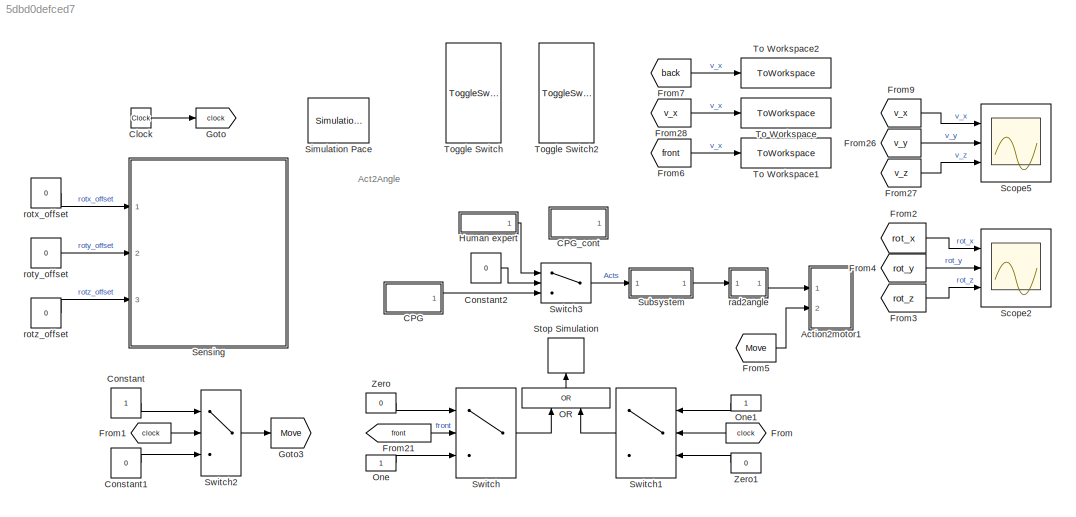
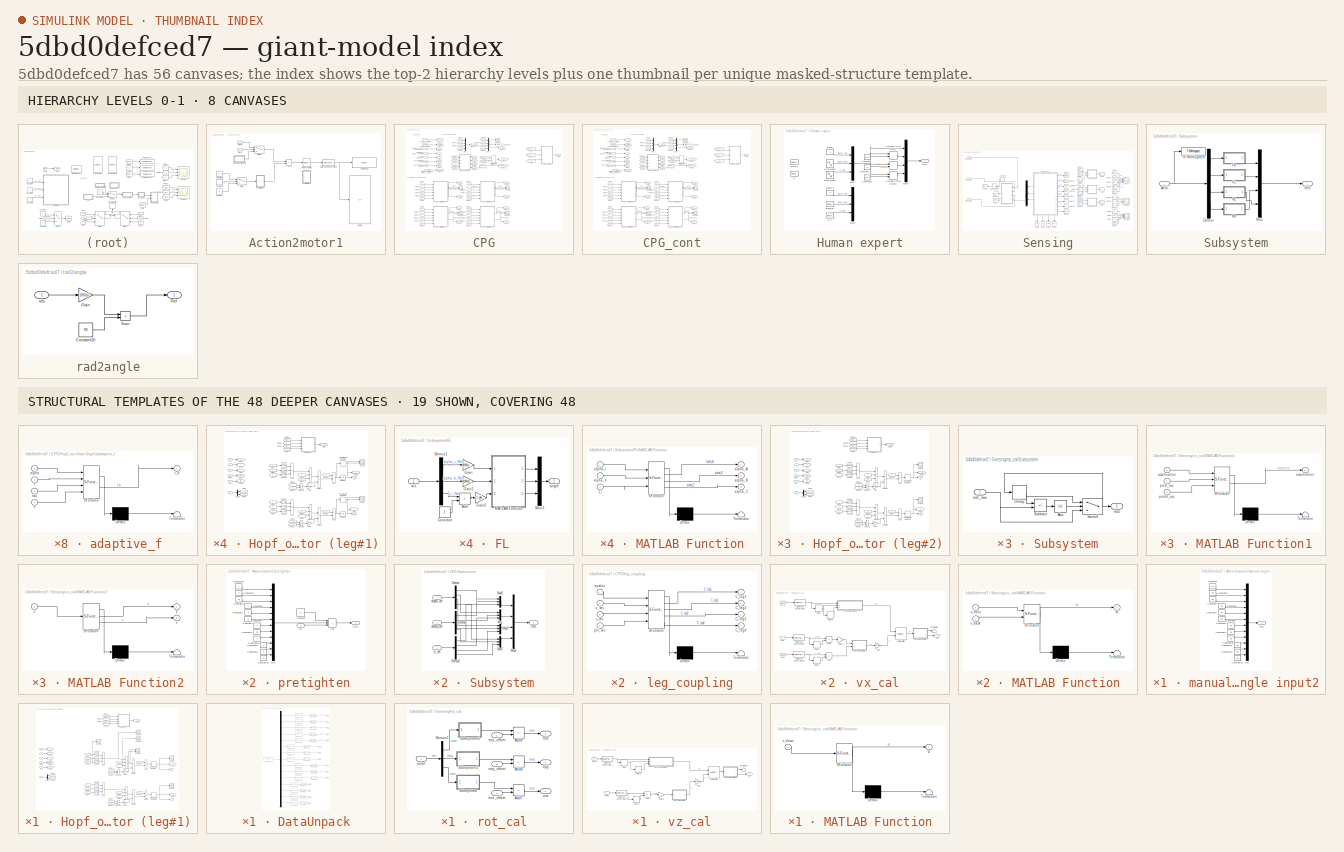
[diagram: thumbnail index - top-2 hierarchy levels (8 canvases) + 19 structural-template representatives of the remaining 48 canvases]
MODEL slx_5dbd0defced7
KIND model
CONFIG AbsTol = auto
CONFIG EnableMultiTasking = off
CONFIG FixedStep = Ts
CONFIG MaxStep = 0.2
CONFIG MinStep = auto
CONFIG RelTol = 1e-3
CONFIG SampleTimeConstraint = Unconstrained
CONFIG SolverName = ode15s
CONFIG StartTime = 0.0
CONFIG StopTime = Tf
WORKSPACE source: MATLAB code (in-file)
WORKSPACE angle_amp = pi/4  (= 0.785398163397)
WORKSPACE rotateCorrectionCoef = 1.158
WORKSPACE criticalFn = 2
WORKSPACE rotxNormGain = 1/0.1  (= 10)
WORKSPACE rotyNormGain = 1/0.05  (= 20)
WORKSPACE rotzNormGain = 1/0.1  (= 10)
WORKSPACE vxNormGain = 1/0.2  (= 5)
WORKSPACE vyNormGain = 1/0.2  (= 5)
WORKSPACE vzNormGain = 1/0.2  (= 5)
WORKSPACE FnNormGain = 1/15  (= 0.0666666666667)
WORKSPACE rotDone = pi/6  (= 0.523598775598)
WORKSPACE legBendDone = pi/3  (= 1.0471975512)
WORKSPACE robot_width = 0.15
WORKSPACE robot_length = 0.22
WORKSPACE floor_length = 2
WORKSPACE floor_width = 2
WORKSPACE L_disk = 0.02944
WORKSPACE R_w = L_disk/sqrt(3)
WORKSPACE thickness_disk = 0.004
WORKSPACE thigh_length = 0.06
WORKSPACE R_core = 0.005
WORKSPACE length_core = 0.008
WORKSPACE R_spool = 0.021
WORKSPACE spool_height = 0.022+0.015  (= 0.037)
WORKSPACE R_pulley = 1e-3  (= 0.001)
WORKSPACE spool_k = 0
WORKSPACE spool_d = 0
WORKSPACE hole_d = 4e-3  (= 0.004)
WORKSPACE rho_PLA = 1.24e3  (= 1240)
WORKSPACE rho = 1.19e3  (= 1190)
WORKSPACE Pz_stiff = 135000
WORKSPACE Pz_damping = 500
WORKSPACE S_stiff = 0.0239
WORKSPACE S_damping = 7.5e-5  (= 7.5e-05)
WORKSPACE S_low_Bound = -20
WORKSPACE S_up_Bound = 20
WORKSPACE R_foot = 0.015
WORKSPACE stall_T = 11.2/10  (= 1.12)
WORKSPACE t_60_deg = 0.2
WORKSPACE V_nomrmal = 6
WORKSPACE Jr = 0.0001
WORKSPACE coef_static_friction = 0.315
WORKSPACE coef_dynamic_friction = 0.3
WORKSPACE crictic_velocity = 0.3
WORKSPACE contact_suf_stiff = 1000
WORKSPACE contact_suf_damp = 50
WORKSPACE contact_region_width = 2e-3  (= 0.002)
WORKSPACE spoolOpacity = 0
WORKSPACE tendonColor = [0.902 0.902 0.902]
WORKSPACE tendonOpacity = 0.1
WORKSPACE MMainFrame = 198
WORKSPACE MServoMotor = 50.55
WORKSPACE MMotorSupport = 12.1
WORKSPACE MSpool = 9.2
WORKSPACE MComposateLoad = 200
WORKSPACE MBuck = 40
WORKSPACE MPCB_RPi = 141.3
WORKSPACE MLiBattery = 120
WORKSPACE MPowerBank = 66.5
WORKSPACE isLoadVisible = 0.1
WORKSPACE MThigh = 26.7963
WORKSPACE MCore = 0.747699
WORKSPACE MDisk = 1.78642
WORKSPACE MFoot = 16.8232
BLOCK [SubSystem] Action2motor1
  Ports = [2]
  RequestExecContextInheritance = off
BLOCK [Sum] Action2motor1/Add
  IconShape = rectangular
  Inputs = +-
  Ports = [2, 1]
BLOCK [Constant] Action2motor1/Constant
  Value = 0
BLOCK [Constant] Action2motor1/Constant1
BLOCK [Constant] Action2motor1/Constant2
  Value = 15
BLOCK [DataTypeConversion] Action2motor1/Data Type Conversion2
  OutDataTypeStr = uint8
  RndMeth = Floor
  SaturateOnIntegerOverflow = off
BLOCK [Display] Action2motor1/Display
  Decimation = 1
  Ports = [1]
BLOCK [Inport] Action2motor1/Move
  Port = 2
BLOCK [RateTransition] Action2motor1/Rate Transition
  OutPortSampleTime = Ts
BLOCK [Switch] Action2motor1/Switch
  Criteria = u2 > Threshold
  InputSameDT = off
  SaturateOnIntegerOverflow = off
BLOCK [Switch] Action2motor1/Switch1
  Criteria = u2 > Threshold
  InputSameDT = off
  SaturateOnIntegerOverflow = off
BLOCK [Reference] Action2motor1/TCP//IP Send  REF=instrumentlib/TCP//IP Send
  Ports = [1]
  Priority = 1
  SourceBlock = instrumentlib/TCP//IP Send
  SourceProductBaseCode = IC
  SourceType = instrument.system.TCPIPSend
BLOCK [Inport] Action2motor1/actions
BLOCK [SubSystem] Action2motor1/manual angle input2
  Ports = [0, 1]
  RequestExecContextInheritance = off
BLOCK [Constant] Action2motor1/manual angle input2/Constant
  SampleTime = -1
  Value = 90
BLOCK [Constant] Action2motor1/manual angle input2/Constant10
  SampleTime = -1
  Value = 90
BLOCK [Constant] Action2motor1/manual angle input2/Constant11
  SampleTime = -1
  Value = 90
BLOCK [Constant] Action2motor1/manual angle input2/Constant12
  SampleTime = -1
  Value = 90
BLOCK [Constant] Action2motor1/manual angle input2/Constant13
  SampleTime = -1
  Value = 90
BLOCK [Constant] Action2motor1/manual angle input2/Constant3
  SampleTime = -1
  Value = 90
BLOCK [Constant] Action2motor1/manual angle input2/Constant4
  SampleTime = -1
  Value = 90
BLOCK [Constant] Action2motor1/manual angle input2/Constant5
  SampleTime = -1
  Value = 90
BLOCK [Constant] Action2motor1/manual angle input2/Constant6
  SampleTime = -1
  Value = 90
BLOCK [Constant] Action2motor1/manual angle input2/Constant7
  SampleTime = -1
  Value = 90
BLOCK [Constant] Action2motor1/manual angle input2/Constant8
  SampleTime = -1
  Value = 90
BLOCK [Constant] Action2motor1/manual angle input2/Constant9
  SampleTime = -1
  Value = 90
BLOCK [Mux] Action2motor1/manual angle input2/Mux
  DisplayOption = bar
  Inputs = 12
  Ports = [12, 1]
BLOCK [Outport] Action2motor1/manual angle input2/Out1
BLOCK [SubSystem] Action2motor1/pretighten
  Ports = [1, 1]
  RequestExecContextInheritance = off
BLOCK [Sum] Action2motor1/pretighten/Add
  IconShape = rectangular
  Inputs = +++
  Ports = [3, 1]
BLOCK [Constant] Action2motor1/pretighten/Constant
  Value = 0
BLOCK [Constant] Action2motor1/pretighten/Constant10
  SampleTime = -1
  Value = 9
BLOCK [Constant] Action2motor1/pretighten/Constant11
  SampleTime = -1
  Value = 4
BLOCK [Constant] Action2motor1/pretighten/Constant12
  SampleTime = -1
  Value = 0
BLOCK [Constant] Action2motor1/pretighten/Constant13
  SampleTime = -1
  Value = 10
BLOCK [Constant] Action2motor1/pretighten/Constant16
  SampleTime = -1
BLOCK [Constant] Action2motor1/pretighten/Constant17
  SampleTime = -1
  Value = 8
BLOCK [Constant] Action2motor1/pretighten/Constant4
  SampleTime = -1
  Value = 10
BLOCK [Constant] Action2motor1/pretighten/Constant5
  SampleTime = -1
  Value = -7
BLOCK [Constant] Action2motor1/pretighten/Constant6
  SampleTime = -1
  Value = -3
BLOCK [Constant] Action2motor1/pretighten/Constant7
  SampleTime = -1
  Value = 5
BLOCK [Constant] Action2motor1/pretighten/Constant8
  SampleTime = -1
  Value = -2
BLOCK [Constant] Action2motor1/pretighten/Constant9
  SampleTime = -1
  Value = 12
BLOCK [Inport] Action2motor1/pretighten/In1
BLOCK [Mux] Action2motor1/pretighten/Mux
  DisplayOption = bar
  Inputs = 12
  Ports = [12, 1]
BLOCK [Outport] Action2motor1/pretighten/Out1
BLOCK [SubSystem] Action2motor1/pretighten1
  Commented = on
  Ports = [1, 1]
  RequestExecContextInheritance = off
BLOCK [Sum] Action2motor1/pretighten1/Add
  IconShape = rectangular
  Inputs = +++
  Ports = [3, 1]
BLOCK [Constant] Action2motor1/pretighten1/Constant
  Value = 0
BLOCK [Constant] Action2motor1/pretighten1/Constant10
  SampleTime = -1
  Value = 5
BLOCK [Constant] Action2motor1/pretighten1/Constant11
  SampleTime = -1
  Value = 0
BLOCK [Constant] Action2motor1/pretighten1/Constant12
  SampleTime = -1
  Value = 0
BLOCK [Constant] Action2motor1/pretighten1/Constant13
  SampleTime = -1
  Value = 3
BLOCK [Constant] Action2motor1/pretighten1/Constant16
  SampleTime = -1
  Value = 0
BLOCK [Constant] Action2motor1/pretighten1/Constant17
  SampleTime = -1
  Value = 3
BLOCK [Constant] Action2motor1/pretighten1/Constant4
  SampleTime = -1
  Value = 10
BLOCK [Constant] Action2motor1/pretighten1/Constant5
  SampleTime = -1
  Value = 5
BLOCK [Constant] Action2motor1/pretighten1/Constant6
  SampleTime = -1
  Value = -2
BLOCK [Constant] Action2motor1/pretighten1/Constant7
  SampleTime = -1
  Value = 4
BLOCK [Constant] Action2motor1/pretighten1/Constant8
  SampleTime = -1
  Value = 0
BLOCK [Constant] Action2motor1/pretighten1/Constant9
  SampleTime = -1
  Value = 5
BLOCK [Inport] Action2motor1/pretighten1/In1
BLOCK [Mux] Action2motor1/pretighten1/Mux
  DisplayOption = bar
  Inputs = 12
  Ports = [12, 1]
BLOCK [Outport] Action2motor1/pretighten1/Out1
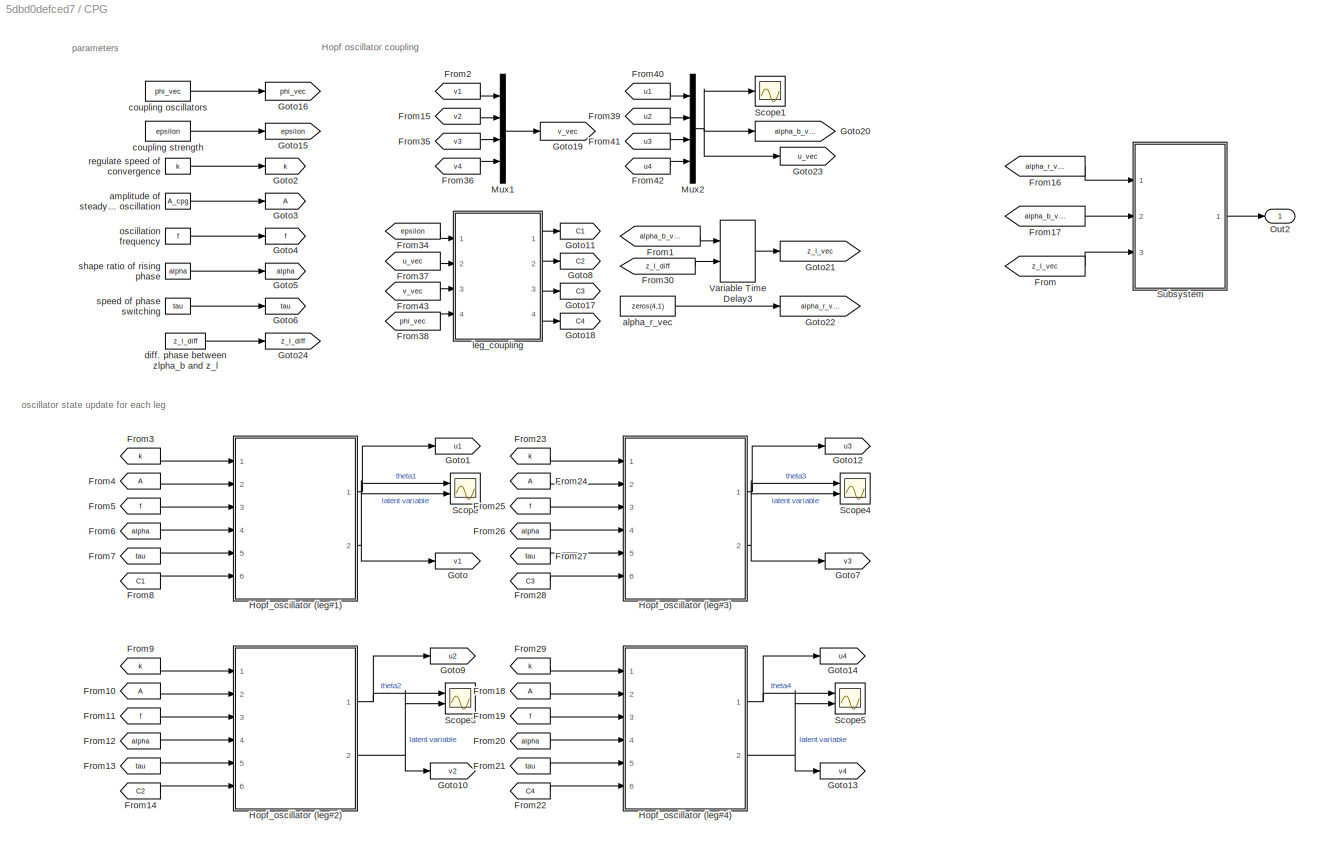
BLOCK [SubSystem] CPG
  Ports = [0, 1]
  RequestExecContextInheritance = off
BLOCK [From] CPG/From
  GotoTag = z_l_vec
BLOCK [From] CPG/From1
  GotoTag = alpha_b_vec
BLOCK [From] CPG/From10
BLOCK [From] CPG/From11
  GotoTag = f
BLOCK [From] CPG/From12
  GotoTag = alpha
BLOCK [From] CPG/From13
  GotoTag = tau
BLOCK [From] CPG/From14
  GotoTag = C2
BLOCK [From] CPG/From15
  GotoTag = v2
BLOCK [From] CPG/From16
  GotoTag = alpha_r_vec
BLOCK [From] CPG/From17
  GotoTag = alpha_b_vec
BLOCK [From] CPG/From18
BLOCK [From] CPG/From19
  GotoTag = f
BLOCK [From] CPG/From2
  GotoTag = v1
BLOCK [From] CPG/From20
  GotoTag = alpha
BLOCK [From] CPG/From21
  GotoTag = tau
BLOCK [From] CPG/From22
  GotoTag = C4
BLOCK [From] CPG/From23
  GotoTag = k
BLOCK [From] CPG/From24
BLOCK [From] CPG/From25
  GotoTag = f
BLOCK [From] CPG/From26
  GotoTag = alpha
BLOCK [From] CPG/From27
  GotoTag = tau
BLOCK [From] CPG/From28
  GotoTag = C3
BLOCK [From] CPG/From29
  GotoTag = k
BLOCK [From] CPG/From3
  GotoTag = k
BLOCK [From] CPG/From30
  GotoTag = z_l_diff
BLOCK [From] CPG/From34
  GotoTag = epsilon
BLOCK [From] CPG/From35
  GotoTag = v3
BLOCK [From] CPG/From36
  GotoTag = v4
BLOCK [From] CPG/From37
  GotoTag = u_vec
BLOCK [From] CPG/From38
  GotoTag = phi_vec
BLOCK [From] CPG/From39
  GotoTag = u2
BLOCK [From] CPG/From4
BLOCK [From] CPG/From40
  GotoTag = u1
BLOCK [From] CPG/From41
  GotoTag = u3
BLOCK [From] CPG/From42
  GotoTag = u4
BLOCK [From] CPG/From43
  GotoTag = v_vec
BLOCK [From] CPG/From5
  GotoTag = f
BLOCK [From] CPG/From6
  GotoTag = alpha
BLOCK [From] CPG/From7
  GotoTag = tau
BLOCK [From] CPG/From8
  GotoTag = C1
BLOCK [From] CPG/From9
  GotoTag = k
BLOCK [Goto] CPG/Goto
  GotoTag = v1
BLOCK [Goto] CPG/Goto1
  GotoTag = u1
BLOCK [Goto] CPG/Goto10
  GotoTag = v2
BLOCK [Goto] CPG/Goto11
  GotoTag = C1
BLOCK [Goto] CPG/Goto12
  GotoTag = u3
BLOCK [Goto] CPG/Goto13
  GotoTag = v4
BLOCK [Goto] CPG/Goto14
  GotoTag = u4
BLOCK [Goto] CPG/Goto15
  GotoTag = epsilon
BLOCK [Goto] CPG/Goto16
  GotoTag = phi_vec
BLOCK [Goto] CPG/Goto17
  GotoTag = C3
BLOCK [Goto] CPG/Goto18
  GotoTag = C4
BLOCK [Goto] CPG/Goto19
  GotoTag = v_vec
BLOCK [Goto] CPG/Goto2
  GotoTag = k
BLOCK [Goto] CPG/Goto20
  GotoTag = alpha_b_vec
BLOCK [Goto] CPG/Goto21
  GotoTag = z_l_vec
BLOCK [Goto] CPG/Goto22
  GotoTag = alpha_r_vec
BLOCK [Goto] CPG/Goto23
  GotoTag = u_vec
BLOCK [Goto] CPG/Goto24
  GotoTag = z_l_diff
BLOCK [Goto] CPG/Goto3
BLOCK [Goto] CPG/Goto4
  GotoTag = f
BLOCK [Goto] CPG/Goto5
  GotoTag = alpha
BLOCK [Goto] CPG/Goto6
  GotoTag = tau
BLOCK [Goto] CPG/Goto7
  GotoTag = v3
BLOCK [Goto] CPG/Goto8
  GotoTag = C2
BLOCK [Goto] CPG/Goto9
  GotoTag = u2
BLOCK [SubSystem] CPG/Hopf_oscillator (leg#1)
  Ports = [6, 2]
  RequestExecContextInheritance = off
BLOCK [Inport] CPG/Hopf_oscillator (leg#1)/A
  Port = 2
BLOCK [Sum] CPG/Hopf_oscillator (leg#1)/Add
  IconShape = rectangular
  Inputs = +--
  Ports = [3, 1]
BLOCK [Sum] CPG/Hopf_oscillator (leg#1)/Add1
  IconShape = rectangular
  Inputs = +--
  Ports = [3, 1]
BLOCK [Sum] CPG/Hopf_oscillator (leg#1)/Add2
  IconShape = rectangular
  Ports = [2, 1]
BLOCK [Sum] CPG/Hopf_oscillator (leg#1)/Add3
  IconShape = rectangular
  Ports = [2, 1]
BLOCK [Inport] CPG/Hopf_oscillator (leg#1)/C
  Port = 6
BLOCK [Demux] CPG/Hopf_oscillator (leg#1)/Demux
  Outputs = 2
  Ports = [1, 2]
BLOCK [DiscreteIntegrator] CPG/Hopf_oscillator (leg#1)/Discrete-Time Integrator
  ICPrevOutput = DiscIntNeverNeededParam
  ICPrevScaledInput = DiscIntNeverNeededParam
  InitialCondition = init_state(1)
  InitialConditionSetting = Auto
  Ports = [1, 1]
  SampleTime = Ts_cal
BLOCK [DiscreteIntegrator] CPG/Hopf_oscillator (leg#1)/Discrete-Time Integrator1
  ICPrevOutput = DiscIntNeverNeededParam
  ICPrevScaledInput = DiscIntNeverNeededParam
  InitialCondition = init_state(2)
  InitialConditionSetting = Auto
  Ports = [1, 1]
  SampleTime = Ts_cal
BLOCK [From] CPG/Hopf_oscillator (leg#1)/From
BLOCK [From] CPG/Hopf_oscillator (leg#1)/From1
  GotoTag = u
BLOCK [From] CPG/Hopf_oscillator (leg#1)/From10
  GotoTag = v
BLOCK [From] CPG/Hopf_oscillator (leg#1)/From11
  GotoTag = f_a
BLOCK [From] CPG/Hopf_oscillator (leg#1)/From12
  GotoTag = u
BLOCK [From] CPG/Hopf_oscillator (leg#1)/From14
  GotoTag = c_u
BLOCK [From] CPG/Hopf_oscillator (leg#1)/From15
  GotoTag = c_v
BLOCK [From] CPG/Hopf_oscillator (leg#1)/From16
  GotoTag = f_a
BLOCK [From] CPG/Hopf_oscillator (leg#1)/From2
  GotoTag = v
BLOCK [From] CPG/Hopf_oscillator (leg#1)/From22
  GotoTag = alpha
BLOCK [From] CPG/Hopf_oscillator (leg#1)/From23
  GotoTag = f
BLOCK [From] CPG/Hopf_oscillator (leg#1)/From24
  GotoTag = tau
BLOCK [From] CPG/Hopf_oscillator (leg#1)/From25
  GotoTag = v
BLOCK [From] CPG/Hopf_oscillator (leg#1)/From3
  GotoTag = k
BLOCK [From] CPG/Hopf_oscillator (leg#1)/From4
  GotoTag = u
BLOCK [From] CPG/Hopf_oscillator (leg#1)/From5
BLOCK [From] CPG/Hopf_oscillator (leg#1)/From6
  GotoTag = u
BLOCK [From] CPG/Hopf_oscillator (leg#1)/From7
  GotoTag = v
BLOCK [From] CPG/Hopf_oscillator (leg#1)/From8
  GotoTag = k
BLOCK [From] CPG/Hopf_oscillator (leg#1)/From9
  GotoTag = v
BLOCK [Gain] CPG/Hopf_oscillator (leg#1)/Gain
  Gain = 2*pi
BLOCK [Gain] CPG/Hopf_oscillator (leg#1)/Gain1
  Gain = 2*pi
BLOCK [Goto] CPG/Hopf_oscillator (leg#1)/Goto
  GotoTag = f
BLOCK [Goto] CPG/Hopf_oscillator (leg#1)/Goto1
BLOCK [Goto] CPG/Hopf_oscillator (leg#1)/Goto2
  GotoTag = k
BLOCK [Goto] CPG/Hopf_oscillator (leg#1)/Goto3
  GotoTag = u
BLOCK [Goto] CPG/Hopf_oscillator (leg#1)/Goto4
  GotoTag = v
BLOCK [Goto] CPG/Hopf_oscillator (leg#1)/Goto5
  GotoTag = c_u
BLOCK [Goto] CPG/Hopf_oscillator (leg#1)/Goto6
  GotoTag = c_v
BLOCK [Goto] CPG/Hopf_oscillator (leg#1)/Goto7
  GotoTag = alpha
BLOCK [Goto] CPG/Hopf_oscillator (leg#1)/Goto8
  GotoTag = tau
BLOCK [Goto] CPG/Hopf_oscillator (leg#1)/Goto9
  GotoTag = f_a
BLOCK [Product] CPG/Hopf_oscillator (leg#1)/Product
  Inputs = 3
  Ports = [3, 1]
BLOCK [Product] CPG/Hopf_oscillator (leg#1)/Product1
  Inputs = 3
  Ports = [3, 1]
BLOCK [Product] CPG/Hopf_oscillator (leg#1)/Product2
  Ports = [2, 1]
BLOCK [Product] CPG/Hopf_oscillator (leg#1)/Product3
  Ports = [2, 1]
BLOCK [Scope] CPG/Hopf_oscillator (leg#1)/Scope
  Floating = off
  NumInputPorts = 1
  Ports = [1]
  ScopeSpecificationString = Simulink.scopes.TimeScopeBlockCfg('CurrentConfiguration', extmgr.ConfigurationSet(extmgr.Configuration('Core','General UI',true),extmgr.Configuration('Core','Source UI',true),extmgr.Configuration('Sources','WiredSimulink',true,'DataLoggingVariableName','ScopeData1'),extmgr.Configuration('Visuals','Time Domain',true,'SerializedDisplays',{struct('MinYLimReal','-1.25551','MaxYLimReal','1.24995','YLab...<+1469ch>
BLOCK [Scope] CPG/Hopf_oscillator (leg#1)/Scope1
  Floating = off
  NumInputPorts = 1
  Ports = [1]
  ScopeSpecificationString = Simulink.scopes.TimeScopeBlockCfg('CurrentConfiguration', extmgr.ConfigurationSet(extmgr.Configuration('Core','General UI',true),extmgr.Configuration('Core','Source UI',true),extmgr.Configuration('Sources','WiredSimulink',true,'DataLoggingVariableName','ScopeData2'),extmgr.Configuration('Visuals','Time Domain',true,'SerializedDisplays',{struct('MinYLimReal','-1.46619','MaxYLimReal','1.32349','YLab...<+1470ch>
BLOCK [Scope] CPG/Hopf_oscillator (leg#1)/Scope3
  Floating = off
  NumInputPorts = 2
  Ports = [2]
  ScopeSpecificationString = Simulink.scopes.TimeScopeBlockCfg('CurrentConfiguration', extmgr.ConfigurationSet(extmgr.Configuration('Core','General UI',true),extmgr.Configuration('Core','Source UI',true),extmgr.Configuration('Sources','WiredSimulink',true,'DataLoggingVariableName','ScopeData10'),extmgr.Configuration('Visuals','Time Domain',true,'SerializedDisplays',{struct('MinYLimReal','-20.65839','MaxYLimReal','39.15871','Y...<+1437ch>
BLOCK [Scope] CPG/Hopf_oscillator (leg#1)/Scope4
  Floating = off
  NumInputPorts = 1
  Ports = [1]
  ScopeSpecificationString = Simulink.scopes.TimeScopeBlockCfg('CurrentConfiguration', extmgr.ConfigurationSet(extmgr.Configuration('Core','General UI',true),extmgr.Configuration('Core','Source UI',true),extmgr.Configuration('Sources','WiredSimulink',true,'DataLoggingVariableName','ScopeData11'),extmgr.Configuration('Visuals','Time Domain',true,'SerializedDisplays',{struct('MinYLimReal','-0.01932','MaxYLimReal','0.02511','YLa...<+1440ch>
BLOCK [Scope] CPG/Hopf_oscillator (leg#1)/Scope5
  Floating = off
  NumInputPorts = 1
  Ports = [1]
  ScopeSpecificationString = Simulink.scopes.TimeScopeBlockCfg('CurrentConfiguration', extmgr.ConfigurationSet(extmgr.Configuration('Core','General UI',true),extmgr.Configuration('Core','Source UI',true),extmgr.Configuration('Sources','WiredSimulink',true,'DataLoggingVariableName','ScopeData12'),extmgr.Configuration('Visuals','Time Domain',true,'SerializedDisplays',{struct('MinYLimReal','-1.25857','MaxYLimReal','1.25747','YLa...<+1409ch>
BLOCK [Scope] CPG/Hopf_oscillator (leg#1)/Scope6
  Floating = off
  NumInputPorts = 1
  Ports = [1]
  ScopeSpecificationString = Simulink.scopes.TimeScopeBlockCfg('CurrentConfiguration', extmgr.ConfigurationSet(extmgr.Configuration('Core','General UI',true),extmgr.Configuration('Core','Source UI',true),extmgr.Configuration('Sources','WiredSimulink',true,'DataLoggingVariableName','ScopeData13'),extmgr.Configuration('Visuals','Time Domain',true,'SerializedDisplays',{struct('MinYLimReal','-1.3154','MaxYLimReal','1.32361','YLab...<+1408ch>
BLOCK [Math] CPG/Hopf_oscillator (leg#1)/Square
  Operator = square
  Ports = [1, 1]
BLOCK [Math] CPG/Hopf_oscillator (leg#1)/Square1
  Operator = square
  Ports = [1, 1]
BLOCK [Math] CPG/Hopf_oscillator (leg#1)/Square2
  Operator = square
  Ports = [1, 1]
BLOCK [Math] CPG/Hopf_oscillator (leg#1)/Square3
  Operator = square
  Ports = [1, 1]
BLOCK [Math] CPG/Hopf_oscillator (leg#1)/Square4
  Operator = square
  Ports = [1, 1]
BLOCK [Math] CPG/Hopf_oscillator (leg#1)/Square5
  Operator = square
  Ports = [1, 1]
BLOCK [Sum] CPG/Hopf_oscillator (leg#1)/Subtract
  IconShape = rectangular
  Inputs = +-
  Ports = [2, 1]
BLOCK [Sum] CPG/Hopf_oscillator (leg#1)/Subtract1
  IconShape = rectangular
  Ports = [2, 1]
BLOCK [SubSystem] CPG/Hopf_oscillator (leg#1)/adaptive_f
  ErrorFcn = Stateflow.Translate.translate
  PermitHierarchicalResolution = ExplicitOnly
  Ports = [4, 1]
  RequestExecContextInheritance = off
  SFBlockType = MATLAB Function
  TreatAsAtomicUnit = on
BLOCK [Demux] CPG/Hopf_oscillator (leg#1)/adaptive_f/ Demux 
  Outputs = 1
  Ports = [1, 1]
BLOCK [S-Function] CPG/Hopf_oscillator (leg#1)/adaptive_f/ SFunction 
  EnableBusSupport = on
  FunctionName = sf_sfun
  PortCounts = [4 2]
  Ports = [4, 2]
  SFcnIsStateOwnerBlock = off
  SFunctionDeploymentMode = off
  Tag = Stateflow S-Function 2
BLOCK [Terminator] CPG/Hopf_oscillator (leg#1)/adaptive_f/ Terminator 
BLOCK [Inport] CPG/Hopf_oscillator (leg#1)/adaptive_f/alpha
BLOCK [Inport] CPG/Hopf_oscillator (leg#1)/adaptive_f/f
  Port = 2
BLOCK [Outport] CPG/Hopf_oscillator (leg#1)/adaptive_f/f_a
BLOCK [Inport] CPG/Hopf_oscillator (leg#1)/adaptive_f/tau
  Port = 3
BLOCK [Inport] CPG/Hopf_oscillator (leg#1)/adaptive_f/v
  Port = 4
BLOCK [Inport] CPG/Hopf_oscillator (leg#1)/alpha
  Port = 4
BLOCK [Inport] CPG/Hopf_oscillator (leg#1)/f
  Port = 3
BLOCK [Inport] CPG/Hopf_oscillator (leg#1)/k
BLOCK [Inport] CPG/Hopf_oscillator (leg#1)/tau
  Port = 5
BLOCK [Outport] CPG/Hopf_oscillator (leg#1)/u
BLOCK [Outport] CPG/Hopf_oscillator (leg#1)/v
  Port = 2
BLOCK [SubSystem] CPG/Hopf_oscillator (leg#2)
  Ports = [6, 2]
  RequestExecContextInheritance = off
BLOCK [Inport] CPG/Hopf_oscillator (leg#2)/A
  Port = 2
BLOCK [Sum] CPG/Hopf_oscillator (leg#2)/Add
  IconShape = rectangular
  Inputs = +--
  Ports = [3, 1]
BLOCK [Sum] CPG/Hopf_oscillator (leg#2)/Add1
  IconShape = rectangular
  Inputs = +--
  Ports = [3, 1]
BLOCK [Sum] CPG/Hopf_oscillator (leg#2)/Add2
  IconShape = rectangular
  Ports = [2, 1]
BLOCK [Sum] CPG/Hopf_oscillator (leg#2)/Add3
  IconShape = rectangular
  Ports = [2, 1]
BLOCK [Inport] CPG/Hopf_oscillator (leg#2)/C
  Port = 6
BLOCK [Demux] CPG/Hopf_oscillator (leg#2)/Demux
  Outputs = 2
  Ports = [1, 2]
BLOCK [DiscreteIntegrator] CPG/Hopf_oscillator (leg#2)/Discrete-Time Integrator
  ICPrevOutput = DiscIntNeverNeededParam
  ICPrevScaledInput = DiscIntNeverNeededParam
  InitialCondition = init_state(3)
  InitialConditionSetting = Auto
  Ports = [1, 1]
  SampleTime = Ts_cal
BLOCK [DiscreteIntegrator] CPG/Hopf_oscillator (leg#2)/Discrete-Time Integrator1
  ICPrevOutput = DiscIntNeverNeededParam
  ICPrevScaledInput = DiscIntNeverNeededParam
  InitialCondition = init_state(4)
  InitialConditionSetting = Auto
  Ports = [1, 1]
  SampleTime = Ts_cal
BLOCK [From] CPG/Hopf_oscillator (leg#2)/From
BLOCK [From] CPG/Hopf_oscillator (leg#2)/From1
  GotoTag = u
BLOCK [From] CPG/Hopf_oscillator (leg#2)/From10
  GotoTag = v
BLOCK [From] CPG/Hopf_oscillator (leg#2)/From11
  GotoTag = f_a
BLOCK [From] CPG/Hopf_oscillator (leg#2)/From12
  GotoTag = u
BLOCK [From] CPG/Hopf_oscillator (leg#2)/From14
  GotoTag = c_u
BLOCK [From] CPG/Hopf_oscillator (leg#2)/From15
  GotoTag = c_v
BLOCK [From] CPG/Hopf_oscillator (leg#2)/From16
  GotoTag = f_a
BLOCK [From] CPG/Hopf_oscillator (leg#2)/From2
  GotoTag = v
BLOCK [From] CPG/Hopf_oscillator (leg#2)/From22
  GotoTag = alpha
BLOCK [From] CPG/Hopf_oscillator (leg#2)/From23
  GotoTag = f
BLOCK [From] CPG/Hopf_oscillator (leg#2)/From24
  GotoTag = tau
BLOCK [From] CPG/Hopf_oscillator (leg#2)/From25
  GotoTag = v
BLOCK [From] CPG/Hopf_oscillator (leg#2)/From3
  GotoTag = k
BLOCK [From] CPG/Hopf_oscillator (leg#2)/From4
  GotoTag = u
BLOCK [From] CPG/Hopf_oscillator (leg#2)/From5
BLOCK [From] CPG/Hopf_oscillator (leg#2)/From6
  GotoTag = u
BLOCK [From] CPG/Hopf_oscillator (leg#2)/From7
  GotoTag = v
BLOCK [From] CPG/Hopf_oscillator (leg#2)/From8
  GotoTag = k
BLOCK [From] CPG/Hopf_oscillator (leg#2)/From9
  GotoTag = v
BLOCK [Gain] CPG/Hopf_oscillator (leg#2)/Gain
  Gain = 2*pi
BLOCK [Gain] CPG/Hopf_oscillator (leg#2)/Gain1
  Gain = 2*pi
BLOCK [Goto] CPG/Hopf_oscillator (leg#2)/Goto
  GotoTag = f
BLOCK [Goto] CPG/Hopf_oscillator (leg#2)/Goto1
BLOCK [Goto] CPG/Hopf_oscillator (leg#2)/Goto2
  GotoTag = k
BLOCK [Goto] CPG/Hopf_oscillator (leg#2)/Goto3
  GotoTag = u
BLOCK [Goto] CPG/Hopf_oscillator (leg#2)/Goto4
  GotoTag = v
BLOCK [Goto] CPG/Hopf_oscillator (leg#2)/Goto5
  GotoTag = c_u
BLOCK [Goto] CPG/Hopf_oscillator (leg#2)/Goto6
  GotoTag = c_v
BLOCK [Goto] CPG/Hopf_oscillator (leg#2)/Goto7
  GotoTag = alpha
BLOCK [Goto] CPG/Hopf_oscillator (leg#2)/Goto8
  GotoTag = tau
BLOCK [Goto] CPG/Hopf_oscillator (leg#2)/Goto9
  GotoTag = f_a
BLOCK [Product] CPG/Hopf_oscillator (leg#2)/Product
  Inputs = 3
  Ports = [3, 1]
BLOCK [Product] CPG/Hopf_oscillator (leg#2)/Product1
  Inputs = 3
  Ports = [3, 1]
BLOCK [Product] CPG/Hopf_oscillator (leg#2)/Product2
  Ports = [2, 1]
BLOCK [Product] CPG/Hopf_oscillator (leg#2)/Product3
  Ports = [2, 1]
BLOCK [Scope] CPG/Hopf_oscillator (leg#2)/Scope
  Floating = off
  NumInputPorts = 1
  Ports = [1]
  ScopeSpecificationString = Simulink.scopes.TimeScopeBlockCfg('CurrentConfiguration', extmgr.ConfigurationSet(extmgr.Configuration('Core','General UI',true),extmgr.Configuration('Core','Source UI',true),extmgr.Configuration('Sources','WiredSimulink',true,'DataLoggingVariableName','ScopeData5'),extmgr.Configuration('Visuals','Time Domain',true,'SerializedDisplays',{struct('MinYLimReal','-1.25004','MaxYLimReal','1.25004','YLab...<+1383ch>
BLOCK [Scope] CPG/Hopf_oscillator (leg#2)/Scope1
  Floating = off
  NumInputPorts = 1
  Ports = [1]
  ScopeSpecificationString = Simulink.scopes.TimeScopeBlockCfg('CurrentConfiguration', extmgr.ConfigurationSet(extmgr.Configuration('Core','General UI',true),extmgr.Configuration('Core','Source UI',true),extmgr.Configuration('Sources','WiredSimulink',true,'DataLoggingVariableName','ScopeData6'),extmgr.Configuration('Visuals','Time Domain',true,'SerializedDisplays',{struct('MinYLimReal','-1.31522','MaxYLimReal','1.32353','YLab...<+1396ch>
BLOCK [Math] CPG/Hopf_oscillator (leg#2)/Square
  Operator = square
  Ports = [1, 1]
BLOCK [Math] CPG/Hopf_oscillator (leg#2)/Square1
  Operator = square
  Ports = [1, 1]
BLOCK [Math] CPG/Hopf_oscillator (leg#2)/Square2
  Operator = square
  Ports = [1, 1]
BLOCK [Math] CPG/Hopf_oscillator (leg#2)/Square3
  Operator = square
  Ports = [1, 1]
BLOCK [Math] CPG/Hopf_oscillator (leg#2)/Square4
  Operator = square
  Ports = [1, 1]
BLOCK [Math] CPG/Hopf_oscillator (leg#2)/Square5
  Operator = square
  Ports = [1, 1]
BLOCK [Sum] CPG/Hopf_oscillator (leg#2)/Subtract
  IconShape = rectangular
  Inputs = +-
  Ports = [2, 1]
BLOCK [Sum] CPG/Hopf_oscillator (leg#2)/Subtract1
  IconShape = rectangular
  Ports = [2, 1]
BLOCK [SubSystem] CPG/Hopf_oscillator (leg#2)/adaptive_f
  ErrorFcn = Stateflow.Translate.translate
  PermitHierarchicalResolution = ExplicitOnly
  Ports = [4, 1]
  RequestExecContextInheritance = off
  SFBlockType = MATLAB Function
  TreatAsAtomicUnit = on
BLOCK [Demux] CPG/Hopf_oscillator (leg#2)/adaptive_f/ Demux 
  Outputs = 1
  Ports = [1, 1]
BLOCK [S-Function] CPG/Hopf_oscillator (leg#2)/adaptive_f/ SFunction 
  EnableBusSupport = on
  FunctionName = sf_sfun
  PortCounts = [4 2]
  Ports = [4, 2]
  SFcnIsStateOwnerBlock = off
  SFunctionDeploymentMode = off
  Tag = Stateflow S-Function 3
BLOCK [Terminator] CPG/Hopf_oscillator (leg#2)/adaptive_f/ Terminator 
BLOCK [Inport] CPG/Hopf_oscillator (leg#2)/adaptive_f/alpha
BLOCK [Inport] CPG/Hopf_oscillator (leg#2)/adaptive_f/f
  Port = 2
BLOCK [Outport] CPG/Hopf_oscillator (leg#2)/adaptive_f/f_a
BLOCK [Inport] CPG/Hopf_oscillator (leg#2)/adaptive_f/tau
  Port = 3
BLOCK [Inport] CPG/Hopf_oscillator (leg#2)/adaptive_f/v
  Port = 4
BLOCK [Inport] CPG/Hopf_oscillator (leg#2)/alpha
  Port = 4
BLOCK [Inport] CPG/Hopf_oscillator (leg#2)/f
  Port = 3
BLOCK [Inport] CPG/Hopf_oscillator (leg#2)/k
BLOCK [Inport] CPG/Hopf_oscillator (leg#2)/tau
  Port = 5
BLOCK [Outport] CPG/Hopf_oscillator (leg#2)/u
BLOCK [Outport] CPG/Hopf_oscillator (leg#2)/v
  Port = 2
BLOCK [SubSystem] CPG/Hopf_oscillator (leg#3)
  Ports = [6, 2]
  RequestExecContextInheritance = off
BLOCK [Inport] CPG/Hopf_oscillator (leg#3)/A
  Port = 2
BLOCK [Sum] CPG/Hopf_oscillator (leg#3)/Add
  IconShape = rectangular
  Inputs = +--
  Ports = [3, 1]
BLOCK [Sum] CPG/Hopf_oscillator (leg#3)/Add1
  IconShape = rectangular
  Inputs = +--
  Ports = [3, 1]
BLOCK [Sum] CPG/Hopf_oscillator (leg#3)/Add2
  IconShape = rectangular
  Ports = [2, 1]
BLOCK [Sum] CPG/Hopf_oscillator (leg#3)/Add3
  IconShape = rectangular
  Ports = [2, 1]
BLOCK [Inport] CPG/Hopf_oscillator (leg#3)/C
  Port = 6
BLOCK [Demux] CPG/Hopf_oscillator (leg#3)/Demux
  Outputs = 2
  Ports = [1, 2]
BLOCK [DiscreteIntegrator] CPG/Hopf_oscillator (leg#3)/Discrete-Time Integrator
  ICPrevOutput = DiscIntNeverNeededParam
  ICPrevScaledInput = DiscIntNeverNeededParam
  InitialCondition = init_state(5)
  InitialConditionSetting = Auto
  Ports = [1, 1]
  SampleTime = Ts_cal
BLOCK [DiscreteIntegrator] CPG/Hopf_oscillator (leg#3)/Discrete-Time Integrator1
  ICPrevOutput = DiscIntNeverNeededParam
  ICPrevScaledInput = DiscIntNeverNeededParam
  InitialCondition = init_state(6)
  InitialConditionSetting = Auto
  Ports = [1, 1]
  SampleTime = Ts_cal
BLOCK [From] CPG/Hopf_oscillator (leg#3)/From
BLOCK [From] CPG/Hopf_oscillator (leg#3)/From1
  GotoTag = u
BLOCK [From] CPG/Hopf_oscillator (leg#3)/From10
  GotoTag = v
BLOCK [From] CPG/Hopf_oscillator (leg#3)/From11
  GotoTag = f_a
BLOCK [From] CPG/Hopf_oscillator (leg#3)/From12
  GotoTag = u
BLOCK [From] CPG/Hopf_oscillator (leg#3)/From14
  GotoTag = c_u
BLOCK [From] CPG/Hopf_oscillator (leg#3)/From15
  GotoTag = c_v
BLOCK [From] CPG/Hopf_oscillator (leg#3)/From16
  GotoTag = f_a
BLOCK [From] CPG/Hopf_oscillator (leg#3)/From2
  GotoTag = v
BLOCK [From] CPG/Hopf_oscillator (leg#3)/From22
  GotoTag = alpha
BLOCK [From] CPG/Hopf_oscillator (leg#3)/From23
  GotoTag = f
BLOCK [From] CPG/Hopf_oscillator (leg#3)/From24
  GotoTag = tau
BLOCK [From] CPG/Hopf_oscillator (leg#3)/From25
  GotoTag = v
BLOCK [From] CPG/Hopf_oscillator (leg#3)/From3
  GotoTag = k
BLOCK [From] CPG/Hopf_oscillator (leg#3)/From4
  GotoTag = u
BLOCK [From] CPG/Hopf_oscillator (leg#3)/From5
BLOCK [From] CPG/Hopf_oscillator (leg#3)/From6
  GotoTag = u
BLOCK [From] CPG/Hopf_oscillator (leg#3)/From7
  GotoTag = v
BLOCK [From] CPG/Hopf_oscillator (leg#3)/From8
  GotoTag = k
BLOCK [From] CPG/Hopf_oscillator (leg#3)/From9
  GotoTag = v
BLOCK [Gain] CPG/Hopf_oscillator (leg#3)/Gain
  Gain = 2*pi
BLOCK [Gain] CPG/Hopf_oscillator (leg#3)/Gain1
  Gain = 2*pi
BLOCK [Goto] CPG/Hopf_oscillator (leg#3)/Goto
  GotoTag = f
BLOCK [Goto] CPG/Hopf_oscillator (leg#3)/Goto1
BLOCK [Goto] CPG/Hopf_oscillator (leg#3)/Goto2
  GotoTag = k
BLOCK [Goto] CPG/Hopf_oscillator (leg#3)/Goto3
  GotoTag = u
BLOCK [Goto] CPG/Hopf_oscillator (leg#3)/Goto4
  GotoTag = v
BLOCK [Goto] CPG/Hopf_oscillator (leg#3)/Goto5
  GotoTag = c_u
BLOCK [Goto] CPG/Hopf_oscillator (leg#3)/Goto6
  GotoTag = c_v
BLOCK [Goto] CPG/Hopf_oscillator (leg#3)/Goto7
  GotoTag = alpha
BLOCK [Goto] CPG/Hopf_oscillator (leg#3)/Goto8
  GotoTag = tau
BLOCK [Goto] CPG/Hopf_oscillator (leg#3)/Goto9
  GotoTag = f_a
BLOCK [Product] CPG/Hopf_oscillator (leg#3)/Product
  Inputs = 3
  Ports = [3, 1]
BLOCK [Product] CPG/Hopf_oscillator (leg#3)/Product1
  Inputs = 3
  Ports = [3, 1]
BLOCK [Product] CPG/Hopf_oscillator (leg#3)/Product2
  Ports = [2, 1]
BLOCK [Product] CPG/Hopf_oscillator (leg#3)/Product3
  Ports = [2, 1]
BLOCK [Scope] CPG/Hopf_oscillator (leg#3)/Scope
  Floating = off
  NumInputPorts = 1
  Ports = [1]
  ScopeSpecificationString = Simulink.scopes.TimeScopeBlockCfg('CurrentConfiguration', extmgr.ConfigurationSet(extmgr.Configuration('Core','General UI',true),extmgr.Configuration('Core','Source UI',true),extmgr.Configuration('Sources','WiredSimulink',true,'DataLoggingVariableName','ScopeData3'),extmgr.Configuration('Visuals','Time Domain',true,'SerializedDisplays',{struct('MinYLimReal','-1.25858','MaxYLimReal','1.25747','YLab...<+1420ch>
BLOCK [Scope] CPG/Hopf_oscillator (leg#3)/Scope1
  Floating = off
  NumInputPorts = 1
  Ports = [1]
  ScopeSpecificationString = Simulink.scopes.TimeScopeBlockCfg('CurrentConfiguration', extmgr.ConfigurationSet(extmgr.Configuration('Core','General UI',true),extmgr.Configuration('Core','Source UI',true),extmgr.Configuration('Sources','WiredSimulink',true,'DataLoggingVariableName','ScopeData4'),extmgr.Configuration('Visuals','Time Domain',true,'SerializedDisplays',{struct('MinYLimReal','-1.13417','MaxYLimReal','0.49353','YLab...<+1396ch>
BLOCK [Math] CPG/Hopf_oscillator (leg#3)/Square
  Operator = square
  Ports = [1, 1]
BLOCK [Math] CPG/Hopf_oscillator (leg#3)/Square1
  Operator = square
  Ports = [1, 1]
BLOCK [Math] CPG/Hopf_oscillator (leg#3)/Square2
  Operator = square
  Ports = [1, 1]
BLOCK [Math] CPG/Hopf_oscillator (leg#3)/Square3
  Operator = square
  Ports = [1, 1]
BLOCK [Math] CPG/Hopf_oscillator (leg#3)/Square4
  Operator = square
  Ports = [1, 1]
BLOCK [Math] CPG/Hopf_oscillator (leg#3)/Square5
  Operator = square
  Ports = [1, 1]
BLOCK [Sum] CPG/Hopf_oscillator (leg#3)/Subtract
  IconShape = rectangular
  Inputs = +-
  Ports = [2, 1]
BLOCK [Sum] CPG/Hopf_oscillator (leg#3)/Subtract1
  IconShape = rectangular
  Ports = [2, 1]
BLOCK [SubSystem] CPG/Hopf_oscillator (leg#3)/adaptive_f
  ErrorFcn = Stateflow.Translate.translate
  PermitHierarchicalResolution = ExplicitOnly
  Ports = [4, 1]
  RequestExecContextInheritance = off
  SFBlockType = MATLAB Function
  TreatAsAtomicUnit = on
BLOCK [Demux] CPG/Hopf_oscillator (leg#3)/adaptive_f/ Demux 
  Outputs = 1
  Ports = [1, 1]
BLOCK [S-Function] CPG/Hopf_oscillator (leg#3)/adaptive_f/ SFunction 
  EnableBusSupport = on
  FunctionName = sf_sfun
  PortCounts = [4 2]
  Ports = [4, 2]
  SFcnIsStateOwnerBlock = off
  SFunctionDeploymentMode = off
  Tag = Stateflow S-Function 5
BLOCK [Terminator] CPG/Hopf_oscillator (leg#3)/adaptive_f/ Terminator 
BLOCK [Inport] CPG/Hopf_oscillator (leg#3)/adaptive_f/alpha
BLOCK [Inport] CPG/Hopf_oscillator (leg#3)/adaptive_f/f
  Port = 2
BLOCK [Outport] CPG/Hopf_oscillator (leg#3)/adaptive_f/f_a
BLOCK [Inport] CPG/Hopf_oscillator (leg#3)/adaptive_f/tau
  Port = 3
BLOCK [Inport] CPG/Hopf_oscillator (leg#3)/adaptive_f/v
  Port = 4
BLOCK [Inport] CPG/Hopf_oscillator (leg#3)/alpha
  Port = 4
BLOCK [Inport] CPG/Hopf_oscillator (leg#3)/f
  Port = 3
BLOCK [Inport] CPG/Hopf_oscillator (leg#3)/k
BLOCK [Inport] CPG/Hopf_oscillator (leg#3)/tau
  Port = 5
BLOCK [Outport] CPG/Hopf_oscillator (leg#3)/u
BLOCK [Outport] CPG/Hopf_oscillator (leg#3)/v
  Port = 2
BLOCK [SubSystem] CPG/Hopf_oscillator (leg#4)
  Ports = [6, 2]
  RequestExecContextInheritance = off
BLOCK [Inport] CPG/Hopf_oscillator (leg#4)/A
  Port = 2
BLOCK [Sum] CPG/Hopf_oscillator (leg#4)/Add
  IconShape = rectangular
  Inputs = +--
  Ports = [3, 1]
BLOCK [Sum] CPG/Hopf_oscillator (leg#4)/Add1
  IconShape = rectangular
  Inputs = +--
  Ports = [3, 1]
BLOCK [Sum] CPG/Hopf_oscillator (leg#4)/Add2
  IconShape = rectangular
  Ports = [2, 1]
BLOCK [Sum] CPG/Hopf_oscillator (leg#4)/Add3
  IconShape = rectangular
  Ports = [2, 1]
BLOCK [Inport] CPG/Hopf_oscillator (leg#4)/C
  Port = 6
BLOCK [Demux] CPG/Hopf_oscillator (leg#4)/Demux
  Outputs = 2
  Ports = [1, 2]
BLOCK [DiscreteIntegrator] CPG/Hopf_oscillator (leg#4)/Discrete-Time Integrator
  ICPrevOutput = DiscIntNeverNeededParam
  ICPrevScaledInput = DiscIntNeverNeededParam
  InitialCondition = init_state(7)
  InitialConditionSetting = Auto
  Ports = [1, 1]
  SampleTime = Ts_cal
BLOCK [DiscreteIntegrator] CPG/Hopf_oscillator (leg#4)/Discrete-Time Integrator1
  ICPrevOutput = DiscIntNeverNeededParam
  ICPrevScaledInput = DiscIntNeverNeededParam
  InitialCondition = init_state(8)
  InitialConditionSetting = Auto
  Ports = [1, 1]
  SampleTime = Ts_cal
BLOCK [From] CPG/Hopf_oscillator (leg#4)/From
BLOCK [From] CPG/Hopf_oscillator (leg#4)/From1
  GotoTag = u
BLOCK [From] CPG/Hopf_oscillator (leg#4)/From10
  GotoTag = v
BLOCK [From] CPG/Hopf_oscillator (leg#4)/From11
  GotoTag = f_a
BLOCK [From] CPG/Hopf_oscillator (leg#4)/From12
  GotoTag = u
BLOCK [From] CPG/Hopf_oscillator (leg#4)/From14
  GotoTag = c_u
BLOCK [From] CPG/Hopf_oscillator (leg#4)/From15
  GotoTag = c_v
BLOCK [From] CPG/Hopf_oscillator (leg#4)/From16
  GotoTag = f_a
BLOCK [From] CPG/Hopf_oscillator (leg#4)/From2
  GotoTag = v
BLOCK [From] CPG/Hopf_oscillator (leg#4)/From22
  GotoTag = alpha
BLOCK [From] CPG/Hopf_oscillator (leg#4)/From23
  GotoTag = f
BLOCK [From] CPG/Hopf_oscillator (leg#4)/From24
  GotoTag = tau
BLOCK [From] CPG/Hopf_oscillator (leg#4)/From25
  GotoTag = v
BLOCK [From] CPG/Hopf_oscillator (leg#4)/From3
  GotoTag = k
BLOCK [From] CPG/Hopf_oscillator (leg#4)/From4
  GotoTag = u
BLOCK [From] CPG/Hopf_oscillator (leg#4)/From5
BLOCK [From] CPG/Hopf_oscillator (leg#4)/From6
  GotoTag = u
BLOCK [From] CPG/Hopf_oscillator (leg#4)/From7
  GotoTag = v
BLOCK [From] CPG/Hopf_oscillator (leg#4)/From8
  GotoTag = k
BLOCK [From] CPG/Hopf_oscillator (leg#4)/From9
  GotoTag = v
BLOCK [Gain] CPG/Hopf_oscillator (leg#4)/Gain
  Gain = 2*pi
BLOCK [Gain] CPG/Hopf_oscillator (leg#4)/Gain1
  Gain = 2*pi
BLOCK [Goto] CPG/Hopf_oscillator (leg#4)/Goto
  GotoTag = f
BLOCK [Goto] CPG/Hopf_oscillator (leg#4)/Goto1
BLOCK [Goto] CPG/Hopf_oscillator (leg#4)/Goto2
  GotoTag = k
BLOCK [Goto] CPG/Hopf_oscillator (leg#4)/Goto3
  GotoTag = u
BLOCK [Goto] CPG/Hopf_oscillator (leg#4)/Goto4
  GotoTag = v
BLOCK [Goto] CPG/Hopf_oscillator (leg#4)/Goto5
  GotoTag = c_u
BLOCK [Goto] CPG/Hopf_oscillator (leg#4)/Goto6
  GotoTag = c_v
BLOCK [Goto] CPG/Hopf_oscillator (leg#4)/Goto7
  GotoTag = alpha
BLOCK [Goto] CPG/Hopf_oscillator (leg#4)/Goto8
  GotoTag = tau
BLOCK [Goto] CPG/Hopf_oscillator (leg#4)/Goto9
  GotoTag = f_a
BLOCK [Product] CPG/Hopf_oscillator (leg#4)/Product
  Inputs = 3
  Ports = [3, 1]
BLOCK [Product] CPG/Hopf_oscillator (leg#4)/Product1
  Inputs = 3
  Ports = [3, 1]
BLOCK [Product] CPG/Hopf_oscillator (leg#4)/Product2
  Ports = [2, 1]
BLOCK [Product] CPG/Hopf_oscillator (leg#4)/Product3
  Ports = [2, 1]
BLOCK [Scope] CPG/Hopf_oscillator (leg#4)/Scope
  Floating = off
  NumInputPorts = 1
  Ports = [1]
  ScopeSpecificationString = Simulink.scopes.TimeScopeBlockCfg('CurrentConfiguration', extmgr.ConfigurationSet(extmgr.Configuration('Core','General UI',true),extmgr.Configuration('Core','Source UI',true),extmgr.Configuration('Sources','WiredSimulink',true,'DataLoggingVariableName','ScopeData7'),extmgr.Configuration('Visuals','Time Domain',true,'SerializedDisplays',{struct('MinYLimReal','-1.25855','MaxYLimReal','1.25741','YLab...<+1454ch>
BLOCK [Scope] CPG/Hopf_oscillator (leg#4)/Scope1
  Floating = off
  NumInputPorts = 1
  Ports = [1]
  ScopeSpecificationString = Simulink.scopes.TimeScopeBlockCfg('CurrentConfiguration', extmgr.ConfigurationSet(extmgr.Configuration('Core','General UI',true),extmgr.Configuration('Core','Source UI',true),extmgr.Configuration('Sources','WiredSimulink',true,'DataLoggingVariableName','ScopeData8'),extmgr.Configuration('Visuals','Time Domain',true,'SerializedDisplays',{struct('MinYLimReal','-1.31523','MaxYLimReal','1.32367','YLab...<+1455ch>
BLOCK [Math] CPG/Hopf_oscillator (leg#4)/Square
  Operator = square
  Ports = [1, 1]
BLOCK [Math] CPG/Hopf_oscillator (leg#4)/Square1
  Operator = square
  Ports = [1, 1]
BLOCK [Math] CPG/Hopf_oscillator (leg#4)/Square2
  Operator = square
  Ports = [1, 1]
BLOCK [Math] CPG/Hopf_oscillator (leg#4)/Square3
  Operator = square
  Ports = [1, 1]
BLOCK [Math] CPG/Hopf_oscillator (leg#4)/Square4
  Operator = square
  Ports = [1, 1]
BLOCK [Math] CPG/Hopf_oscillator (leg#4)/Square5
  Operator = square
  Ports = [1, 1]
BLOCK [Sum] CPG/Hopf_oscillator (leg#4)/Subtract
  IconShape = rectangular
  Inputs = +-
  Ports = [2, 1]
BLOCK [Sum] CPG/Hopf_oscillator (leg#4)/Subtract1
  IconShape = rectangular
  Ports = [2, 1]
BLOCK [SubSystem] CPG/Hopf_oscillator (leg#4)/adaptive_f
  ErrorFcn = Stateflow.Translate.translate
  PermitHierarchicalResolution = ExplicitOnly
  Ports = [4, 1]
  RequestExecContextInheritance = off
  SFBlockType = MATLAB Function
  TreatAsAtomicUnit = on
BLOCK [Demux] CPG/Hopf_oscillator (leg#4)/adaptive_f/ Demux 
  Outputs = 1
  Ports = [1, 1]
BLOCK [S-Function] CPG/Hopf_oscillator (leg#4)/adaptive_f/ SFunction 
  EnableBusSupport = on
  FunctionName = sf_sfun
  PortCounts = [4 2]
  Ports = [4, 2]
  SFcnIsStateOwnerBlock = off
  SFunctionDeploymentMode = off
  Tag = Stateflow S-Function 15
BLOCK [Terminator] CPG/Hopf_oscillator (leg#4)/adaptive_f/ Terminator 
BLOCK [Inport] CPG/Hopf_oscillator (leg#4)/adaptive_f/alpha
BLOCK [Inport] CPG/Hopf_oscillator (leg#4)/adaptive_f/f
  Port = 2
BLOCK [Outport] CPG/Hopf_oscillator (leg#4)/adaptive_f/f_a
BLOCK [Inport] CPG/Hopf_oscillator (leg#4)/adaptive_f/tau
  Port = 3
BLOCK [Inport] CPG/Hopf_oscillator (leg#4)/adaptive_f/v
  Port = 4
BLOCK [Inport] CPG/Hopf_oscillator (leg#4)/alpha
  Port = 4
BLOCK [Inport] CPG/Hopf_oscillator (leg#4)/f
  Port = 3
BLOCK [Inport] CPG/Hopf_oscillator (leg#4)/k
BLOCK [Inport] CPG/Hopf_oscillator (leg#4)/tau
  Port = 5
BLOCK [Outport] CPG/Hopf_oscillator (leg#4)/u
BLOCK [Outport] CPG/Hopf_oscillator (leg#4)/v
  Port = 2
BLOCK [Mux] CPG/Mux1
  DisplayOption = bar
  Ports = [4, 1]
BLOCK [Mux] CPG/Mux2
  DisplayOption = bar
  Ports = [4, 1]
BLOCK [Outport] CPG/Out2
BLOCK [Scope] CPG/Scope
  Floating = off
  NumInputPorts = 2
  Ports = [2]
  ScopeSpecificationString = Simulink.scopes.TimeScopeBlockCfg('CurrentConfiguration', extmgr.ConfigurationSet(extmgr.Configuration('Core','General UI',true),extmgr.Configuration('Core','Source UI',true),extmgr.Configuration('Sources','WiredSimulink',true,'DataLoggingVariableName','ScopeData1'),extmgr.Configuration('Visuals','Time Domain',true,'SerializedDisplays',{struct('MinYLimReal','-1.25624','MaxYLimReal','1.25857','YLab...<+1504ch>
BLOCK [Scope] CPG/Scope1
  Floating = off
  NumInputPorts = 1
  Ports = [1]
  ScopeSpecificationString = Simulink.scopes.TimeScopeBlockCfg('CurrentConfiguration', extmgr.ConfigurationSet(extmgr.Configuration('Core','General UI',true),extmgr.Configuration('Core','Source UI',true),extmgr.Configuration('Sources','WiredSimulink',true,'DataLoggingVariableName','ScopeData2'),extmgr.Configuration('Visuals','Time Domain',true,'SerializedDisplays',{struct('MinYLimReal','-1.25004','MaxYLimReal','1.25004','YLab...<+1522ch>
BLOCK [Scope] CPG/Scope3
  Floating = off
  NumInputPorts = 2
  Ports = [2]
  ScopeSpecificationString = Simulink.scopes.TimeScopeBlockCfg('CurrentConfiguration', extmgr.ConfigurationSet(extmgr.Configuration('Core','General UI',true),extmgr.Configuration('Core','Source UI',true),extmgr.Configuration('Sources','WiredSimulink',true,'DataLoggingVariableName','ScopeData3'),extmgr.Configuration('Visuals','Time Domain',true,'SerializedDisplays',{struct('MinYLimReal','-1.25','MaxYLimReal','1.25','YLabelReal...<+1484ch>
BLOCK [Scope] CPG/Scope4
  Floating = off
  NumInputPorts = 2
  Ports = [2]
  ScopeSpecificationString = Simulink.scopes.TimeScopeBlockCfg('CurrentConfiguration', extmgr.ConfigurationSet(extmgr.Configuration('Core','General UI',true),extmgr.Configuration('Core','Source UI',true),extmgr.Configuration('Sources','WiredSimulink',true,'DataLoggingVariableName','ScopeData4'),extmgr.Configuration('Visuals','Time Domain',true,'SerializedDisplays',{struct('MinYLimReal','-1.25','MaxYLimReal','1.25','YLabelReal...<+1484ch>
BLOCK [Scope] CPG/Scope5
  Floating = off
  NumInputPorts = 2
  Ports = [2]
  ScopeSpecificationString = Simulink.scopes.TimeScopeBlockCfg('CurrentConfiguration', extmgr.ConfigurationSet(extmgr.Configuration('Core','General UI',true),extmgr.Configuration('Core','Source UI',true),extmgr.Configuration('Sources','WiredSimulink',true,'DataLoggingVariableName','ScopeData5'),extmgr.Configuration('Visuals','Time Domain',true,'SerializedDisplays',{struct('MinYLimReal','-1.25','MaxYLimReal','1.25','YLabelReal...<+1483ch>
BLOCK [SubSystem] CPG/Subsystem
  Ports = [3, 1]
  RequestExecContextInheritance = off
BLOCK [Demux] CPG/Subsystem/Demux
  Ports = [1, 4]
BLOCK [Demux] CPG/Subsystem/Demux1
  Ports = [1, 4]
BLOCK [Demux] CPG/Subsystem/Demux2
  Ports = [1, 4]
BLOCK [Mux] CPG/Subsystem/Mux
  DisplayOption = bar
  Inputs = 3
  Ports = [3, 1]
BLOCK [Mux] CPG/Subsystem/Mux5
  DisplayOption = bar
  Ports = [4, 1]
BLOCK [Mux] CPG/Subsystem/Mux6
  DisplayOption = bar
  Inputs = 3
  Ports = [3, 1]
BLOCK [Mux] CPG/Subsystem/Mux7
  DisplayOption = bar
  Inputs = 3
  Ports = [3, 1]
BLOCK [Mux] CPG/Subsystem/Mux8
  DisplayOption = bar
  Inputs = 3
  Ports = [3, 1]
BLOCK [Outport] CPG/Subsystem/Out1
BLOCK [Inport] CPG/Subsystem/alpha_b_vec
  Port = 2
BLOCK [Inport] CPG/Subsystem/alpha_r_vec
BLOCK [Inport] CPG/Subsystem/z_l_vec
  Port = 3
BLOCK [VariableTransportDelay] CPG/Variable Time Delay3
  FixedBuffer = on
  MaximumDelay = 10
  MaximumPoints = 2^20
  Ports = [2, 1]
  ZeroDelay = on
BLOCK [Constant] CPG/alpha_r_vec
  Value = zeros(4,1)
BLOCK [Constant] CPG/amplitude of steady-state oscillation
  Value = A_cpg
BLOCK [Constant] CPG/coupling oscillators
  Value = phi_vec
BLOCK [Constant] CPG/coupling strength
  Value = epsilon
BLOCK [Constant] CPG/diff. phase between zlpha_b and z_l
  Value = z_l_diff
BLOCK [SubSystem] CPG/leg_coupling
  ErrorFcn = Stateflow.Translate.translate
  PermitHierarchicalResolution = ExplicitOnly
  Ports = [4, 4]
  RequestExecContextInheritance = off
  SFBlockType = MATLAB Function
  TreatAsAtomicUnit = on
BLOCK [Demux] CPG/leg_coupling/ Demux 
  Outputs = 1
  Ports = [1, 1]
BLOCK [S-Function] CPG/leg_coupling/ SFunction 
  EnableBusSupport = on
  FunctionName = sf_sfun
  PortCounts = [4 5]
  Ports = [4, 5]
  SFcnIsStateOwnerBlock = off
  SFunctionDeploymentMode = off
  Tag = Stateflow S-Function 16
BLOCK [Terminator] CPG/leg_coupling/ Terminator 
BLOCK [Outport] CPG/leg_coupling/C_leg1
BLOCK [Outport] CPG/leg_coupling/C_leg2
  Port = 2
BLOCK [Outport] CPG/leg_coupling/C_leg3
  Port = 3
BLOCK [Outport] CPG/leg_coupling/C_leg4
  Port = 4
BLOCK [Inport] CPG/leg_coupling/epsilon
BLOCK [Inport] CPG/leg_coupling/phi_vec
  Port = 4
BLOCK [Inport] CPG/leg_coupling/u_vec
  Port = 2
BLOCK [Inport] CPG/leg_coupling/v_vec
  Port = 3
BLOCK [Constant] CPG/oscillation frequency
  Value = f
BLOCK [Constant] CPG/regulate speed of convergence
  Value = k
BLOCK [Constant] CPG/shape ratio of rising phase
  Value = alpha
BLOCK [Constant] CPG/speed of phase switching
  Value = tau
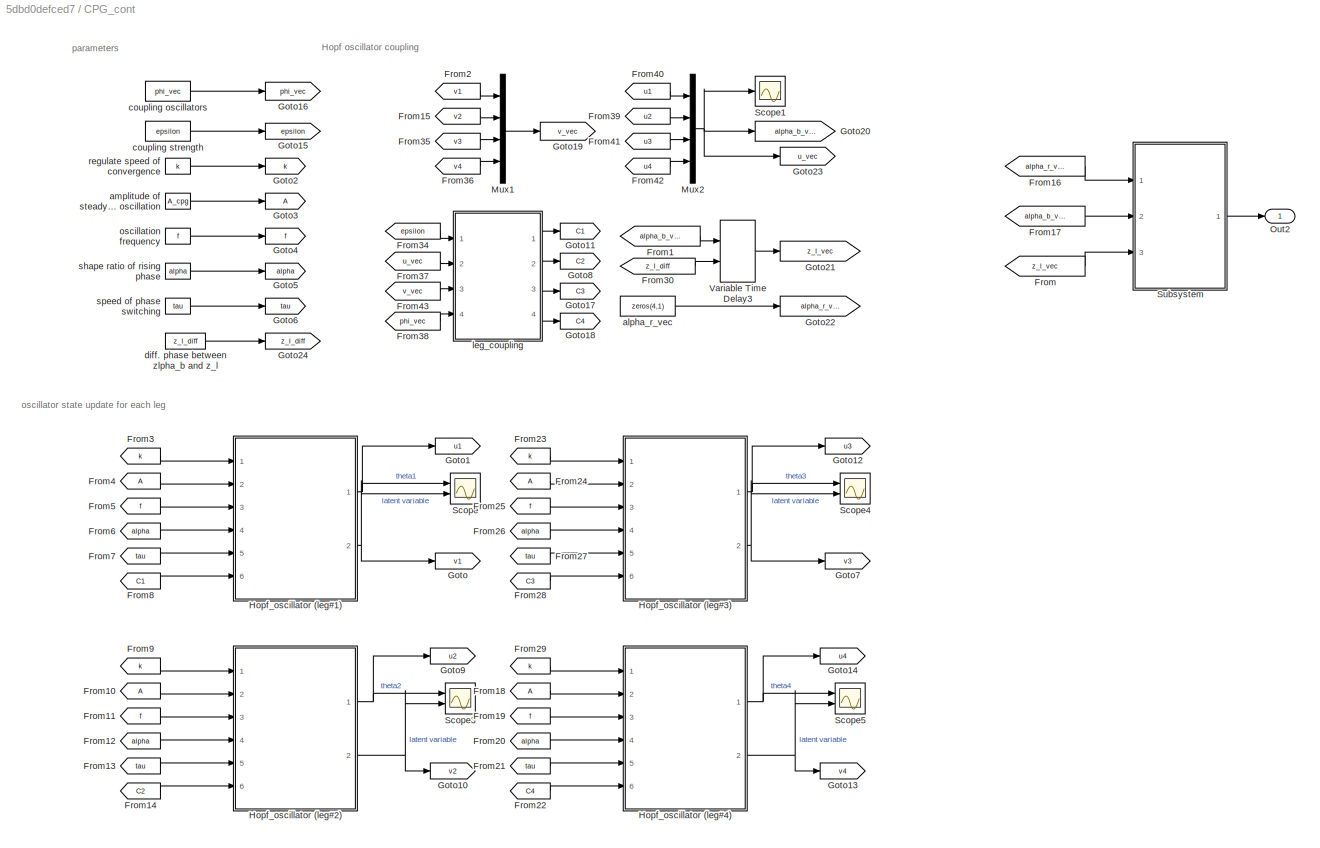
BLOCK [SubSystem] CPG_cont
  Commented = on
  Ports = [0, 1]
  RequestExecContextInheritance = off
BLOCK [From] CPG_cont/From
  GotoTag = z_l_vec
BLOCK [From] CPG_cont/From1
  GotoTag = alpha_b_vec
BLOCK [From] CPG_cont/From10
BLOCK [From] CPG_cont/From11
  GotoTag = f
BLOCK [From] CPG_cont/From12
  GotoTag = alpha
BLOCK [From] CPG_cont/From13
  GotoTag = tau
BLOCK [From] CPG_cont/From14
  GotoTag = C2
BLOCK [From] CPG_cont/From15
  GotoTag = v2
BLOCK [From] CPG_cont/From16
  GotoTag = alpha_r_vec
BLOCK [From] CPG_cont/From17
  GotoTag = alpha_b_vec
BLOCK [From] CPG_cont/From18
BLOCK [From] CPG_cont/From19
  GotoTag = f
BLOCK [From] CPG_cont/From2
  GotoTag = v1
BLOCK [From] CPG_cont/From20
  GotoTag = alpha
BLOCK [From] CPG_cont/From21
  GotoTag = tau
BLOCK [From] CPG_cont/From22
  GotoTag = C4
BLOCK [From] CPG_cont/From23
  GotoTag = k
BLOCK [From] CPG_cont/From24
BLOCK [From] CPG_cont/From25
  GotoTag = f
BLOCK [From] CPG_cont/From26
  GotoTag = alpha
BLOCK [From] CPG_cont/From27
  GotoTag = tau
BLOCK [From] CPG_cont/From28
  GotoTag = C3
BLOCK [From] CPG_cont/From29
  GotoTag = k
BLOCK [From] CPG_cont/From3
  GotoTag = k
BLOCK [From] CPG_cont/From30
  GotoTag = z_l_diff
BLOCK [From] CPG_cont/From34
  GotoTag = epsilon
BLOCK [From] CPG_cont/From35
  GotoTag = v3
BLOCK [From] CPG_cont/From36
  GotoTag = v4
BLOCK [From] CPG_cont/From37
  GotoTag = u_vec
BLOCK [From] CPG_cont/From38
  GotoTag = phi_vec
BLOCK [From] CPG_cont/From39
  GotoTag = u2
BLOCK [From] CPG_cont/From4
BLOCK [From] CPG_cont/From40
  GotoTag = u1
BLOCK [From] CPG_cont/From41
  GotoTag = u3
BLOCK [From] CPG_cont/From42
  GotoTag = u4
BLOCK [From] CPG_cont/From43
  GotoTag = v_vec
BLOCK [From] CPG_cont/From5
  GotoTag = f
BLOCK [From] CPG_cont/From6
  GotoTag = alpha
BLOCK [From] CPG_cont/From7
  GotoTag = tau
BLOCK [From] CPG_cont/From8
  GotoTag = C1
BLOCK [From] CPG_cont/From9
  GotoTag = k
BLOCK [Goto] CPG_cont/Goto
  GotoTag = v1
BLOCK [Goto] CPG_cont/Goto1
  GotoTag = u1
BLOCK [Goto] CPG_cont/Goto10
  GotoTag = v2
BLOCK [Goto] CPG_cont/Goto11
  GotoTag = C1
BLOCK [Goto] CPG_cont/Goto12
  GotoTag = u3
BLOCK [Goto] CPG_cont/Goto13
  GotoTag = v4
BLOCK [Goto] CPG_cont/Goto14
  GotoTag = u4
BLOCK [Goto] CPG_cont/Goto15
  GotoTag = epsilon
BLOCK [Goto] CPG_cont/Goto16
  GotoTag = phi_vec
BLOCK [Goto] CPG_cont/Goto17
  GotoTag = C3
BLOCK [Goto] CPG_cont/Goto18
  GotoTag = C4
BLOCK [Goto] CPG_cont/Goto19
  GotoTag = v_vec
BLOCK [Goto] CPG_cont/Goto2
  GotoTag = k
BLOCK [Goto] CPG_cont/Goto20
  GotoTag = alpha_b_vec
BLOCK [Goto] CPG_cont/Goto21
  GotoTag = z_l_vec
BLOCK [Goto] CPG_cont/Goto22
  GotoTag = alpha_r_vec
BLOCK [Goto] CPG_cont/Goto23
  GotoTag = u_vec
BLOCK [Goto] CPG_cont/Goto24
  GotoTag = z_l_diff
BLOCK [Goto] CPG_cont/Goto3
BLOCK [Goto] CPG_cont/Goto4
  GotoTag = f
BLOCK [Goto] CPG_cont/Goto5
  GotoTag = alpha
BLOCK [Goto] CPG_cont/Goto6
  GotoTag = tau
BLOCK [Goto] CPG_cont/Goto7
  GotoTag = v3
BLOCK [Goto] CPG_cont/Goto8
  GotoTag = C2
BLOCK [Goto] CPG_cont/Goto9
  GotoTag = u2
BLOCK [SubSystem] CPG_cont/Hopf_oscillator (leg#1)
  Ports = [6, 2]
  RequestExecContextInheritance = off
BLOCK [Inport] CPG_cont/Hopf_oscillator (leg#1)/A
  Port = 2
BLOCK [Sum] CPG_cont/Hopf_oscillator (leg#1)/Add
  IconShape = rectangular
  Inputs = +--
  Ports = [3, 1]
BLOCK [Sum] CPG_cont/Hopf_oscillator (leg#1)/Add1
  IconShape = rectangular
  Inputs = +--
  Ports = [3, 1]
BLOCK [Sum] CPG_cont/Hopf_oscillator (leg#1)/Add2
  IconShape = rectangular
  Ports = [2, 1]
BLOCK [Sum] CPG_cont/Hopf_oscillator (leg#1)/Add3
  IconShape = rectangular
  Ports = [2, 1]
BLOCK [Inport] CPG_cont/Hopf_oscillator (leg#1)/C
  Port = 6
BLOCK [Demux] CPG_cont/Hopf_oscillator (leg#1)/Demux
  Outputs = 2
  Ports = [1, 2]
BLOCK [DiscreteIntegrator] CPG_cont/Hopf_oscillator (leg#1)/Discrete-Time Integrator
  ICPrevOutput = DiscIntNeverNeededParam
  ICPrevScaledInput = DiscIntNeverNeededParam
  InitialCondition = init_state(1)
  InitialConditionSetting = Auto
  Ports = [1, 1]
  SampleTime = Ts
BLOCK [DiscreteIntegrator] CPG_cont/Hopf_oscillator (leg#1)/Discrete-Time Integrator1
  ICPrevOutput = DiscIntNeverNeededParam
  ICPrevScaledInput = DiscIntNeverNeededParam
  InitialCondition = init_state(2)
  InitialConditionSetting = Auto
  Ports = [1, 1]
  SampleTime = Ts
BLOCK [From] CPG_cont/Hopf_oscillator (leg#1)/From
BLOCK [From] CPG_cont/Hopf_oscillator (leg#1)/From1
  GotoTag = u
BLOCK [From] CPG_cont/Hopf_oscillator (leg#1)/From10
  GotoTag = v
BLOCK [From] CPG_cont/Hopf_oscillator (leg#1)/From11
  GotoTag = f_a
BLOCK [From] CPG_cont/Hopf_oscillator (leg#1)/From12
  GotoTag = u
BLOCK [From] CPG_cont/Hopf_oscillator (leg#1)/From14
  GotoTag = c_u
BLOCK [From] CPG_cont/Hopf_oscillator (leg#1)/From15
  GotoTag = c_v
BLOCK [From] CPG_cont/Hopf_oscillator (leg#1)/From16
  GotoTag = f_a
BLOCK [From] CPG_cont/Hopf_oscillator (leg#1)/From2
  GotoTag = v
BLOCK [From] CPG_cont/Hopf_oscillator (leg#1)/From22
  GotoTag = alpha
BLOCK [From] CPG_cont/Hopf_oscillator (leg#1)/From23
  GotoTag = f
BLOCK [From] CPG_cont/Hopf_oscillator (leg#1)/From24
  GotoTag = tau
BLOCK [From] CPG_cont/Hopf_oscillator (leg#1)/From25
  GotoTag = v
BLOCK [From] CPG_cont/Hopf_oscillator (leg#1)/From3
  GotoTag = k
BLOCK [From] CPG_cont/Hopf_oscillator (leg#1)/From4
  GotoTag = u
BLOCK [From] CPG_cont/Hopf_oscillator (leg#1)/From5
BLOCK [From] CPG_cont/Hopf_oscillator (leg#1)/From6
  GotoTag = u
BLOCK [From] CPG_cont/Hopf_oscillator (leg#1)/From7
  GotoTag = v
BLOCK [From] CPG_cont/Hopf_oscillator (leg#1)/From8
  GotoTag = k
BLOCK [From] CPG_cont/Hopf_oscillator (leg#1)/From9
  GotoTag = v
BLOCK [Gain] CPG_cont/Hopf_oscillator (leg#1)/Gain
  Gain = 2*pi
BLOCK [Gain] CPG_cont/Hopf_oscillator (leg#1)/Gain1
  Gain = 2*pi
BLOCK [Goto] CPG_cont/Hopf_oscillator (leg#1)/Goto
  GotoTag = f
BLOCK [Goto] CPG_cont/Hopf_oscillator (leg#1)/Goto1
BLOCK [Goto] CPG_cont/Hopf_oscillator (leg#1)/Goto2
  GotoTag = k
BLOCK [Goto] CPG_cont/Hopf_oscillator (leg#1)/Goto3
  GotoTag = u
BLOCK [Goto] CPG_cont/Hopf_oscillator (leg#1)/Goto4
  GotoTag = v
BLOCK [Goto] CPG_cont/Hopf_oscillator (leg#1)/Goto5
  GotoTag = c_u
BLOCK [Goto] CPG_cont/Hopf_oscillator (leg#1)/Goto6
  GotoTag = c_v
BLOCK [Goto] CPG_cont/Hopf_oscillator (leg#1)/Goto7
  GotoTag = alpha
BLOCK [Goto] CPG_cont/Hopf_oscillator (leg#1)/Goto8
  GotoTag = tau
BLOCK [Goto] CPG_cont/Hopf_oscillator (leg#1)/Goto9
  GotoTag = f_a
BLOCK [Integrator] CPG_cont/Hopf_oscillator (leg#1)/Integrator
  InitialCondition = init_state(1)
  Ports = [1, 1]
BLOCK [Integrator] CPG_cont/Hopf_oscillator (leg#1)/Integrator1
  InitialCondition = init_state(2)
  Ports = [1, 1]
BLOCK [Product] CPG_cont/Hopf_oscillator (leg#1)/Product
  Inputs = 3
  Ports = [3, 1]
BLOCK [Product] CPG_cont/Hopf_oscillator (leg#1)/Product1
  Inputs = 3
  Ports = [3, 1]
BLOCK [Product] CPG_cont/Hopf_oscillator (leg#1)/Product2
  Ports = [2, 1]
BLOCK [Product] CPG_cont/Hopf_oscillator (leg#1)/Product3
  Ports = [2, 1]
BLOCK [Scope] CPG_cont/Hopf_oscillator (leg#1)/Scope
  Floating = off
  NumInputPorts = 2
  Ports = [2]
  ScopeSpecificationString = Simulink.scopes.TimeScopeBlockCfg('CurrentConfiguration', extmgr.ConfigurationSet(extmgr.Configuration('Core','General UI',true),extmgr.Configuration('Core','Source UI',true),extmgr.Configuration('Sources','WiredSimulink',true,'DataLoggingVariableName','ScopeData1'),extmgr.Configuration('Visuals','Time Domain',true),extmgr.Configuration('Tools','Plot Navigation',true),extmgr.Configuration('Tools',...<+40ch>
BLOCK [Scope] CPG_cont/Hopf_oscillator (leg#1)/Scope1
  Floating = off
  NumInputPorts = 2
  Ports = [2]
  ScopeSpecificationString = Simulink.scopes.TimeScopeBlockCfg('CurrentConfiguration', extmgr.ConfigurationSet(extmgr.Configuration('Core','General UI',true),extmgr.Configuration('Core','Source UI',true),extmgr.Configuration('Sources','WiredSimulink',true,'DataLoggingVariableName','ScopeData2'),extmgr.Configuration('Visuals','Time Domain',true),extmgr.Configuration('Tools','Plot Navigation',true),extmgr.Configuration('Tools',...<+40ch>
BLOCK [Math] CPG_cont/Hopf_oscillator (leg#1)/Square
  Operator = square
  Ports = [1, 1]
BLOCK [Math] CPG_cont/Hopf_oscillator (leg#1)/Square1
  Operator = square
  Ports = [1, 1]
BLOCK [Math] CPG_cont/Hopf_oscillator (leg#1)/Square2
  Operator = square
  Ports = [1, 1]
BLOCK [Math] CPG_cont/Hopf_oscillator (leg#1)/Square3
  Operator = square
  Ports = [1, 1]
BLOCK [Math] CPG_cont/Hopf_oscillator (leg#1)/Square4
  Operator = square
  Ports = [1, 1]
BLOCK [Math] CPG_cont/Hopf_oscillator (leg#1)/Square5
  Operator = square
  Ports = [1, 1]
BLOCK [Sum] CPG_cont/Hopf_oscillator (leg#1)/Subtract
  IconShape = rectangular
  Inputs = +-
  Ports = [2, 1]
BLOCK [Sum] CPG_cont/Hopf_oscillator (leg#1)/Subtract1
  IconShape = rectangular
  Ports = [2, 1]
BLOCK [SubSystem] CPG_cont/Hopf_oscillator (leg#1)/adaptive_f
  ErrorFcn = Stateflow.Translate.translate
  PermitHierarchicalResolution = ExplicitOnly
  Ports = [4, 1]
  RequestExecContextInheritance = off
  SFBlockType = MATLAB Function
  TreatAsAtomicUnit = on
BLOCK [Demux] CPG_cont/Hopf_oscillator (leg#1)/adaptive_f/ Demux 
  Outputs = 1
  Ports = [1, 1]
BLOCK [S-Function] CPG_cont/Hopf_oscillator (leg#1)/adaptive_f/ SFunction 
  EnableBusSupport = on
  FunctionName = sf_sfun
  PortCounts = [4 2]
  Ports = [4, 2]
  SFcnIsStateOwnerBlock = off
  SFunctionDeploymentMode = off
  Tag = Stateflow S-Function 6
BLOCK [Terminator] CPG_cont/Hopf_oscillator (leg#1)/adaptive_f/ Terminator 
BLOCK [Inport] CPG_cont/Hopf_oscillator (leg#1)/adaptive_f/alpha
BLOCK [Inport] CPG_cont/Hopf_oscillator (leg#1)/adaptive_f/f
  Port = 2
BLOCK [Outport] CPG_cont/Hopf_oscillator (leg#1)/adaptive_f/f_a
BLOCK [Inport] CPG_cont/Hopf_oscillator (leg#1)/adaptive_f/tau
  Port = 3
BLOCK [Inport] CPG_cont/Hopf_oscillator (leg#1)/adaptive_f/v
  Port = 4
BLOCK [Inport] CPG_cont/Hopf_oscillator (leg#1)/alpha
  Port = 4
BLOCK [Inport] CPG_cont/Hopf_oscillator (leg#1)/f
  Port = 3
BLOCK [Inport] CPG_cont/Hopf_oscillator (leg#1)/k
BLOCK [Inport] CPG_cont/Hopf_oscillator (leg#1)/tau
  Port = 5
BLOCK [Outport] CPG_cont/Hopf_oscillator (leg#1)/u
BLOCK [Outport] CPG_cont/Hopf_oscillator (leg#1)/v
  Port = 2
BLOCK [SubSystem] CPG_cont/Hopf_oscillator (leg#2)
  Ports = [6, 2]
  RequestExecContextInheritance = off
BLOCK [Inport] CPG_cont/Hopf_oscillator (leg#2)/A
  Port = 2
BLOCK [Sum] CPG_cont/Hopf_oscillator (leg#2)/Add
  IconShape = rectangular
  Inputs = +--
  Ports = [3, 1]
BLOCK [Sum] CPG_cont/Hopf_oscillator (leg#2)/Add1
  IconShape = rectangular
  Inputs = +--
  Ports = [3, 1]
BLOCK [Sum] CPG_cont/Hopf_oscillator (leg#2)/Add2
  IconShape = rectangular
  Ports = [2, 1]
BLOCK [Sum] CPG_cont/Hopf_oscillator (leg#2)/Add3
  IconShape = rectangular
  Ports = [2, 1]
BLOCK [Inport] CPG_cont/Hopf_oscillator (leg#2)/C
  Port = 6
BLOCK [Demux] CPG_cont/Hopf_oscillator (leg#2)/Demux
  Outputs = 2
  Ports = [1, 2]
BLOCK [DiscreteIntegrator] CPG_cont/Hopf_oscillator (leg#2)/Discrete-Time Integrator
  ICPrevOutput = DiscIntNeverNeededParam
  ICPrevScaledInput = DiscIntNeverNeededParam
  InitialCondition = init_state(3)
  InitialConditionSetting = Auto
  Ports = [1, 1]
  SampleTime = Ts
BLOCK [DiscreteIntegrator] CPG_cont/Hopf_oscillator (leg#2)/Discrete-Time Integrator1
  ICPrevOutput = DiscIntNeverNeededParam
  ICPrevScaledInput = DiscIntNeverNeededParam
  InitialCondition = init_state(4)
  InitialConditionSetting = Auto
  Ports = [1, 1]
  SampleTime = Ts
BLOCK [From] CPG_cont/Hopf_oscillator (leg#2)/From
BLOCK [From] CPG_cont/Hopf_oscillator (leg#2)/From1
  GotoTag = u
BLOCK [From] CPG_cont/Hopf_oscillator (leg#2)/From10
  GotoTag = v
BLOCK [From] CPG_cont/Hopf_oscillator (leg#2)/From11
  GotoTag = f_a
BLOCK [From] CPG_cont/Hopf_oscillator (leg#2)/From12
  GotoTag = u
BLOCK [From] CPG_cont/Hopf_oscillator (leg#2)/From14
  GotoTag = c_u
BLOCK [From] CPG_cont/Hopf_oscillator (leg#2)/From15
  GotoTag = c_v
BLOCK [From] CPG_cont/Hopf_oscillator (leg#2)/From16
  GotoTag = f_a
BLOCK [From] CPG_cont/Hopf_oscillator (leg#2)/From2
  GotoTag = v
BLOCK [From] CPG_cont/Hopf_oscillator (leg#2)/From22
  GotoTag = alpha
BLOCK [From] CPG_cont/Hopf_oscillator (leg#2)/From23
  GotoTag = f
BLOCK [From] CPG_cont/Hopf_oscillator (leg#2)/From24
  GotoTag = tau
BLOCK [From] CPG_cont/Hopf_oscillator (leg#2)/From25
  GotoTag = v
BLOCK [From] CPG_cont/Hopf_oscillator (leg#2)/From3
  GotoTag = k
BLOCK [From] CPG_cont/Hopf_oscillator (leg#2)/From4
  GotoTag = u
BLOCK [From] CPG_cont/Hopf_oscillator (leg#2)/From5
BLOCK [From] CPG_cont/Hopf_oscillator (leg#2)/From6
  GotoTag = u
BLOCK [From] CPG_cont/Hopf_oscillator (leg#2)/From7
  GotoTag = v
BLOCK [From] CPG_cont/Hopf_oscillator (leg#2)/From8
  GotoTag = k
BLOCK [From] CPG_cont/Hopf_oscillator (leg#2)/From9
  GotoTag = v
BLOCK [Gain] CPG_cont/Hopf_oscillator (leg#2)/Gain
  Gain = 2*pi
BLOCK [Gain] CPG_cont/Hopf_oscillator (leg#2)/Gain1
  Gain = 2*pi
BLOCK [Goto] CPG_cont/Hopf_oscillator (leg#2)/Goto
  GotoTag = f
BLOCK [Goto] CPG_cont/Hopf_oscillator (leg#2)/Goto1
BLOCK [Goto] CPG_cont/Hopf_oscillator (leg#2)/Goto2
  GotoTag = k
BLOCK [Goto] CPG_cont/Hopf_oscillator (leg#2)/Goto3
  GotoTag = u
BLOCK [Goto] CPG_cont/Hopf_oscillator (leg#2)/Goto4
  GotoTag = v
BLOCK [Goto] CPG_cont/Hopf_oscillator (leg#2)/Goto5
  GotoTag = c_u
BLOCK [Goto] CPG_cont/Hopf_oscillator (leg#2)/Goto6
  GotoTag = c_v
BLOCK [Goto] CPG_cont/Hopf_oscillator (leg#2)/Goto7
  GotoTag = alpha
BLOCK [Goto] CPG_cont/Hopf_oscillator (leg#2)/Goto8
  GotoTag = tau
BLOCK [Goto] CPG_cont/Hopf_oscillator (leg#2)/Goto9
  GotoTag = f_a
BLOCK [Integrator] CPG_cont/Hopf_oscillator (leg#2)/Integrator
  InitialCondition = init_state(3)
  Ports = [1, 1]
BLOCK [Integrator] CPG_cont/Hopf_oscillator (leg#2)/Integrator1
  InitialCondition = init_state(4)
  Ports = [1, 1]
BLOCK [Product] CPG_cont/Hopf_oscillator (leg#2)/Product
  Inputs = 3
  Ports = [3, 1]
BLOCK [Product] CPG_cont/Hopf_oscillator (leg#2)/Product1
  Inputs = 3
  Ports = [3, 1]
BLOCK [Product] CPG_cont/Hopf_oscillator (leg#2)/Product2
  Ports = [2, 1]
BLOCK [Product] CPG_cont/Hopf_oscillator (leg#2)/Product3
  Ports = [2, 1]
BLOCK [Scope] CPG_cont/Hopf_oscillator (leg#2)/Scope
  Floating = off
  NumInputPorts = 2
  Ports = [2]
  ScopeSpecificationString = Simulink.scopes.TimeScopeBlockCfg('CurrentConfiguration', extmgr.ConfigurationSet(extmgr.Configuration('Core','General UI',true),extmgr.Configuration('Core','Source UI',true),extmgr.Configuration('Sources','WiredSimulink',true,'DataLoggingVariableName','ScopeData5'),extmgr.Configuration('Visuals','Time Domain',true),extmgr.Configuration('Tools','Plot Navigation',true),extmgr.Configuration('Tools',...<+40ch>
BLOCK [Scope] CPG_cont/Hopf_oscillator (leg#2)/Scope1
  Floating = off
  NumInputPorts = 2
  Ports = [2]
  ScopeSpecificationString = Simulink.scopes.TimeScopeBlockCfg('CurrentConfiguration', extmgr.ConfigurationSet(extmgr.Configuration('Core','General UI',true),extmgr.Configuration('Core','Source UI',true),extmgr.Configuration('Sources','WiredSimulink',true,'DataLoggingVariableName','ScopeData6'),extmgr.Configuration('Visuals','Time Domain',true),extmgr.Configuration('Tools','Plot Navigation',true),extmgr.Configuration('Tools',...<+40ch>
BLOCK [Math] CPG_cont/Hopf_oscillator (leg#2)/Square
  Operator = square
  Ports = [1, 1]
BLOCK [Math] CPG_cont/Hopf_oscillator (leg#2)/Square1
  Operator = square
  Ports = [1, 1]
BLOCK [Math] CPG_cont/Hopf_oscillator (leg#2)/Square2
  Operator = square
  Ports = [1, 1]
BLOCK [Math] CPG_cont/Hopf_oscillator (leg#2)/Square3
  Operator = square
  Ports = [1, 1]
BLOCK [Math] CPG_cont/Hopf_oscillator (leg#2)/Square4
  Operator = square
  Ports = [1, 1]
BLOCK [Math] CPG_cont/Hopf_oscillator (leg#2)/Square5
  Operator = square
  Ports = [1, 1]
BLOCK [Sum] CPG_cont/Hopf_oscillator (leg#2)/Subtract
  IconShape = rectangular
  Inputs = +-
  Ports = [2, 1]
BLOCK [Sum] CPG_cont/Hopf_oscillator (leg#2)/Subtract1
  IconShape = rectangular
  Ports = [2, 1]
BLOCK [SubSystem] CPG_cont/Hopf_oscillator (leg#2)/adaptive_f
  ErrorFcn = Stateflow.Translate.translate
  PermitHierarchicalResolution = ExplicitOnly
  Ports = [4, 1]
  RequestExecContextInheritance = off
  SFBlockType = MATLAB Function
  TreatAsAtomicUnit = on
BLOCK [Demux] CPG_cont/Hopf_oscillator (leg#2)/adaptive_f/ Demux 
  Outputs = 1
  Ports = [1, 1]
BLOCK [S-Function] CPG_cont/Hopf_oscillator (leg#2)/adaptive_f/ SFunction 
  EnableBusSupport = on
  FunctionName = sf_sfun
  PortCounts = [4 2]
  Ports = [4, 2]
  SFcnIsStateOwnerBlock = off
  SFunctionDeploymentMode = off
  Tag = Stateflow S-Function 11
BLOCK [Terminator] CPG_cont/Hopf_oscillator (leg#2)/adaptive_f/ Terminator 
BLOCK [Inport] CPG_cont/Hopf_oscillator (leg#2)/adaptive_f/alpha
BLOCK [Inport] CPG_cont/Hopf_oscillator (leg#2)/adaptive_f/f
  Port = 2
BLOCK [Outport] CPG_cont/Hopf_oscillator (leg#2)/adaptive_f/f_a
BLOCK [Inport] CPG_cont/Hopf_oscillator (leg#2)/adaptive_f/tau
  Port = 3
BLOCK [Inport] CPG_cont/Hopf_oscillator (leg#2)/adaptive_f/v
  Port = 4
BLOCK [Inport] CPG_cont/Hopf_oscillator (leg#2)/alpha
  Port = 4
BLOCK [Inport] CPG_cont/Hopf_oscillator (leg#2)/f
  Port = 3
BLOCK [Inport] CPG_cont/Hopf_oscillator (leg#2)/k
BLOCK [Inport] CPG_cont/Hopf_oscillator (leg#2)/tau
  Port = 5
BLOCK [Outport] CPG_cont/Hopf_oscillator (leg#2)/u
BLOCK [Outport] CPG_cont/Hopf_oscillator (leg#2)/v
  Port = 2
BLOCK [SubSystem] CPG_cont/Hopf_oscillator (leg#3)
  Ports = [6, 2]
  RequestExecContextInheritance = off
BLOCK [Inport] CPG_cont/Hopf_oscillator (leg#3)/A
  Port = 2
BLOCK [Sum] CPG_cont/Hopf_oscillator (leg#3)/Add
  IconShape = rectangular
  Inputs = +--
  Ports = [3, 1]
BLOCK [Sum] CPG_cont/Hopf_oscillator (leg#3)/Add1
  IconShape = rectangular
  Inputs = +--
  Ports = [3, 1]
BLOCK [Sum] CPG_cont/Hopf_oscillator (leg#3)/Add2
  IconShape = rectangular
  Ports = [2, 1]
BLOCK [Sum] CPG_cont/Hopf_oscillator (leg#3)/Add3
  IconShape = rectangular
  Ports = [2, 1]
BLOCK [Inport] CPG_cont/Hopf_oscillator (leg#3)/C
  Port = 6
BLOCK [Demux] CPG_cont/Hopf_oscillator (leg#3)/Demux
  Outputs = 2
  Ports = [1, 2]
BLOCK [DiscreteIntegrator] CPG_cont/Hopf_oscillator (leg#3)/Discrete-Time Integrator
  ICPrevOutput = DiscIntNeverNeededParam
  ICPrevScaledInput = DiscIntNeverNeededParam
  InitialCondition = init_state(5)
  InitialConditionSetting = Auto
  Ports = [1, 1]
  SampleTime = Ts
BLOCK [DiscreteIntegrator] CPG_cont/Hopf_oscillator (leg#3)/Discrete-Time Integrator1
  ICPrevOutput = DiscIntNeverNeededParam
  ICPrevScaledInput = DiscIntNeverNeededParam
  InitialCondition = init_state(6)
  InitialConditionSetting = Auto
  Ports = [1, 1]
  SampleTime = Ts
BLOCK [From] CPG_cont/Hopf_oscillator (leg#3)/From
BLOCK [From] CPG_cont/Hopf_oscillator (leg#3)/From1
  GotoTag = u
BLOCK [From] CPG_cont/Hopf_oscillator (leg#3)/From10
  GotoTag = v
BLOCK [From] CPG_cont/Hopf_oscillator (leg#3)/From11
  GotoTag = f_a
BLOCK [From] CPG_cont/Hopf_oscillator (leg#3)/From12
  GotoTag = u
BLOCK [From] CPG_cont/Hopf_oscillator (leg#3)/From14
  GotoTag = c_u
BLOCK [From] CPG_cont/Hopf_oscillator (leg#3)/From15
  GotoTag = c_v
BLOCK [From] CPG_cont/Hopf_oscillator (leg#3)/From16
  GotoTag = f_a
BLOCK [From] CPG_cont/Hopf_oscillator (leg#3)/From2
  GotoTag = v
BLOCK [From] CPG_cont/Hopf_oscillator (leg#3)/From22
  GotoTag = alpha
BLOCK [From] CPG_cont/Hopf_oscillator (leg#3)/From23
  GotoTag = f
BLOCK [From] CPG_cont/Hopf_oscillator (leg#3)/From24
  GotoTag = tau
BLOCK [From] CPG_cont/Hopf_oscillator (leg#3)/From25
  GotoTag = v
BLOCK [From] CPG_cont/Hopf_oscillator (leg#3)/From3
  GotoTag = k
BLOCK [From] CPG_cont/Hopf_oscillator (leg#3)/From4
  GotoTag = u
BLOCK [From] CPG_cont/Hopf_oscillator (leg#3)/From5
BLOCK [From] CPG_cont/Hopf_oscillator (leg#3)/From6
  GotoTag = u
BLOCK [From] CPG_cont/Hopf_oscillator (leg#3)/From7
  GotoTag = v
BLOCK [From] CPG_cont/Hopf_oscillator (leg#3)/From8
  GotoTag = k
BLOCK [From] CPG_cont/Hopf_oscillator (leg#3)/From9
  GotoTag = v
BLOCK [Gain] CPG_cont/Hopf_oscillator (leg#3)/Gain
  Gain = 2*pi
BLOCK [Gain] CPG_cont/Hopf_oscillator (leg#3)/Gain1
  Gain = 2*pi
BLOCK [Goto] CPG_cont/Hopf_oscillator (leg#3)/Goto
  GotoTag = f
BLOCK [Goto] CPG_cont/Hopf_oscillator (leg#3)/Goto1
BLOCK [Goto] CPG_cont/Hopf_oscillator (leg#3)/Goto2
  GotoTag = k
BLOCK [Goto] CPG_cont/Hopf_oscillator (leg#3)/Goto3
  GotoTag = u
BLOCK [Goto] CPG_cont/Hopf_oscillator (leg#3)/Goto4
  GotoTag = v
BLOCK [Goto] CPG_cont/Hopf_oscillator (leg#3)/Goto5
  GotoTag = c_u
BLOCK [Goto] CPG_cont/Hopf_oscillator (leg#3)/Goto6
  GotoTag = c_v
BLOCK [Goto] CPG_cont/Hopf_oscillator (leg#3)/Goto7
  GotoTag = alpha
BLOCK [Goto] CPG_cont/Hopf_oscillator (leg#3)/Goto8
  GotoTag = tau
BLOCK [Goto] CPG_cont/Hopf_oscillator (leg#3)/Goto9
  GotoTag = f_a
BLOCK [Integrator] CPG_cont/Hopf_oscillator (leg#3)/Integrator
  InitialCondition = init_state(5)
  Ports = [1, 1]
BLOCK [Integrator] CPG_cont/Hopf_oscillator (leg#3)/Integrator1
  InitialCondition = init_state(6)
  Ports = [1, 1]
BLOCK [Product] CPG_cont/Hopf_oscillator (leg#3)/Product
  Inputs = 3
  Ports = [3, 1]
BLOCK [Product] CPG_cont/Hopf_oscillator (leg#3)/Product1
  Inputs = 3
  Ports = [3, 1]
BLOCK [Product] CPG_cont/Hopf_oscillator (leg#3)/Product2
  Ports = [2, 1]
BLOCK [Product] CPG_cont/Hopf_oscillator (leg#3)/Product3
  Ports = [2, 1]
BLOCK [Scope] CPG_cont/Hopf_oscillator (leg#3)/Scope
  Floating = off
  NumInputPorts = 2
  Ports = [2]
  ScopeSpecificationString = Simulink.scopes.TimeScopeBlockCfg('CurrentConfiguration', extmgr.ConfigurationSet(extmgr.Configuration('Core','General UI',true),extmgr.Configuration('Core','Source UI',true),extmgr.Configuration('Sources','WiredSimulink',true,'DataLoggingVariableName','ScopeData3'),extmgr.Configuration('Visuals','Time Domain',true),extmgr.Configuration('Tools','Plot Navigation',true),extmgr.Configuration('Tools',...<+40ch>
BLOCK [Scope] CPG_cont/Hopf_oscillator (leg#3)/Scope1
  Floating = off
  NumInputPorts = 2
  Ports = [2]
  ScopeSpecificationString = Simulink.scopes.TimeScopeBlockCfg('CurrentConfiguration', extmgr.ConfigurationSet(extmgr.Configuration('Core','General UI',true),extmgr.Configuration('Core','Source UI',true),extmgr.Configuration('Sources','WiredSimulink',true,'DataLoggingVariableName','ScopeData4'),extmgr.Configuration('Visuals','Time Domain',true),extmgr.Configuration('Tools','Plot Navigation',true),extmgr.Configuration('Tools',...<+40ch>
BLOCK [Math] CPG_cont/Hopf_oscillator (leg#3)/Square
  Operator = square
  Ports = [1, 1]
BLOCK [Math] CPG_cont/Hopf_oscillator (leg#3)/Square1
  Operator = square
  Ports = [1, 1]
BLOCK [Math] CPG_cont/Hopf_oscillator (leg#3)/Square2
  Operator = square
  Ports = [1, 1]
BLOCK [Math] CPG_cont/Hopf_oscillator (leg#3)/Square3
  Operator = square
  Ports = [1, 1]
BLOCK [Math] CPG_cont/Hopf_oscillator (leg#3)/Square4
  Operator = square
  Ports = [1, 1]
BLOCK [Math] CPG_cont/Hopf_oscillator (leg#3)/Square5
  Operator = square
  Ports = [1, 1]
BLOCK [Sum] CPG_cont/Hopf_oscillator (leg#3)/Subtract
  IconShape = rectangular
  Inputs = +-
  Ports = [2, 1]
BLOCK [Sum] CPG_cont/Hopf_oscillator (leg#3)/Subtract1
  IconShape = rectangular
  Ports = [2, 1]
BLOCK [SubSystem] CPG_cont/Hopf_oscillator (leg#3)/adaptive_f
  ErrorFcn = Stateflow.Translate.translate
  PermitHierarchicalResolution = ExplicitOnly
  Ports = [4, 1]
  RequestExecContextInheritance = off
  SFBlockType = MATLAB Function
  TreatAsAtomicUnit = on
BLOCK [Demux] CPG_cont/Hopf_oscillator (leg#3)/adaptive_f/ Demux 
  Outputs = 1
  Ports = [1, 1]
BLOCK [S-Function] CPG_cont/Hopf_oscillator (leg#3)/adaptive_f/ SFunction 
  EnableBusSupport = on
  FunctionName = sf_sfun
  PortCounts = [4 2]
  Ports = [4, 2]
  SFcnIsStateOwnerBlock = off
  SFunctionDeploymentMode = off
  Tag = Stateflow S-Function 12
BLOCK [Terminator] CPG_cont/Hopf_oscillator (leg#3)/adaptive_f/ Terminator 
BLOCK [Inport] CPG_cont/Hopf_oscillator (leg#3)/adaptive_f/alpha
BLOCK [Inport] CPG_cont/Hopf_oscillator (leg#3)/adaptive_f/f
  Port = 2
BLOCK [Outport] CPG_cont/Hopf_oscillator (leg#3)/adaptive_f/f_a
BLOCK [Inport] CPG_cont/Hopf_oscillator (leg#3)/adaptive_f/tau
  Port = 3
BLOCK [Inport] CPG_cont/Hopf_oscillator (leg#3)/adaptive_f/v
  Port = 4
BLOCK [Inport] CPG_cont/Hopf_oscillator (leg#3)/alpha
  Port = 4
BLOCK [Inport] CPG_cont/Hopf_oscillator (leg#3)/f
  Port = 3
BLOCK [Inport] CPG_cont/Hopf_oscillator (leg#3)/k
BLOCK [Inport] CPG_cont/Hopf_oscillator (leg#3)/tau
  Port = 5
BLOCK [Outport] CPG_cont/Hopf_oscillator (leg#3)/u
BLOCK [Outport] CPG_cont/Hopf_oscillator (leg#3)/v
  Port = 2
BLOCK [SubSystem] CPG_cont/Hopf_oscillator (leg#4)
  Ports = [6, 2]
  RequestExecContextInheritance = off
BLOCK [Inport] CPG_cont/Hopf_oscillator (leg#4)/A
  Port = 2
BLOCK [Sum] CPG_cont/Hopf_oscillator (leg#4)/Add
  IconShape = rectangular
  Inputs = +--
  Ports = [3, 1]
BLOCK [Sum] CPG_cont/Hopf_oscillator (leg#4)/Add1
  IconShape = rectangular
  Inputs = +--
  Ports = [3, 1]
BLOCK [Sum] CPG_cont/Hopf_oscillator (leg#4)/Add2
  IconShape = rectangular
  Ports = [2, 1]
BLOCK [Sum] CPG_cont/Hopf_oscillator (leg#4)/Add3
  IconShape = rectangular
  Ports = [2, 1]
BLOCK [Inport] CPG_cont/Hopf_oscillator (leg#4)/C
  Port = 6
BLOCK [Demux] CPG_cont/Hopf_oscillator (leg#4)/Demux
  Outputs = 2
  Ports = [1, 2]
BLOCK [DiscreteIntegrator] CPG_cont/Hopf_oscillator (leg#4)/Discrete-Time Integrator
  ICPrevOutput = DiscIntNeverNeededParam
  ICPrevScaledInput = DiscIntNeverNeededParam
  InitialCondition = init_state(7)
  InitialConditionSetting = Auto
  Ports = [1, 1]
  SampleTime = Ts
BLOCK [DiscreteIntegrator] CPG_cont/Hopf_oscillator (leg#4)/Discrete-Time Integrator1
  ICPrevOutput = DiscIntNeverNeededParam
  ICPrevScaledInput = DiscIntNeverNeededParam
  InitialCondition = init_state(8)
  InitialConditionSetting = Auto
  Ports = [1, 1]
  SampleTime = Ts
BLOCK [From] CPG_cont/Hopf_oscillator (leg#4)/From
BLOCK [From] CPG_cont/Hopf_oscillator (leg#4)/From1
  GotoTag = u
BLOCK [From] CPG_cont/Hopf_oscillator (leg#4)/From10
  GotoTag = v
BLOCK [From] CPG_cont/Hopf_oscillator (leg#4)/From11
  GotoTag = f_a
BLOCK [From] CPG_cont/Hopf_oscillator (leg#4)/From12
  GotoTag = u
BLOCK [From] CPG_cont/Hopf_oscillator (leg#4)/From14
  GotoTag = c_u
BLOCK [From] CPG_cont/Hopf_oscillator (leg#4)/From15
  GotoTag = c_v
BLOCK [From] CPG_cont/Hopf_oscillator (leg#4)/From16
  GotoTag = f_a
BLOCK [From] CPG_cont/Hopf_oscillator (leg#4)/From2
  GotoTag = v
BLOCK [From] CPG_cont/Hopf_oscillator (leg#4)/From22
  GotoTag = alpha
BLOCK [From] CPG_cont/Hopf_oscillator (leg#4)/From23
  GotoTag = f
BLOCK [From] CPG_cont/Hopf_oscillator (leg#4)/From24
  GotoTag = tau
BLOCK [From] CPG_cont/Hopf_oscillator (leg#4)/From25
  GotoTag = v
BLOCK [From] CPG_cont/Hopf_oscillator (leg#4)/From3
  GotoTag = k
BLOCK [From] CPG_cont/Hopf_oscillator (leg#4)/From4
  GotoTag = u
BLOCK [From] CPG_cont/Hopf_oscillator (leg#4)/From5
BLOCK [From] CPG_cont/Hopf_oscillator (leg#4)/From6
  GotoTag = u
BLOCK [From] CPG_cont/Hopf_oscillator (leg#4)/From7
  GotoTag = v
BLOCK [From] CPG_cont/Hopf_oscillator (leg#4)/From8
  GotoTag = k
BLOCK [From] CPG_cont/Hopf_oscillator (leg#4)/From9
  GotoTag = v
BLOCK [Gain] CPG_cont/Hopf_oscillator (leg#4)/Gain
  Gain = 2*pi
BLOCK [Gain] CPG_cont/Hopf_oscillator (leg#4)/Gain1
  Gain = 2*pi
BLOCK [Goto] CPG_cont/Hopf_oscillator (leg#4)/Goto
  GotoTag = f
BLOCK [Goto] CPG_cont/Hopf_oscillator (leg#4)/Goto1
BLOCK [Goto] CPG_cont/Hopf_oscillator (leg#4)/Goto2
  GotoTag = k
BLOCK [Goto] CPG_cont/Hopf_oscillator (leg#4)/Goto3
  GotoTag = u
BLOCK [Goto] CPG_cont/Hopf_oscillator (leg#4)/Goto4
  GotoTag = v
BLOCK [Goto] CPG_cont/Hopf_oscillator (leg#4)/Goto5
  GotoTag = c_u
BLOCK [Goto] CPG_cont/Hopf_oscillator (leg#4)/Goto6
  GotoTag = c_v
BLOCK [Goto] CPG_cont/Hopf_oscillator (leg#4)/Goto7
  GotoTag = alpha
BLOCK [Goto] CPG_cont/Hopf_oscillator (leg#4)/Goto8
  GotoTag = tau
BLOCK [Goto] CPG_cont/Hopf_oscillator (leg#4)/Goto9
  GotoTag = f_a
BLOCK [Integrator] CPG_cont/Hopf_oscillator (leg#4)/Integrator
  InitialCondition = init_state(7)
  Ports = [1, 1]
BLOCK [Integrator] CPG_cont/Hopf_oscillator (leg#4)/Integrator1
  InitialCondition = init_state(8)
  Ports = [1, 1]
BLOCK [Product] CPG_cont/Hopf_oscillator (leg#4)/Product
  Inputs = 3
  Ports = [3, 1]
BLOCK [Product] CPG_cont/Hopf_oscillator (leg#4)/Product1
  Inputs = 3
  Ports = [3, 1]
BLOCK [Product] CPG_cont/Hopf_oscillator (leg#4)/Product2
  Ports = [2, 1]
BLOCK [Product] CPG_cont/Hopf_oscillator (leg#4)/Product3
  Ports = [2, 1]
BLOCK [Scope] CPG_cont/Hopf_oscillator (leg#4)/Scope
  Floating = off
  NumInputPorts = 2
  Ports = [2]
  ScopeSpecificationString = Simulink.scopes.TimeScopeBlockCfg('CurrentConfiguration', extmgr.ConfigurationSet(extmgr.Configuration('Core','General UI',true),extmgr.Configuration('Core','Source UI',true),extmgr.Configuration('Sources','WiredSimulink',true,'DataLoggingVariableName','ScopeData7'),extmgr.Configuration('Visuals','Time Domain',true),extmgr.Configuration('Tools','Plot Navigation',true),extmgr.Configuration('Tools',...<+40ch>
BLOCK [Scope] CPG_cont/Hopf_oscillator (leg#4)/Scope1
  Floating = off
  NumInputPorts = 2
  Ports = [2]
  ScopeSpecificationString = Simulink.scopes.TimeScopeBlockCfg('CurrentConfiguration', extmgr.ConfigurationSet(extmgr.Configuration('Core','General UI',true),extmgr.Configuration('Core','Source UI',true),extmgr.Configuration('Sources','WiredSimulink',true,'DataLoggingVariableName','ScopeData8'),extmgr.Configuration('Visuals','Time Domain',true),extmgr.Configuration('Tools','Plot Navigation',true),extmgr.Configuration('Tools',...<+40ch>
BLOCK [Math] CPG_cont/Hopf_oscillator (leg#4)/Square
  Operator = square
  Ports = [1, 1]
BLOCK [Math] CPG_cont/Hopf_oscillator (leg#4)/Square1
  Operator = square
  Ports = [1, 1]
BLOCK [Math] CPG_cont/Hopf_oscillator (leg#4)/Square2
  Operator = square
  Ports = [1, 1]
BLOCK [Math] CPG_cont/Hopf_oscillator (leg#4)/Square3
  Operator = square
  Ports = [1, 1]
BLOCK [Math] CPG_cont/Hopf_oscillator (leg#4)/Square4
  Operator = square
  Ports = [1, 1]
BLOCK [Math] CPG_cont/Hopf_oscillator (leg#4)/Square5
  Operator = square
  Ports = [1, 1]
BLOCK [Sum] CPG_cont/Hopf_oscillator (leg#4)/Subtract
  IconShape = rectangular
  Inputs = +-
  Ports = [2, 1]
BLOCK [Sum] CPG_cont/Hopf_oscillator (leg#4)/Subtract1
  IconShape = rectangular
  Ports = [2, 1]
BLOCK [SubSystem] CPG_cont/Hopf_oscillator (leg#4)/adaptive_f
  ErrorFcn = Stateflow.Translate.translate
  PermitHierarchicalResolution = ExplicitOnly
  Ports = [4, 1]
  RequestExecContextInheritance = off
  SFBlockType = MATLAB Function
  TreatAsAtomicUnit = on
BLOCK [Demux] CPG_cont/Hopf_oscillator (leg#4)/adaptive_f/ Demux 
  Outputs = 1
  Ports = [1, 1]
BLOCK [S-Function] CPG_cont/Hopf_oscillator (leg#4)/adaptive_f/ SFunction 
  EnableBusSupport = on
  FunctionName = sf_sfun
  PortCounts = [4 2]
  Ports = [4, 2]
  SFcnIsStateOwnerBlock = off
  SFunctionDeploymentMode = off
  Tag = Stateflow S-Function 13
BLOCK [Terminator] CPG_cont/Hopf_oscillator (leg#4)/adaptive_f/ Terminator 
BLOCK [Inport] CPG_cont/Hopf_oscillator (leg#4)/adaptive_f/alpha
BLOCK [Inport] CPG_cont/Hopf_oscillator (leg#4)/adaptive_f/f
  Port = 2
BLOCK [Outport] CPG_cont/Hopf_oscillator (leg#4)/adaptive_f/f_a
BLOCK [Inport] CPG_cont/Hopf_oscillator (leg#4)/adaptive_f/tau
  Port = 3
BLOCK [Inport] CPG_cont/Hopf_oscillator (leg#4)/adaptive_f/v
  Port = 4
BLOCK [Inport] CPG_cont/Hopf_oscillator (leg#4)/alpha
  Port = 4
BLOCK [Inport] CPG_cont/Hopf_oscillator (leg#4)/f
  Port = 3
BLOCK [Inport] CPG_cont/Hopf_oscillator (leg#4)/k
BLOCK [Inport] CPG_cont/Hopf_oscillator (leg#4)/tau
  Port = 5
BLOCK [Outport] CPG_cont/Hopf_oscillator (leg#4)/u
BLOCK [Outport] CPG_cont/Hopf_oscillator (leg#4)/v
  Port = 2
BLOCK [Mux] CPG_cont/Mux1
  DisplayOption = bar
  Ports = [4, 1]
BLOCK [Mux] CPG_cont/Mux2
  DisplayOption = bar
  Ports = [4, 1]
BLOCK [Outport] CPG_cont/Out2
BLOCK [Scope] CPG_cont/Scope
  Floating = off
  NumInputPorts = 2
  Ports = [2]
  ScopeSpecificationString = Simulink.scopes.TimeScopeBlockCfg('CurrentConfiguration', extmgr.ConfigurationSet(extmgr.Configuration('Core','General UI',true),extmgr.Configuration('Core','Source UI',true),extmgr.Configuration('Sources','WiredSimulink',true,'DataLoggingVariableName','ScopeData1'),extmgr.Configuration('Visuals','Time Domain',true,'SerializedDisplays',{struct('MinYLimReal','-1.25624','MaxYLimReal','1.25857','YLab...<+1504ch>
BLOCK [Scope] CPG_cont/Scope1
  Floating = off
  NumInputPorts = 1
  Ports = [1]
  ScopeSpecificationString = Simulink.scopes.TimeScopeBlockCfg('CurrentConfiguration', extmgr.ConfigurationSet(extmgr.Configuration('Core','General UI',true),extmgr.Configuration('Core','Source UI',true),extmgr.Configuration('Sources','WiredSimulink',true,'DataLoggingVariableName','ScopeData2'),extmgr.Configuration('Visuals','Time Domain',true,'SerializedDisplays',{struct('MinYLimReal','-5823.8229','MaxYLimReal','15378.53','Y...<+1545ch>
BLOCK [Scope] CPG_cont/Scope3
  Floating = off
  NumInputPorts = 2
  Ports = [2]
  ScopeSpecificationString = Simulink.scopes.TimeScopeBlockCfg('CurrentConfiguration', extmgr.ConfigurationSet(extmgr.Configuration('Core','General UI',true),extmgr.Configuration('Core','Source UI',true),extmgr.Configuration('Sources','WiredSimulink',true,'DataLoggingVariableName','ScopeData3'),extmgr.Configuration('Visuals','Time Domain',true,'SerializedDisplays',{struct('MinYLimReal','-1.25','MaxYLimReal','1.25','YLabelReal...<+1484ch>
BLOCK [Scope] CPG_cont/Scope4
  Floating = off
  NumInputPorts = 2
  Ports = [2]
  ScopeSpecificationString = Simulink.scopes.TimeScopeBlockCfg('CurrentConfiguration', extmgr.ConfigurationSet(extmgr.Configuration('Core','General UI',true),extmgr.Configuration('Core','Source UI',true),extmgr.Configuration('Sources','WiredSimulink',true,'DataLoggingVariableName','ScopeData4'),extmgr.Configuration('Visuals','Time Domain',true,'SerializedDisplays',{struct('MinYLimReal','-1.25','MaxYLimReal','1.25','YLabelReal...<+1484ch>
BLOCK [Scope] CPG_cont/Scope5
  Floating = off
  NumInputPorts = 2
  Ports = [2]
  ScopeSpecificationString = Simulink.scopes.TimeScopeBlockCfg('CurrentConfiguration', extmgr.ConfigurationSet(extmgr.Configuration('Core','General UI',true),extmgr.Configuration('Core','Source UI',true),extmgr.Configuration('Sources','WiredSimulink',true,'DataLoggingVariableName','ScopeData5'),extmgr.Configuration('Visuals','Time Domain',true,'SerializedDisplays',{struct('MinYLimReal','-1.25','MaxYLimReal','1.25','YLabelReal...<+1483ch>
BLOCK [SubSystem] CPG_cont/Subsystem
  Ports = [3, 1]
  RequestExecContextInheritance = off
BLOCK [Demux] CPG_cont/Subsystem/Demux
  Ports = [1, 4]
BLOCK [Demux] CPG_cont/Subsystem/Demux1
  Ports = [1, 4]
BLOCK [Demux] CPG_cont/Subsystem/Demux2
  Ports = [1, 4]
BLOCK [Mux] CPG_cont/Subsystem/Mux
  DisplayOption = bar
  Inputs = 3
  Ports = [3, 1]
BLOCK [Mux] CPG_cont/Subsystem/Mux5
  DisplayOption = bar
  Ports = [4, 1]
BLOCK [Mux] CPG_cont/Subsystem/Mux6
  DisplayOption = bar
  Inputs = 3
  Ports = [3, 1]
BLOCK [Mux] CPG_cont/Subsystem/Mux7
  DisplayOption = bar
  Inputs = 3
  Ports = [3, 1]
BLOCK [Mux] CPG_cont/Subsystem/Mux8
  DisplayOption = bar
  Inputs = 3
  Ports = [3, 1]
BLOCK [Outport] CPG_cont/Subsystem/Out1
BLOCK [Inport] CPG_cont/Subsystem/alpha_b_vec
  Port = 2
BLOCK [Inport] CPG_cont/Subsystem/alpha_r_vec
BLOCK [Inport] CPG_cont/Subsystem/z_l_vec
  Port = 3
BLOCK [VariableTransportDelay] CPG_cont/Variable Time Delay3
  MaximumDelay = 10
  MaximumPoints = 4096
  Ports = [2, 1]
  ZeroDelay = on
BLOCK [Constant] CPG_cont/alpha_r_vec
  Value = zeros(4,1)
BLOCK [Constant] CPG_cont/amplitude of steady-state oscillation
  Value = A_cpg
BLOCK [Constant] CPG_cont/coupling oscillators
  Value = phi_vec
BLOCK [Constant] CPG_cont/coupling strength
  Value = epsilon
BLOCK [Constant] CPG_cont/diff. phase between zlpha_b and z_l
  Value = z_l_diff
BLOCK [SubSystem] CPG_cont/leg_coupling
  ErrorFcn = Stateflow.Translate.translate
  PermitHierarchicalResolution = ExplicitOnly
  Ports = [4, 4]
  RequestExecContextInheritance = off
  SFBlockType = MATLAB Function
  TreatAsAtomicUnit = on
BLOCK [Demux] CPG_cont/leg_coupling/ Demux 
  Outputs = 1
  Ports = [1, 1]
BLOCK [S-Function] CPG_cont/leg_coupling/ SFunction 
  EnableBusSupport = on
  FunctionName = sf_sfun
  PortCounts = [4 5]
  Ports = [4, 5]
  SFcnIsStateOwnerBlock = off
  SFunctionDeploymentMode = off
  Tag = Stateflow S-Function 14
BLOCK [Terminator] CPG_cont/leg_coupling/ Terminator 
BLOCK [Outport] CPG_cont/leg_coupling/C_leg1
BLOCK [Outport] CPG_cont/leg_coupling/C_leg2
  Port = 2
BLOCK [Outport] CPG_cont/leg_coupling/C_leg3
  Port = 3
BLOCK [Outport] CPG_cont/leg_coupling/C_leg4
  Port = 4
BLOCK [Inport] CPG_cont/leg_coupling/epsilon
BLOCK [Inport] CPG_cont/leg_coupling/phi_vec
  Port = 4
BLOCK [Inport] CPG_cont/leg_coupling/u_vec
  Port = 2
BLOCK [Inport] CPG_cont/leg_coupling/v_vec
  Port = 3
BLOCK [Constant] CPG_cont/oscillation frequency
  Value = f
BLOCK [Constant] CPG_cont/regulate speed of convergence
  Value = k
BLOCK [Constant] CPG_cont/shape ratio of rising phase
  Value = alpha
BLOCK [Constant] CPG_cont/speed of phase switching
  Value = tau
BLOCK [Clock] Clock
BLOCK [Constant] Constant
BLOCK [Constant] Constant1
  Value = 0
BLOCK [Constant] Constant2
  Value = 0
BLOCK [From] From
  GotoTag = clock
  NameLocation = top
  TagVisibility = global
BLOCK [From] From1
  GotoTag = clock
  TagVisibility = global
BLOCK [From] From2
  GotoTag = rot_x
  TagVisibility = global
BLOCK [From] From21
  GotoTag = front
  TagVisibility = global
BLOCK [From] From26
  GotoTag = v_y
  TagVisibility = global
BLOCK [From] From27
  GotoTag = v_z
  TagVisibility = global
BLOCK [From] From28
  GotoTag = v_x
  TagVisibility = global
BLOCK [From] From3
  GotoTag = rot_z
  TagVisibility = global
BLOCK [From] From4
  GotoTag = rot_y
  TagVisibility = global
BLOCK [From] From5
  GotoTag = Move
  TagVisibility = global
BLOCK [From] From6
  GotoTag = front
  TagVisibility = global
BLOCK [From] From7
  GotoTag = back
  TagVisibility = global
BLOCK [From] From9
  GotoTag = v_x
  TagVisibility = global
BLOCK [Goto] Goto
  GotoTag = clock
  TagVisibility = global
BLOCK [Goto] Goto3
  GotoTag = Move
  TagVisibility = global
BLOCK [SubSystem] Human expert
  Ports = [0, 1]
  RequestExecContextInheritance = off
BLOCK [Constant] Human expert/Constant
  SampleTime = Ts
  Value = 0+0.4
BLOCK [Constant] Human expert/Constant1
  SampleTime = Ts
  Value = 0
BLOCK [Constant] Human expert/Constant2
  SampleTime = Ts
  Value = 0+0.4
BLOCK [Mux] Human expert/Mux1
  DisplayOption = bar
  Inputs = 3
  Ports = [3, 1]
BLOCK [Mux] Human expert/Mux2
  DisplayOption = bar
  Ports = [4, 1]
BLOCK [Mux] Human expert/Mux3
  Commented = on
  DisplayOption = bar
  Inputs = 3
  Ports = [3, 1]
BLOCK [Outport] Human expert/Out1
BLOCK [Sin] Human expert/Sine Wave
  Frequency = 2*pi/0.8
  Ports = [0, 1]
  SampleTime = Ts
BLOCK [Sin] Human expert/Sine Wave1
  Frequency = 2*pi/0.8
  Phase = pi
  Ports = [0, 1]
  SampleTime = Ts
BLOCK [VariableTransportDelay] Human expert/Variable Time Delay
  MaximumDelay = 10
  MaximumPoints = 2^15
  Ports = [2, 1]
  ZeroDelay = on
BLOCK [VariableTransportDelay] Human expert/Variable Time Delay1
  MaximumDelay = 10
  MaximumPoints = 2^15
  Ports = [2, 1]
  ZeroDelay = on
BLOCK [VariableTransportDelay] Human expert/Variable Time Delay2
  MaximumDelay = 10
  MaximumPoints = 2^15
  Ports = [2, 1]
  ZeroDelay = on
BLOCK [Reference] Human expert/alpha_b  REF=simulink/Sources/Repeating
Sequence
  Commented = on
  Ports = [0, 1]
  SourceBlock = simulink/Sources/Repeating\nSequence
  SourceProductBaseCode = SL
  SourceType = Repeating table
BLOCK [Reference] Human expert/alpha_b1  REF=simulink/Sources/Repeating
Sequence
  Commented = on
  Ports = [0, 1]
  SourceBlock = simulink/Sources/Repeating\nSequence
  SourceProductBaseCode = SL
  SourceType = Repeating table
BLOCK [Constant] Human expert/alpha_r
  Value = 0
BLOCK [Constant] Human expert/alpha_r1
  Commented = on
  Value = 0
BLOCK [Reference] Human expert/z_l  REF=simulink/Sources/Repeating
Sequence
  Commented = on
  Ports = [0, 1]
  SourceBlock = simulink/Sources/Repeating\nSequence
  SourceProductBaseCode = SL
  SourceType = Repeating table
BLOCK [Reference] Human expert/z_l1  REF=simulink/Sources/Repeating
Sequence
  Commented = on
  Ports = [0, 1]
  SourceBlock = simulink/Sources/Repeating\nSequence
  SourceProductBaseCode = SL
  SourceType = Repeating table
BLOCK [Logic] OR
  AllPortsSameDT = off
  IconShape = distinctive
  NameLocation = right
  Operator = OR
  OutDataTypeStr = boolean
  Ports = [2, 1]
BLOCK [Constant] One
  OutDataTypeStr = Inherit: Inherit via back propagation
BLOCK [Constant] One1
  NameLocation = top
  OutDataTypeStr = Inherit: Inherit via back propagation
BLOCK [Scope] Scope2
  Floating = off
  NumInputPorts = 3
  Ports = [3]
  ScopeSpecificationString = Simulink.scopes.TimeScopeBlockCfg('CurrentConfiguration', extmgr.ConfigurationSet(extmgr.Configuration('Core','General UI',true),extmgr.Configuration('Core','Source UI',true),extmgr.Configuration('Sources','WiredSimulink',true,'DataLoggingVariableName','ScopeData1','DataLoggingSaveFormat','StructureWithTime','DataLogging',true),extmgr.Configuration('Visuals','Time Domain',true,'SerializedDisplays'...<+1582ch>
BLOCK [Scope] Scope5
  Floating = off
  NumInputPorts = 3
  Ports = [3]
  ScopeSpecificationString = Simulink.scopes.TimeScopeBlockCfg('CurrentConfiguration', extmgr.ConfigurationSet(extmgr.Configuration('Core','General UI',true),extmgr.Configuration('Core','Source UI',true),extmgr.Configuration('Sources','WiredSimulink',true,'DataLoggingVariableName','ScopeData3','DataLogging',true,'DataLoggingSaveFormat','StructureWithTime'),extmgr.Configuration('Visuals','Time Domain',true,'SerializedDisplays'...<+1620ch>
BLOCK [SubSystem] Sensing
  Ports = [3]
  RequestExecContextInheritance = off
BLOCK [Constant] Sensing/Constant1
  NameLocation = top
  Value = 0
BLOCK [SubSystem] Sensing/DataUnpack
  NameLocation = top
  PortSchema = {"entries":[{"content":{"sides":[{"content":{"connectorIds":["Out13","Out14","Out15"]},"type":"ConnectorPlacement.EquallySpacedRectSide","uuid":"921b036b-a103-4c29-98a4-1e13be366f27"},{"content":{"connectorIds":["Out1","Out2","Out3","Out4","Out5","Out6","Out7","Out8"],"side":"RIGHT"},"type":"ConnectorPlacement.EquallySpacedRectSide","uuid":"743cc973-2ca6-4eb4-ab94-a827ba3cd866"},{"content":{"side"...<+463ch>
  Ports = [0, 15]
  RequestExecContextInheritance = off
BLOCK [Reference] Sensing/DataUnpack/Byte Unpack  REF=svdutilitieslib/Byte Unpack
  Ports = [1, 1]
  SourceBlock = svdutilitieslib/Byte Unpack
  SourceProductBaseCode = ANDROID,ARDUINO,ML_ARDUINO,ECCORTEXA,ECCORTEXR,SC_BEAGLEBONE_BLUE,EC_FREEDOM_BOARD,EC_FRDM_K64F,INTEL_BLOCKSET,MICROBIT,NUCLEO,NVIDIA,PX4AUTOPILOTS,RASPPIIO,STMICRODIS,TIC2000,XILINX_BLOCKSET  <repeated x15 — deduplicated; at blocks: Byte Unpack, Byte Unpack1, Byte Unpack10, Byte Unpack11, Byte Unpack12, Byte Unpack13, Byte Unpack14, Byte Unpack2, Byte Unpack3, Byte Unpack4, Byte Unpack5, Byte Unpack6, Byte Unpack7, Byte Unpack8, Byte Unpack9>
  SourceType = Byte Unpack
BLOCK [Reference] Sensing/DataUnpack/Byte Unpack1  REF=svdutilitieslib/Byte Unpack
  Ports = [1, 1]
  SourceBlock = svdutilitieslib/Byte Unpack
  SourceType = Byte Unpack
BLOCK [Reference] Sensing/DataUnpack/Byte Unpack10  REF=svdutilitieslib/Byte Unpack
  Ports = [1, 1]
  SourceBlock = svdutilitieslib/Byte Unpack
  SourceType = Byte Unpack
BLOCK [Reference] Sensing/DataUnpack/Byte Unpack11  REF=svdutilitieslib/Byte Unpack
  Ports = [1, 1]
  SourceBlock = svdutilitieslib/Byte Unpack
  SourceType = Byte Unpack
BLOCK [Reference] Sensing/DataUnpack/Byte Unpack12  REF=svdutilitieslib/Byte Unpack
  Ports = [1, 1]
  SourceBlock = svdutilitieslib/Byte Unpack
  SourceType = Byte Unpack
BLOCK [Reference] Sensing/DataUnpack/Byte Unpack13  REF=svdutilitieslib/Byte Unpack
  Ports = [1, 1]
  SourceBlock = svdutilitieslib/Byte Unpack
  SourceType = Byte Unpack
BLOCK [Reference] Sensing/DataUnpack/Byte Unpack14  REF=svdutilitieslib/Byte Unpack
  Ports = [1, 1]
  SourceBlock = svdutilitieslib/Byte Unpack
  SourceType = Byte Unpack
BLOCK [Reference] Sensing/DataUnpack/Byte Unpack2  REF=svdutilitieslib/Byte Unpack
  Ports = [1, 1]
  SourceBlock = svdutilitieslib/Byte Unpack
  SourceType = Byte Unpack
BLOCK [Reference] Sensing/DataUnpack/Byte Unpack3  REF=svdutilitieslib/Byte Unpack
  Ports = [1, 1]
  SourceBlock = svdutilitieslib/Byte Unpack
  SourceType = Byte Unpack
BLOCK [Reference] Sensing/DataUnpack/Byte Unpack4  REF=svdutilitieslib/Byte Unpack
  Ports = [1, 1]
  SourceBlock = svdutilitieslib/Byte Unpack
  SourceType = Byte Unpack
BLOCK [Reference] Sensing/DataUnpack/Byte Unpack5  REF=svdutilitieslib/Byte Unpack
  Ports = [1, 1]
  SourceBlock = svdutilitieslib/Byte Unpack
  SourceType = Byte Unpack
BLOCK [Reference] Sensing/DataUnpack/Byte Unpack6  REF=svdutilitieslib/Byte Unpack
  Ports = [1, 1]
  SourceBlock = svdutilitieslib/Byte Unpack
  SourceType = Byte Unpack
BLOCK [Reference] Sensing/DataUnpack/Byte Unpack7  REF=svdutilitieslib/Byte Unpack
  Ports = [1, 1]
  SourceBlock = svdutilitieslib/Byte Unpack
  SourceType = Byte Unpack
BLOCK [Reference] Sensing/DataUnpack/Byte Unpack8  REF=svdutilitieslib/Byte Unpack
  Ports = [1, 1]
  SourceBlock = svdutilitieslib/Byte Unpack
  SourceType = Byte Unpack
BLOCK [Reference] Sensing/DataUnpack/Byte Unpack9  REF=svdutilitieslib/Byte Unpack
  Ports = [1, 1]
  SourceBlock = svdutilitieslib/Byte Unpack
  SourceType = Byte Unpack
BLOCK [DataTypeConversion] Sensing/DataUnpack/Cast To Double
  OutDataTypeStr = double
  RndMeth = Floor
  SaturateOnIntegerOverflow = off
BLOCK [DataTypeConversion] Sensing/DataUnpack/Cast To Double1
  OutDataTypeStr = double
  RndMeth = Floor
  SaturateOnIntegerOverflow = off
BLOCK [DataTypeConversion] Sensing/DataUnpack/Cast To Double10
  OutDataTypeStr = double
  RndMeth = Floor
  SaturateOnIntegerOverflow = off
BLOCK [DataTypeConversion] Sensing/DataUnpack/Cast To Double11
  OutDataTypeStr = double
  RndMeth = Floor
  SaturateOnIntegerOverflow = off
BLOCK [DataTypeConversion] Sensing/DataUnpack/Cast To Double12
  OutDataTypeStr = double
  RndMeth = Floor
  SaturateOnIntegerOverflow = off
BLOCK [DataTypeConversion] Sensing/DataUnpack/Cast To Double13
  OutDataTypeStr = double
  RndMeth = Floor
  SaturateOnIntegerOverflow = off
BLOCK [DataTypeConversion] Sensing/DataUnpack/Cast To Double14
  OutDataTypeStr = double
  RndMeth = Floor
  SaturateOnIntegerOverflow = off
BLOCK [DataTypeConversion] Sensing/DataUnpack/Cast To Double2
  OutDataTypeStr = double
  RndMeth = Floor
  SaturateOnIntegerOverflow = off
BLOCK [DataTypeConversion] Sensing/DataUnpack/Cast To Double3
  OutDataTypeStr = double
  RndMeth = Floor
  SaturateOnIntegerOverflow = off
BLOCK [DataTypeConversion] Sensing/DataUnpack/Cast To Double4
  OutDataTypeStr = double
  RndMeth = Floor
  SaturateOnIntegerOverflow = off
BLOCK [DataTypeConversion] Sensing/DataUnpack/Cast To Double5
  OutDataTypeStr = double
  RndMeth = Floor
  SaturateOnIntegerOverflow = off
BLOCK [DataTypeConversion] Sensing/DataUnpack/Cast To Double6
  OutDataTypeStr = double
  RndMeth = Floor
  SaturateOnIntegerOverflow = off
BLOCK [DataTypeConversion] Sensing/DataUnpack/Cast To Double7
  OutDataTypeStr = double
  RndMeth = Floor
  SaturateOnIntegerOverflow = off
BLOCK [DataTypeConversion] Sensing/DataUnpack/Cast To Double8
  OutDataTypeStr = double
  RndMeth = Floor
  SaturateOnIntegerOverflow = off
BLOCK [DataTypeConversion] Sensing/DataUnpack/Cast To Double9
  OutDataTypeStr = double
  RndMeth = Floor
  SaturateOnIntegerOverflow = off
BLOCK [Demux] Sensing/DataUnpack/Demux
  Outputs = 15
  Ports = [1, 15]
BLOCK [Outport] Sensing/DataUnpack/FSR_FL
  Port = 10
BLOCK [Outport] Sensing/DataUnpack/FSR_FR
  Port = 9
BLOCK [Outport] Sensing/DataUnpack/FSR_RL
  Port = 12
BLOCK [Outport] Sensing/DataUnpack/FSR_RR
  Port = 11
BLOCK [Outport] Sensing/DataUnpack/Front
BLOCK [Reference] Sensing/DataUnpack/TCP//IP Receive  REF=instrumentlib/TCP//IP Receive
  Ports = [0, 1]
  Priority = 2
  SourceBlock = instrumentlib/TCP//IP Receive
  SourceProductBaseCode = IC
  SourceType = instrument.system.TCPIPReceive
BLOCK [Outport] Sensing/DataUnpack/acc_x
  Port = 6
BLOCK [Outport] Sensing/DataUnpack/acc_y
  Port = 7
BLOCK [Outport] Sensing/DataUnpack/acc_z
  Port = 8
BLOCK [Outport] Sensing/DataUnpack/back
  Port = 2
BLOCK [Outport] Sensing/DataUnpack/down
  Port = 5
BLOCK [Outport] Sensing/DataUnpack/left
  Port = 3
BLOCK [Outport] Sensing/DataUnpack/right
  Port = 4
BLOCK [Outport] Sensing/DataUnpack/rotx
  Port = 13
BLOCK [Outport] Sensing/DataUnpack/roty
  Port = 14
BLOCK [Outport] Sensing/DataUnpack/rotz
  Port = 15
BLOCK [From] Sensing/From1
  GotoTag = front
  TagVisibility = global
BLOCK [From] Sensing/From10
  GotoTag = front
  TagVisibility = global
BLOCK [From] Sensing/From11
  GotoTag = back
  TagVisibility = global
BLOCK [From] Sensing/From12
  GotoTag = left
  TagVisibility = global
BLOCK [From] Sensing/From13
  GotoTag = right
  TagVisibility = global
BLOCK [From] Sensing/From14
  GotoTag = down
  TagVisibility = global
BLOCK [From] Sensing/From16
  GotoTag = acc_y
  TagVisibility = global
BLOCK [From] Sensing/From17
  GotoTag = acc_z
  TagVisibility = global
BLOCK [From] Sensing/From18
  GotoTag = acc_x
  TagVisibility = global
BLOCK [From] Sensing/From19
  GotoTag = acc_y
  TagVisibility = global
BLOCK [From] Sensing/From2
  GotoTag = acc_x
  TagVisibility = global
BLOCK [From] Sensing/From20
  GotoTag = acc_z
  TagVisibility = global
BLOCK [From] Sensing/From22
  GotoTag = back
  TagVisibility = global
BLOCK [From] Sensing/From23
  GotoTag = left
  TagVisibility = global
BLOCK [From] Sensing/From24
  GotoTag = right
  TagVisibility = global
BLOCK [From] Sensing/From25
  GotoTag = down
  TagVisibility = global
BLOCK [From] Sensing/From5
  GotoTag = FL
  TagVisibility = global
BLOCK [From] Sensing/From6
  GotoTag = FR
  TagVisibility = global
BLOCK [From] Sensing/From7
  GotoTag = RL
  TagVisibility = global
BLOCK [From] Sensing/From8
  GotoTag = RR
  TagVisibility = global
BLOCK [Goto] Sensing/Goto1
  GotoTag = rot_y
  NameLocation = top
  TagVisibility = global
BLOCK [Goto] Sensing/Goto10
  GotoTag = front
  TagVisibility = global
BLOCK [Goto] Sensing/Goto11
  GotoTag = back
  TagVisibility = global
BLOCK [Goto] Sensing/Goto12
  GotoTag = left
  TagVisibility = global
BLOCK [Goto] Sensing/Goto13
  GotoTag = right
  TagVisibility = global
BLOCK [Goto] Sensing/Goto14
  GotoTag = down
  TagVisibility = global
BLOCK [Goto] Sensing/Goto15
  GotoTag = acc_x
  TagVisibility = global
BLOCK [Goto] Sensing/Goto16
  GotoTag = acc_y
  TagVisibility = global
BLOCK [Goto] Sensing/Goto17
  GotoTag = acc_z
  TagVisibility = global
BLOCK [Goto] Sensing/Goto18
  GotoTag = rot_x
  NameLocation = top
  TagVisibility = global
BLOCK [Goto] Sensing/Goto2
  GotoTag = rot_z
  NameLocation = top
  TagVisibility = global
BLOCK [Goto] Sensing/Goto3
  GotoTag = v_x
  TagVisibility = global
BLOCK [Goto] Sensing/Goto4
  GotoTag = v_y
  TagVisibility = global
BLOCK [Goto] Sensing/Goto5
  GotoTag = v_z
  TagVisibility = global
BLOCK [Goto] Sensing/Goto6
  GotoTag = FR
  NameLocation = left
  TagVisibility = global
BLOCK [Goto] Sensing/Goto7
  GotoTag = FL
  NameLocation = left
  TagVisibility = global
BLOCK [Goto] Sensing/Goto8
  GotoTag = RR
  NameLocation = left
  TagVisibility = global
BLOCK [Goto] Sensing/Goto9
  GotoTag = RL
  NameLocation = left
  TagVisibility = global
BLOCK [ManualSwitch] Sensing/Manual Switch
  CurrentSetting = 0
  NameLocation = top
BLOCK [Mux] Sensing/Mux
  DisplayOption = bar
  Inputs = 3
  NameLocation = top
  Ports = [3, 1]
BLOCK [Scope] Sensing/Scope1
  Floating = off
  NumInputPorts = 5
  Ports = [5]
  ScopeSpecificationString = Simulink.scopes.TimeScopeBlockCfg('CurrentConfiguration', extmgr.ConfigurationSet(extmgr.Configuration('Core','General UI',true),extmgr.Configuration('Core','Source UI',true),extmgr.Configuration('Sources','WiredSimulink',true,'DataLoggingVariableName','ScopeData2','DataLoggingSaveFormat','StructureWithTime'),extmgr.Configuration('Visuals','Time Domain',true,'SerializedDisplays',{struct('MinYLimRe...<+1643ch>
BLOCK [Scope] Sensing/Scope3
  Floating = off
  NumInputPorts = 3
  Ports = [3]
  ScopeSpecificationString = Simulink.scopes.TimeScopeBlockCfg('CurrentConfiguration', extmgr.ConfigurationSet(extmgr.Configuration('Core','General UI',true),extmgr.Configuration('Core','Source UI',true),extmgr.Configuration('Sources','WiredSimulink',true,'DataLoggingVariableName','ScopeData1','DataLoggingSaveFormat','StructureWithTime'),extmgr.Configuration('Visuals','Time Domain',true,'SerializedDisplays',{struct('MinYLimRe...<+1561ch>
BLOCK [Scope] Sensing/Scope4
  Floating = off
  NumInputPorts = 4
  Ports = [4]
  ScopeSpecificationString = Simulink.scopes.TimeScopeBlockCfg('CurrentConfiguration', extmgr.ConfigurationSet(extmgr.Configuration('Core','General UI',true),extmgr.Configuration('Core','Source UI',true),extmgr.Configuration('Sources','WiredSimulink',true,'DataLoggingVariableName','ScopeData2','DataLoggingSaveFormat','StructureWithTime'),extmgr.Configuration('Visuals','Time Domain',true,'SerializedDisplays',{struct('MinYLimRe...<+1895ch>
BLOCK [SubSystem] Sensing/rot_cal
  NameLocation = top
  Ports = [4, 3]
  RequestExecContextInheritance = off
BLOCK [Sum] Sensing/rot_cal/Add7
  IconShape = rectangular
  Inputs = +-
  Ports = [2, 1]
BLOCK [Sum] Sensing/rot_cal/Add8
  IconShape = rectangular
  Inputs = +-
  Ports = [2, 1]
BLOCK [Sum] Sensing/rot_cal/Add9
  IconShape = rectangular
  Inputs = +-
  Ports = [2, 1]
BLOCK [Demux] Sensing/rot_cal/Demux1
  Outputs = 3
  Ports = [1, 3]
BLOCK [SubSystem] Sensing/rot_cal/Subsystem
  Ports = [1, 1]
  RequestExecContextInheritance = off
BLOCK [Abs] Sensing/rot_cal/Subsystem/Abs
  SaturateOnIntegerOverflow = off
BLOCK [Delay] Sensing/rot_cal/Subsystem/Delay
  DelayLength = 1
  InputPortMap = u0
  Ports = [1, 1]
BLOCK [Sum] Sensing/rot_cal/Subsystem/Subtract
  IconShape = rectangular
  Inputs = -+
  Ports = [2, 1]
BLOCK [Switch] Sensing/rot_cal/Subsystem/Switch
  Criteria = u2 > Threshold
  InputSameDT = off
  SaturateOnIntegerOverflow = off
  Threshold = 0.2
BLOCK [Outport] Sensing/rot_cal/Subsystem/rotz
BLOCK [Inport] Sensing/rot_cal/Subsystem/rotz_raw
  NameLocation = top
BLOCK [SubSystem] Sensing/rot_cal/Subsystem1
  Ports = [1, 1]
  RequestExecContextInheritance = off
BLOCK [Abs] Sensing/rot_cal/Subsystem1/Abs
  SaturateOnIntegerOverflow = off
BLOCK [Delay] Sensing/rot_cal/Subsystem1/Delay
  DelayLength = 1
  InputPortMap = u0
  Ports = [1, 1]
BLOCK [Sum] Sensing/rot_cal/Subsystem1/Subtract
  IconShape = rectangular
  Inputs = -+
  Ports = [2, 1]
BLOCK [Switch] Sensing/rot_cal/Subsystem1/Switch
  Criteria = u2 > Threshold
  InputSameDT = off
  SaturateOnIntegerOverflow = off
  Threshold = 0.2
BLOCK [Outport] Sensing/rot_cal/Subsystem1/roty
BLOCK [Inport] Sensing/rot_cal/Subsystem1/roty_raw
  NameLocation = top
BLOCK [SubSystem] Sensing/rot_cal/Subsystem2
  Ports = [1, 1]
  RequestExecContextInheritance = off
BLOCK [Abs] Sensing/rot_cal/Subsystem2/Abs
  SaturateOnIntegerOverflow = off
BLOCK [Delay] Sensing/rot_cal/Subsystem2/Delay
  DelayLength = 1
  InputPortMap = u0
  Ports = [1, 1]
BLOCK [Sum] Sensing/rot_cal/Subsystem2/Subtract
  IconShape = rectangular
  Inputs = -+
  Ports = [2, 1]
BLOCK [Switch] Sensing/rot_cal/Subsystem2/Switch
  Criteria = u2 > Threshold
  InputSameDT = off
  SaturateOnIntegerOverflow = off
  Threshold = 0.2
BLOCK [Outport] Sensing/rot_cal/Subsystem2/rotx
BLOCK [Inport] Sensing/rot_cal/Subsystem2/rotx_raw
  NameLocation = top
BLOCK [Inport] Sensing/rot_cal/euler
  Port = 4
BLOCK [Outport] Sensing/rot_cal/rotx
  Port = 2
BLOCK [Inport] Sensing/rot_cal/rotx_offset
BLOCK [Outport] Sensing/rot_cal/roty
  Port = 3
BLOCK [Inport] Sensing/rot_cal/roty_offset
  Port = 2
BLOCK [Outport] Sensing/rot_cal/rotz
BLOCK [Inport] Sensing/rot_cal/rotz_offset
  Port = 3
BLOCK [Inport] Sensing/rotx_offset
BLOCK [Inport] Sensing/roty_offset
  Port = 2
BLOCK [Inport] Sensing/rotz_offset
  Port = 3
BLOCK [SubSystem] Sensing/vx_cal
  Ports = [3, 1]
  RequestExecContextInheritance = off
BLOCK [Sum] Sensing/vx_cal/Add
  IconShape = rectangular
  Inputs = +-
  Ports = [2, 1]
BLOCK [Sum] Sensing/vx_cal/Add1
  IconShape = rectangular
  Inputs = +-
  Ports = [2, 1]
BLOCK [DataTypeConversion] Sensing/vx_cal/Data Type Conversion1
  OutDataTypeStr = double
  RndMeth = Floor
  SaturateOnIntegerOverflow = off
BLOCK [DataTypeConversion] Sensing/vx_cal/Data Type Conversion10
  OutDataTypeStr = double
  RndMeth = Floor
  SaturateOnIntegerOverflow = off
BLOCK [DataTypeConversion] Sensing/vx_cal/Data Type Conversion9
  OutDataTypeStr = double
  RndMeth = Floor
  SaturateOnIntegerOverflow = off
BLOCK [Delay] Sensing/vx_cal/Delay
  InputPortMap = u0
  Ports = [1, 1]
  SampleTime = Ts
BLOCK [Delay] Sensing/vx_cal/Delay1
  DelayLength = 1
  InputPortMap = u0
  Ports = [1, 1]
  SampleTime = Ts
BLOCK [Delay] Sensing/vx_cal/Delay2
  DelayLength = 1
  InputPortMap = u0
  Ports = [1, 1]
  SampleTime = Ts
BLOCK [Delay] Sensing/vx_cal/Delay3
  DelayLength = 1
  InitialCondition = 1500
  InputPortMap = u0
  Ports = [1, 1]
  SampleTime = Ts
BLOCK [Gain] Sensing/vx_cal/Gain
  Gain = 1/1000
BLOCK [Gain] Sensing/vx_cal/Gain12
  Gain = -1
BLOCK [Reference] Sensing/vx_cal/Kalman Filter  REF=ctrlSharedLib/Kalman Filter
  Ports = [2, 1]
  SourceBlock = ctrlSharedLib/Kalman Filter
  SourceProductBaseCode = CT,ID
  SourceType = ctrlKalmanFilter
BLOCK [SubSystem] Sensing/vx_cal/MATLAB Function
  ErrorFcn = Stateflow.Translate.translate
  PermitHierarchicalResolution = ExplicitOnly
  Ports = [2, 1]
  RequestExecContextInheritance = off
  SFBlockType = MATLAB Function
  TreatAsAtomicUnit = on
BLOCK [Demux] Sensing/vx_cal/MATLAB Function/ Demux 
  Outputs = 1
  Ports = [1, 1]
BLOCK [S-Function] Sensing/vx_cal/MATLAB Function/ SFunction 
  EnableBusSupport = on
  FunctionName = sf_sfun
  PortCounts = [2 2]
  Ports = [2, 2]
  SFcnIsStateOwnerBlock = off
  SFunctionDeploymentMode = off
  Tag = Stateflow S-Function 4
BLOCK [Terminator] Sensing/vx_cal/MATLAB Function/ Terminator 
BLOCK [Inport] Sensing/vx_cal/MATLAB Function/v_back
  Port = 2
BLOCK [Inport] Sensing/vx_cal/MATLAB Function/v_front
BLOCK [Outport] Sensing/vx_cal/MATLAB Function/vx
BLOCK [SubSystem] Sensing/vx_cal/MATLAB Function1
  ErrorFcn = Stateflow.Translate.translate
  PermitHierarchicalResolution = ExplicitOnly
  Ports = [3, 1]
  RequestExecContextInheritance = off
  SFBlockType = MATLAB Function
  TreatAsAtomicUnit = on
BLOCK [Demux] Sensing/vx_cal/MATLAB Function1/ Demux 
  Outputs = 1
  Ports = [1, 1]
BLOCK [S-Function] Sensing/vx_cal/MATLAB Function1/ SFunction 
  EnableBusSupport = on
  FunctionName = sf_sfun
  PortCounts = [3 2]
  Ports = [3, 2]
  SFcnIsStateOwnerBlock = off
  SFunctionDeploymentMode = off
  Tag = Stateflow S-Function 20
BLOCK [Terminator] Sensing/vx_cal/MATLAB Function1/ Terminator 
BLOCK [Outport] Sensing/vx_cal/MATLAB Function1/acceleration
BLOCK [Inport] Sensing/vx_cal/MATLAB Function1/acceleration 
BLOCK [Inport] Sensing/vx_cal/MATLAB Function1/pred_acc
  Port = 2
BLOCK [Inport] Sensing/vx_cal/MATLAB Function1/predd_acc
  Port = 3
BLOCK [SubSystem] Sensing/vx_cal/MATLAB Function2
  ErrorFcn = Stateflow.Translate.translate
  PermitHierarchicalResolution = ExplicitOnly
  Ports = [1, 2]
  RequestExecContextInheritance = off
  SFBlockType = MATLAB Function
  TreatAsAtomicUnit = on
BLOCK [Demux] Sensing/vx_cal/MATLAB Function2/ Demux 
  Outputs = 1
  Ports = [1, 1]
BLOCK [S-Function] Sensing/vx_cal/MATLAB Function2/ SFunction 
  EnableBusSupport = on
  FunctionName = sf_sfun
  PortCounts = [1 3]
  Ports = [1, 3]
  SFcnIsStateOwnerBlock = off
  SFunctionDeploymentMode = off
  Tag = Stateflow S-Function 21
BLOCK [Terminator] Sensing/vx_cal/MATLAB Function2/ Terminator 
BLOCK [Inport] Sensing/vx_cal/MATLAB Function2/u
BLOCK [Outport] Sensing/vx_cal/MATLAB Function2/v
  Port = 2
BLOCK [Outport] Sensing/vx_cal/MATLAB Function2/y
BLOCK [Terminator] Sensing/vx_cal/Terminator
BLOCK [Inport] Sensing/vx_cal/acc_x
  Port = 3
BLOCK [Inport] Sensing/vx_cal/back
  Port = 2
BLOCK [Inport] Sensing/vx_cal/front
BLOCK [Outport] Sensing/vx_cal/vx
BLOCK [SubSystem] Sensing/vy_cal
  Ports = [3, 1]
  RequestExecContextInheritance = off
BLOCK [Sum] Sensing/vy_cal/Add
  IconShape = rectangular
  Inputs = +-
  Ports = [2, 1]
BLOCK [Sum] Sensing/vy_cal/Add1
  IconShape = rectangular
  Inputs = +-
  Ports = [2, 1]
BLOCK [DataTypeConversion] Sensing/vy_cal/Data Type Conversion1
  OutDataTypeStr = double
  RndMeth = Floor
  SaturateOnIntegerOverflow = off
BLOCK [DataTypeConversion] Sensing/vy_cal/Data Type Conversion10
  OutDataTypeStr = double
  RndMeth = Floor
  SaturateOnIntegerOverflow = off
BLOCK [DataTypeConversion] Sensing/vy_cal/Data Type Conversion9
  OutDataTypeStr = double
  RndMeth = Floor
  SaturateOnIntegerOverflow = off
BLOCK [Delay] Sensing/vy_cal/Delay
  InputPortMap = u0
  Ports = [1, 1]
  SampleTime = Ts
BLOCK [Delay] Sensing/vy_cal/Delay1
  DelayLength = 1
  InputPortMap = u0
  Ports = [1, 1]
  SampleTime = Ts
BLOCK [Delay] Sensing/vy_cal/Delay2
  DelayLength = 1
  InputPortMap = u0
  Ports = [1, 1]
  SampleTime = Ts
BLOCK [Delay] Sensing/vy_cal/Delay3
  DelayLength = 1
  InputPortMap = u0
  Ports = [1, 1]
  SampleTime = Ts
BLOCK [Gain] Sensing/vy_cal/Gain
  Gain = 1/1000
BLOCK [Gain] Sensing/vy_cal/Gain12
  Gain = -1
BLOCK [Reference] Sensing/vy_cal/Kalman Filter  REF=ctrlSharedLib/Kalman Filter
  Ports = [2, 1]
  SourceBlock = ctrlSharedLib/Kalman Filter
  SourceProductBaseCode = CT,ID
  SourceType = ctrlKalmanFilter
BLOCK [SubSystem] Sensing/vy_cal/MATLAB Function
  ErrorFcn = Stateflow.Translate.translate
  PermitHierarchicalResolution = ExplicitOnly
  Ports = [2, 1]
  RequestExecContextInheritance = off
  SFBlockType = MATLAB Function
  TreatAsAtomicUnit = on
BLOCK [Demux] Sensing/vy_cal/MATLAB Function/ Demux 
  Outputs = 1
  Ports = [1, 1]
BLOCK [S-Function] Sensing/vy_cal/MATLAB Function/ SFunction 
  EnableBusSupport = on
  FunctionName = sf_sfun
  PortCounts = [2 2]
  Ports = [2, 2]
  SFcnIsStateOwnerBlock = off
  SFunctionDeploymentMode = off
  Tag = Stateflow S-Function 1
BLOCK [Terminator] Sensing/vy_cal/MATLAB Function/ Terminator 
BLOCK [Inport] Sensing/vy_cal/MATLAB Function/v_left
BLOCK [Inport] Sensing/vy_cal/MATLAB Function/v_right
  Port = 2
BLOCK [Outport] Sensing/vy_cal/MATLAB Function/vy
BLOCK [SubSystem] Sensing/vy_cal/MATLAB Function1
  ErrorFcn = Stateflow.Translate.translate
  PermitHierarchicalResolution = ExplicitOnly
  Ports = [3, 1]
  RequestExecContextInheritance = off
  SFBlockType = MATLAB Function
  TreatAsAtomicUnit = on
BLOCK [Demux] Sensing/vy_cal/MATLAB Function1/ Demux 
  Outputs = 1
  Ports = [1, 1]
BLOCK [S-Function] Sensing/vy_cal/MATLAB Function1/ SFunction 
  EnableBusSupport = on
  FunctionName = sf_sfun
  PortCounts = [3 2]
  Ports = [3, 2]
  SFcnIsStateOwnerBlock = off
  SFunctionDeploymentMode = off
  Tag = Stateflow S-Function 22
BLOCK [Terminator] Sensing/vy_cal/MATLAB Function1/ Terminator 
BLOCK [Outport] Sensing/vy_cal/MATLAB Function1/acceleration
BLOCK [Inport] Sensing/vy_cal/MATLAB Function1/acceleration 
BLOCK [Inport] Sensing/vy_cal/MATLAB Function1/pred_acc
  Port = 2
BLOCK [Inport] Sensing/vy_cal/MATLAB Function1/predd_acc
  Port = 3
BLOCK [SubSystem] Sensing/vy_cal/MATLAB Function2
  ErrorFcn = Stateflow.Translate.translate
  PermitHierarchicalResolution = ExplicitOnly
  Ports = [1, 2]
  RequestExecContextInheritance = off
  SFBlockType = MATLAB Function
  TreatAsAtomicUnit = on
BLOCK [Demux] Sensing/vy_cal/MATLAB Function2/ Demux 
  Outputs = 1
  Ports = [1, 1]
BLOCK [S-Function] Sensing/vy_cal/MATLAB Function2/ SFunction 
  EnableBusSupport = on
  FunctionName = sf_sfun
  PortCounts = [1 3]
  Ports = [1, 3]
  SFcnIsStateOwnerBlock = off
  SFunctionDeploymentMode = off
  Tag = Stateflow S-Function 27
BLOCK [Terminator] Sensing/vy_cal/MATLAB Function2/ Terminator 
BLOCK [Inport] Sensing/vy_cal/MATLAB Function2/u
BLOCK [Outport] Sensing/vy_cal/MATLAB Function2/v
  Port = 2
BLOCK [Outport] Sensing/vy_cal/MATLAB Function2/y
BLOCK [Terminator] Sensing/vy_cal/Terminator
BLOCK [Inport] Sensing/vy_cal/acc_y
  Port = 3
BLOCK [Inport] Sensing/vy_cal/left
BLOCK [Inport] Sensing/vy_cal/right
  Port = 2
BLOCK [Outport] Sensing/vy_cal/vy
BLOCK [SubSystem] Sensing/vz_cal
  Ports = [2, 1]
  RequestExecContextInheritance = off
BLOCK [Sum] Sensing/vz_cal/Add1
  IconShape = rectangular
  Inputs = +-
  Ports = [2, 1]
BLOCK [DataTypeConversion] Sensing/vz_cal/Data Type Conversion1
  OutDataTypeStr = double
  RndMeth = Floor
  SaturateOnIntegerOverflow = off
BLOCK [DataTypeConversion] Sensing/vz_cal/Data Type Conversion9
  OutDataTypeStr = double
  RndMeth = Floor
  SaturateOnIntegerOverflow = off
BLOCK [Delay] Sensing/vz_cal/Delay
  InputPortMap = u0
  Ports = [1, 1]
  SampleTime = Ts
BLOCK [Delay] Sensing/vz_cal/Delay1
  DelayLength = 1
  InputPortMap = u0
  Ports = [1, 1]
  SampleTime = Ts
BLOCK [Delay] Sensing/vz_cal/Delay3
  DelayLength = 1
  InputPortMap = u0
  Ports = [1, 1]
  SampleTime = Ts
BLOCK [Gain] Sensing/vz_cal/Gain
  Gain = 1/1000
BLOCK [Gain] Sensing/vz_cal/Gain12
  Gain = -1
BLOCK [Reference] Sensing/vz_cal/Kalman Filter  REF=ctrlSharedLib/Kalman Filter
  Ports = [2, 1]
  SourceBlock = ctrlSharedLib/Kalman Filter
  SourceProductBaseCode = CT,ID
  SourceType = ctrlKalmanFilter
BLOCK [SubSystem] Sensing/vz_cal/MATLAB Function
  ErrorFcn = Stateflow.Translate.translate
  PermitHierarchicalResolution = ExplicitOnly
  Ports = [1, 1]
  RequestExecContextInheritance = off
  SFBlockType = MATLAB Function
  TreatAsAtomicUnit = on
BLOCK [Demux] Sensing/vz_cal/MATLAB Function/ Demux 
  Outputs = 1
  Ports = [1, 1]
BLOCK [S-Function] Sensing/vz_cal/MATLAB Function/ SFunction 
  EnableBusSupport = on
  FunctionName = sf_sfun
  PortCounts = [1 2]
  Ports = [1, 2]
  SFcnIsStateOwnerBlock = off
  SFunctionDeploymentMode = off
  Tag = Stateflow S-Function 23
BLOCK [Terminator] Sensing/vz_cal/MATLAB Function/ Terminator 
BLOCK [Inport] Sensing/vz_cal/MATLAB Function/v_down
BLOCK [Outport] Sensing/vz_cal/MATLAB Function/vz
BLOCK [SubSystem] Sensing/vz_cal/MATLAB Function1
  ErrorFcn = Stateflow.Translate.translate
  PermitHierarchicalResolution = ExplicitOnly
  Ports = [3, 1]
  RequestExecContextInheritance = off
  SFBlockType = MATLAB Function
  TreatAsAtomicUnit = on
BLOCK [Demux] Sensing/vz_cal/MATLAB Function1/ Demux 
  Outputs = 1
  Ports = [1, 1]
BLOCK [S-Function] Sensing/vz_cal/MATLAB Function1/ SFunction 
  EnableBusSupport = on
  FunctionName = sf_sfun
  PortCounts = [3 2]
  Ports = [3, 2]
  SFcnIsStateOwnerBlock = off
  SFunctionDeploymentMode = off
  Tag = Stateflow S-Function 26
BLOCK [Terminator] Sensing/vz_cal/MATLAB Function1/ Terminator 
BLOCK [Outport] Sensing/vz_cal/MATLAB Function1/acceleration
BLOCK [Inport] Sensing/vz_cal/MATLAB Function1/acceleration 
BLOCK [Inport] Sensing/vz_cal/MATLAB Function1/pred_acc
  Port = 2
BLOCK [Inport] Sensing/vz_cal/MATLAB Function1/predd_acc
  Port = 3
BLOCK [SubSystem] Sensing/vz_cal/MATLAB Function2
  ErrorFcn = Stateflow.Translate.translate
  PermitHierarchicalResolution = ExplicitOnly
  Ports = [1, 2]
  RequestExecContextInheritance = off
  SFBlockType = MATLAB Function
  TreatAsAtomicUnit = on
BLOCK [Demux] Sensing/vz_cal/MATLAB Function2/ Demux 
  Outputs = 1
  Ports = [1, 1]
BLOCK [S-Function] Sensing/vz_cal/MATLAB Function2/ SFunction 
  EnableBusSupport = on
  FunctionName = sf_sfun
  PortCounts = [1 3]
  Ports = [1, 3]
  SFcnIsStateOwnerBlock = off
  SFunctionDeploymentMode = off
  Tag = Stateflow S-Function 28
BLOCK [Terminator] Sensing/vz_cal/MATLAB Function2/ Terminator 
BLOCK [Inport] Sensing/vz_cal/MATLAB Function2/u
BLOCK [Outport] Sensing/vz_cal/MATLAB Function2/v
  Port = 2
BLOCK [Outport] Sensing/vz_cal/MATLAB Function2/y
BLOCK [Terminator] Sensing/vz_cal/Terminator
BLOCK [Inport] Sensing/vz_cal/acc_z
  Port = 2
BLOCK [Inport] Sensing/vz_cal/down
BLOCK [Outport] Sensing/vz_cal/vz
BLOCK [Reference] Simulation Pace  REF=aerolibanimutils/Simulation Pace
  AttributesFormatString = %<SleepMode>\n%<SimulationPace> sec/sec
  Ports = []
  SourceBlock = aerolibanimutils/Simulation Pace
  SourceProductBaseCode = AE
  SourceType = Simulation Pace
BLOCK [Stop] Stop Simulation
  NameLocation = right
BLOCK [SubSystem] Subsystem
  Ports = [1, 1]
  RequestExecContextInheritance = off
BLOCK [Inport] Subsystem/Acts
BLOCK [Demux] Subsystem/Demux
  Ports = [1, 4]
BLOCK [SubSystem] Subsystem/FL
  Ports = [1, 1]
  RequestExecContextInheritance = off
BLOCK [Sum] Subsystem/FL/Add
  IconShape = rectangular
  Ports = [2, 1]
BLOCK [Constant] Subsystem/FL/Constant
BLOCK [Demux] Subsystem/FL/Demux1
  Outputs = 3
  Ports = [1, 3]
BLOCK [Gain] Subsystem/FL/Gain
  Gain = alpha_r_gain
BLOCK [Gain] Subsystem/FL/Gain1
  Gain = alpha_b_gain
BLOCK [Gain] Subsystem/FL/Gain2
  Gain = z_l_gain/2
BLOCK [SubSystem] Subsystem/FL/MATLAB Function
  ErrorFcn = Stateflow.Translate.translate
  PermitHierarchicalResolution = ExplicitOnly
  Ports = [3, 3]
  RequestExecContextInheritance = off
  SFBlockType = MATLAB Function
  TreatAsAtomicUnit = on
BLOCK [Demux] Subsystem/FL/MATLAB Function/ Demux 
  Outputs = 1
  Ports = [1, 1]
BLOCK [S-Function] Subsystem/FL/MATLAB Function/ SFunction 
  EnableBusSupport = on
  FunctionName = sf_sfun
  PortCounts = [3 4]
  Ports = [3, 4]
  SFcnIsStateOwnerBlock = off
  SFunctionDeploymentMode = off
  Tag = Stateflow S-Function 8
BLOCK [Terminator] Subsystem/FL/MATLAB Function/ Terminator 
BLOCK [Outport] Subsystem/FL/MATLAB Function/alpha_A
BLOCK [Outport] Subsystem/FL/MATLAB Function/alpha_B
  Port = 2
BLOCK [Outport] Subsystem/FL/MATLAB Function/alpha_C
  Port = 3
BLOCK [Inport] Subsystem/FL/MATLAB Function/alpha_b
  Port = 2
BLOCK [Inport] Subsystem/FL/MATLAB Function/alpha_r
BLOCK [Inport] Subsystem/FL/MATLAB Function/z_l
  Port = 3
BLOCK [Mux] Subsystem/FL/Mux3
  DisplayOption = bar
  Inputs = 3
  Ports = [3, 1]
BLOCK [Inport] Subsystem/FL/act
BLOCK [Outport] Subsystem/FL/angle
BLOCK [SubSystem] Subsystem/FR
  Ports = [1, 1]
  RequestExecContextInheritance = off
BLOCK [Sum] Subsystem/FR/Add
  IconShape = rectangular
  Ports = [2, 1]
BLOCK [Constant] Subsystem/FR/Constant
BLOCK [Demux] Subsystem/FR/Demux1
  Outputs = 3
  Ports = [1, 3]
BLOCK [Gain] Subsystem/FR/Gain
  Gain = alpha_r_gain
BLOCK [Gain] Subsystem/FR/Gain1
  Gain = alpha_b_gain
BLOCK [Gain] Subsystem/FR/Gain2
  Gain = z_l_gain/2
BLOCK [SubSystem] Subsystem/FR/MATLAB Function
  ErrorFcn = Stateflow.Translate.translate
  PermitHierarchicalResolution = ExplicitOnly
  Ports = [3, 3]
  RequestExecContextInheritance = off
  SFBlockType = MATLAB Function
  TreatAsAtomicUnit = on
BLOCK [Demux] Subsystem/FR/MATLAB Function/ Demux 
  Outputs = 1
  Ports = [1, 1]
BLOCK [S-Function] Subsystem/FR/MATLAB Function/ SFunction 
  EnableBusSupport = on
  FunctionName = sf_sfun
  PortCounts = [3 4]
  Ports = [3, 4]
  SFcnIsStateOwnerBlock = off
  SFunctionDeploymentMode = off
  Tag = Stateflow S-Function 7
BLOCK [Terminator] Subsystem/FR/MATLAB Function/ Terminator 
BLOCK [Outport] Subsystem/FR/MATLAB Function/alpha_A
BLOCK [Outport] Subsystem/FR/MATLAB Function/alpha_B
  Port = 2
BLOCK [Outport] Subsystem/FR/MATLAB Function/alpha_C
  Port = 3
BLOCK [Inport] Subsystem/FR/MATLAB Function/alpha_b
  Port = 2
BLOCK [Inport] Subsystem/FR/MATLAB Function/alpha_r
BLOCK [Inport] Subsystem/FR/MATLAB Function/z_l
  Port = 3
BLOCK [Mux] Subsystem/FR/Mux3
  DisplayOption = bar
  Inputs = 3
  Ports = [3, 1]
BLOCK [Inport] Subsystem/FR/act
BLOCK [Outport] Subsystem/FR/angle
BLOCK [Mux] Subsystem/Mux
  DisplayOption = bar
  Ports = [4, 1]
BLOCK [SubSystem] Subsystem/RL
  Ports = [1, 1]
  RequestExecContextInheritance = off
BLOCK [Sum] Subsystem/RL/Add
  IconShape = rectangular
  Ports = [2, 1]
BLOCK [Constant] Subsystem/RL/Constant
BLOCK [Demux] Subsystem/RL/Demux1
  Outputs = 3
  Ports = [1, 3]
BLOCK [Gain] Subsystem/RL/Gain
  Gain = alpha_r_gain
BLOCK [Gain] Subsystem/RL/Gain1
  Gain = alpha_b_gain
BLOCK [Gain] Subsystem/RL/Gain2
  Gain = z_l_gain/2
BLOCK [SubSystem] Subsystem/RL/MATLAB Function
  ErrorFcn = Stateflow.Translate.translate
  PermitHierarchicalResolution = ExplicitOnly
  Ports = [3, 3]
  RequestExecContextInheritance = off
  SFBlockType = MATLAB Function
  TreatAsAtomicUnit = on
BLOCK [Demux] Subsystem/RL/MATLAB Function/ Demux 
  Outputs = 1
  Ports = [1, 1]
BLOCK [S-Function] Subsystem/RL/MATLAB Function/ SFunction 
  EnableBusSupport = on
  FunctionName = sf_sfun
  PortCounts = [3 4]
  Ports = [3, 4]
  SFcnIsStateOwnerBlock = off
  SFunctionDeploymentMode = off
  Tag = Stateflow S-Function 10
BLOCK [Terminator] Subsystem/RL/MATLAB Function/ Terminator 
BLOCK [Outport] Subsystem/RL/MATLAB Function/alpha_A
BLOCK [Outport] Subsystem/RL/MATLAB Function/alpha_B
  Port = 2
BLOCK [Outport] Subsystem/RL/MATLAB Function/alpha_C
  Port = 3
BLOCK [Inport] Subsystem/RL/MATLAB Function/alpha_b
  Port = 2
BLOCK [Inport] Subsystem/RL/MATLAB Function/alpha_r
BLOCK [Inport] Subsystem/RL/MATLAB Function/z_l
  Port = 3
BLOCK [Mux] Subsystem/RL/Mux3
  DisplayOption = bar
  Inputs = 3
  Ports = [3, 1]
BLOCK [Inport] Subsystem/RL/act
BLOCK [Outport] Subsystem/RL/angle
BLOCK [SubSystem] Subsystem/RR
  Ports = [1, 1]
  RequestExecContextInheritance = off
BLOCK [Sum] Subsystem/RR/Add
  IconShape = rectangular
  Ports = [2, 1]
BLOCK [Constant] Subsystem/RR/Constant
BLOCK [Demux] Subsystem/RR/Demux1
  Outputs = 3
  Ports = [1, 3]
BLOCK [Gain] Subsystem/RR/Gain
  Gain = alpha_r_gain
BLOCK [Gain] Subsystem/RR/Gain1
  Gain = alpha_b_gain
BLOCK [Gain] Subsystem/RR/Gain2
  Gain = z_l_gain/2
BLOCK [SubSystem] Subsystem/RR/MATLAB Function
  ErrorFcn = Stateflow.Translate.translate
  PermitHierarchicalResolution = ExplicitOnly
  Ports = [3, 3]
  RequestExecContextInheritance = off
  SFBlockType = MATLAB Function
  TreatAsAtomicUnit = on
BLOCK [Demux] Subsystem/RR/MATLAB Function/ Demux 
  Outputs = 1
  Ports = [1, 1]
BLOCK [S-Function] Subsystem/RR/MATLAB Function/ SFunction 
  EnableBusSupport = on
  FunctionName = sf_sfun
  PortCounts = [3 4]
  Ports = [3, 4]
  SFcnIsStateOwnerBlock = off
  SFunctionDeploymentMode = off
  Tag = Stateflow S-Function 9
BLOCK [Terminator] Subsystem/RR/MATLAB Function/ Terminator 
BLOCK [Outport] Subsystem/RR/MATLAB Function/alpha_A
BLOCK [Outport] Subsystem/RR/MATLAB Function/alpha_B
  Port = 2
BLOCK [Outport] Subsystem/RR/MATLAB Function/alpha_C
  Port = 3
BLOCK [Inport] Subsystem/RR/MATLAB Function/alpha_b
  Port = 2
BLOCK [Inport] Subsystem/RR/MATLAB Function/alpha_r
BLOCK [Inport] Subsystem/RR/MATLAB Function/z_l
  Port = 3
BLOCK [Mux] Subsystem/RR/Mux3
  DisplayOption = bar
  Inputs = 3
  Ports = [3, 1]
BLOCK [Inport] Subsystem/RR/act
BLOCK [Outport] Subsystem/RR/angle
BLOCK [ToWorkspace] Subsystem/To Workspace
  FixptAsFi = on
  MaxDataPoints = inf
  Ports = [1]
  SampleTime = Ts
  Save2DSignal = 2-D array (concatenate along first dimension)
  SaveFormat = Structure
  VariableName = action
BLOCK [Outport] Subsystem/refs
BLOCK [Switch] Switch
  Criteria = u2 > Threshold
  InputSameDT = off
  SaturateOnIntegerOverflow = off
  Threshold = 150
BLOCK [Switch] Switch1
  Criteria = u2 > Threshold
  InputSameDT = off
  NameLocation = top
  SaturateOnIntegerOverflow = off
  Threshold = 15
BLOCK [Switch] Switch2
  Criteria = u2 > Threshold
  InputSameDT = off
  SaturateOnIntegerOverflow = off
  Threshold = 3
BLOCK [Switch] Switch3
  Criteria = u2 > Threshold
  InputSameDT = off
  SaturateOnIntegerOverflow = off
BLOCK [ToWorkspace] To Workspace
  FixptAsFi = on
  MaxDataPoints = inf
  Ports = [1]
  SampleTime = -1
  VariableName = vx
BLOCK [ToWorkspace] To Workspace1
  FixptAsFi = on
  MaxDataPoints = inf
  Ports = [1]
  SampleTime = -1
  VariableName = front
BLOCK [ToWorkspace] To Workspace2
  FixptAsFi = on
  MaxDataPoints = inf
  Ports = [1]
  SampleTime = -1
  VariableName = back
BLOCK [ToggleSwitchBlock] Toggle Switch
BLOCK [ToggleSwitchBlock] Toggle Switch2
BLOCK [Constant] Zero
  OutDataTypeStr = Inherit: Inherit via back propagation
  Value = 0
BLOCK [Constant] Zero1
  NameLocation = top
  OutDataTypeStr = Inherit: Inherit via back propagation
  Value = 0
BLOCK [SubSystem] rad2angle
  Ports = [1, 1]
  RequestExecContextInheritance = off
BLOCK [Constant] rad2angle/Constant10
  Value = 90
BLOCK [Gain] rad2angle/Gain
  Gain = 180/pi
BLOCK [Outport] rad2angle/Ref
BLOCK [Sum] rad2angle/Sum
  IconShape = rectangular
  Ports = [2, 1]
BLOCK [Inport] rad2angle/refs
BLOCK [Constant] rotx_offset
  Value = 0
BLOCK [Constant] roty_offset
  Value = 0
BLOCK [Constant] rotz_offset
  Value = 0
ANNOTATION (root): Act2Angle
ANNOTATION CPG: Hopf oscillator coupling
ANNOTATION CPG: oscillator state update for each leg
ANNOTATION CPG: parameters
ANNOTATION CPG_cont: Hopf oscillator coupling
ANNOTATION CPG_cont: oscillator state update for each leg
ANNOTATION CPG_cont: parameters
LINE Action2motor1/Add:1 -> Action2motor1/Rate Transition:1
LINE Action2motor1/Constant1:1 -> Action2motor1/Switch:2
LINE Action2motor1/Constant2:1 -> Action2motor1/Switch:1
LINE Action2motor1/Constant:1 -> Action2motor1/Switch:3
NET Action2motor1/Data Type Conversion2:1 -> Action2motor1/Display:1, Action2motor1/TCP//IP Send:1
LINE Action2motor1/Move:1 -> Action2motor1/Switch1:2
LINE Action2motor1/Rate Transition:1 -> Action2motor1/Data Type Conversion2:1
LINE Action2motor1/Switch1:1 -> Action2motor1/Add:1
LINE Action2motor1/Switch:1 -> Action2motor1/pretighten:1
LINE Action2motor1/actions:1 -> Action2motor1/Switch1:1
LINE Action2motor1/manual angle input2/Constant10:1 -> Action2motor1/manual angle input2/Mux:9
LINE Action2motor1/manual angle input2/Constant11:1 -> Action2motor1/manual angle input2/Mux:10
LINE Action2motor1/manual angle input2/Constant12:1 -> Action2motor1/manual angle input2/Mux:11
LINE Action2motor1/manual angle input2/Constant13:1 -> Action2motor1/manual angle input2/Mux:12
LINE Action2motor1/manual angle input2/Constant3:1 -> Action2motor1/manual angle input2/Mux:2
LINE Action2motor1/manual angle input2/Constant4:1 -> Action2motor1/manual angle input2/Mux:3
LINE Action2motor1/manual angle input2/Constant5:1 -> Action2motor1/manual angle input2/Mux:4
LINE Action2motor1/manual angle input2/Constant6:1 -> Action2motor1/manual angle input2/Mux:5
LINE Action2motor1/manual angle input2/Constant7:1 -> Action2motor1/manual angle input2/Mux:6
LINE Action2motor1/manual angle input2/Constant8:1 -> Action2motor1/manual angle input2/Mux:7
LINE Action2motor1/manual angle input2/Constant9:1 -> Action2motor1/manual angle input2/Mux:8
LINE Action2motor1/manual angle input2/Constant:1 -> Action2motor1/manual angle input2/Mux:1
LINE Action2motor1/manual angle input2/Mux:1 -> Action2motor1/manual angle input2/Out1:1
LINE Action2motor1/manual angle input2:1 -> Action2motor1/Switch1:3
LINE Action2motor1/pretighten/Add:1 -> Action2motor1/pretighten/Out1:1
LINE Action2motor1/pretighten/Constant10:1 -> Action2motor1/pretighten/Mux:9
LINE Action2motor1/pretighten/Constant11:1 -> Action2motor1/pretighten/Mux:10
LINE Action2motor1/pretighten/Constant12:1 -> Action2motor1/pretighten/Mux:11
LINE Action2motor1/pretighten/Constant13:1 -> Action2motor1/pretighten/Mux:12
LINE Action2motor1/pretighten/Constant16:1 -> Action2motor1/pretighten/Mux:1
LINE Action2motor1/pretighten/Constant17:1 -> Action2motor1/pretighten/Mux:2
LINE Action2motor1/pretighten/Constant4:1 -> Action2motor1/pretighten/Mux:3
LINE Action2motor1/pretighten/Constant5:1 -> Action2motor1/pretighten/Mux:4
LINE Action2motor1/pretighten/Constant6:1 -> Action2motor1/pretighten/Mux:5
LINE Action2motor1/pretighten/Constant7:1 -> Action2motor1/pretighten/Mux:6
LINE Action2motor1/pretighten/Constant8:1 -> Action2motor1/pretighten/Mux:7
LINE Action2motor1/pretighten/Constant9:1 -> Action2motor1/pretighten/Mux:8
LINE Action2motor1/pretighten/Constant:1 -> Action2motor1/pretighten/Add:1
LINE Action2motor1/pretighten/In1:1 -> Action2motor1/pretighten/Add:3
LINE Action2motor1/pretighten/Mux:1 -> Action2motor1/pretighten/Add:2
LINE Action2motor1/pretighten1/Add:1 -> Action2motor1/pretighten1/Out1:1
LINE Action2motor1/pretighten1/Constant10:1 -> Action2motor1/pretighten1/Mux:9
LINE Action2motor1/pretighten1/Constant11:1 -> Action2motor1/pretighten1/Mux:10
LINE Action2motor1/pretighten1/Constant12:1 -> Action2motor1/pretighten1/Mux:11
LINE Action2motor1/pretighten1/Constant13:1 -> Action2motor1/pretighten1/Mux:12
LINE Action2motor1/pretighten1/Constant16:1 -> Action2motor1/pretighten1/Mux:1
LINE Action2motor1/pretighten1/Constant17:1 -> Action2motor1/pretighten1/Mux:2
LINE Action2motor1/pretighten1/Constant4:1 -> Action2motor1/pretighten1/Mux:3
LINE Action2motor1/pretighten1/Constant5:1 -> Action2motor1/pretighten1/Mux:4
LINE Action2motor1/pretighten1/Constant6:1 -> Action2motor1/pretighten1/Mux:5
LINE Action2motor1/pretighten1/Constant7:1 -> Action2motor1/pretighten1/Mux:6
LINE Action2motor1/pretighten1/Constant8:1 -> Action2motor1/pretighten1/Mux:7
LINE Action2motor1/pretighten1/Constant9:1 -> Action2motor1/pretighten1/Mux:8
LINE Action2motor1/pretighten1/Constant:1 -> Action2motor1/pretighten1/Add:1
LINE Action2motor1/pretighten1/In1:1 -> Action2motor1/pretighten1/Add:3
LINE Action2motor1/pretighten1/Mux:1 -> Action2motor1/pretighten1/Add:2
LINE Action2motor1/pretighten:1 -> Action2motor1/Add:2
LINE CPG/From10:1 -> CPG/Hopf_oscillator (leg#2):2
LINE CPG/From11:1 -> CPG/Hopf_oscillator (leg#2):3
LINE CPG/From12:1 -> CPG/Hopf_oscillator (leg#2):4
LINE CPG/From13:1 -> CPG/Hopf_oscillator (leg#2):5
LINE CPG/From14:1 -> CPG/Hopf_oscillator (leg#2):6
LINE CPG/From15:1 -> CPG/Mux1:2
LINE CPG/From16:1 -> CPG/Subsystem:1
LINE CPG/From17:1 -> CPG/Subsystem:2
LINE CPG/From18:1 -> CPG/Hopf_oscillator (leg#4):2
LINE CPG/From19:1 -> CPG/Hopf_oscillator (leg#4):3
LINE CPG/From1:1 -> CPG/Variable Time Delay3:1
LINE CPG/From20:1 -> CPG/Hopf_oscillator (leg#4):4
LINE CPG/From21:1 -> CPG/Hopf_oscillator (leg#4):5
LINE CPG/From22:1 -> CPG/Hopf_oscillator (leg#4):6
LINE CPG/From23:1 -> CPG/Hopf_oscillator (leg#3):1
LINE CPG/From24:1 -> CPG/Hopf_oscillator (leg#3):2
LINE CPG/From25:1 -> CPG/Hopf_oscillator (leg#3):3
LINE CPG/From26:1 -> CPG/Hopf_oscillator (leg#3):4
LINE CPG/From27:1 -> CPG/Hopf_oscillator (leg#3):5
LINE CPG/From28:1 -> CPG/Hopf_oscillator (leg#3):6
LINE CPG/From29:1 -> CPG/Hopf_oscillator (leg#4):1
LINE CPG/From2:1 -> CPG/Mux1:1
LINE CPG/From30:1 -> CPG/Variable Time Delay3:2
LINE CPG/From34:1 -> CPG/leg_coupling:1
LINE CPG/From35:1 -> CPG/Mux1:3
LINE CPG/From36:1 -> CPG/Mux1:4
LINE CPG/From37:1 -> CPG/leg_coupling:2
LINE CPG/From38:1 -> CPG/leg_coupling:4
LINE CPG/From39:1 -> CPG/Mux2:2
LINE CPG/From3:1 -> CPG/Hopf_oscillator (leg#1):1
LINE CPG/From40:1 -> CPG/Mux2:1
LINE CPG/From41:1 -> CPG/Mux2:3
LINE CPG/From42:1 -> CPG/Mux2:4
LINE CPG/From43:1 -> CPG/leg_coupling:3
LINE CPG/From4:1 -> CPG/Hopf_oscillator (leg#1):2
LINE CPG/From5:1 -> CPG/Hopf_oscillator (leg#1):3
LINE CPG/From6:1 -> CPG/Hopf_oscillator (leg#1):4
LINE CPG/From7:1 -> CPG/Hopf_oscillator (leg#1):5
LINE CPG/From8:1 -> CPG/Hopf_oscillator (leg#1):6
LINE CPG/From9:1 -> CPG/Hopf_oscillator (leg#2):1
LINE CPG/From:1 -> CPG/Subsystem:3
LINE CPG/Hopf_oscillator (leg#1)/A:1 -> CPG/Hopf_oscillator (leg#1)/Goto1:1
LINE CPG/Hopf_oscillator (leg#1)/Add1:1 -> CPG/Hopf_oscillator (leg#1)/Product1:1
LINE CPG/Hopf_oscillator (leg#1)/Add2:1 -> CPG/Hopf_oscillator (leg#1)/Discrete-Time Integrator:1
LINE CPG/Hopf_oscillator (leg#1)/Add3:1 -> CPG/Hopf_oscillator (leg#1)/Discrete-Time Integrator1:1
NET CPG/Hopf_oscillator (leg#1)/Add:1 -> CPG/Hopf_oscillator (leg#1)/Product:1, CPG/Hopf_oscillator (leg#1)/Scope4:1
LINE CPG/Hopf_oscillator (leg#1)/C:1 -> CPG/Hopf_oscillator (leg#1)/Demux:1
LINE CPG/Hopf_oscillator (leg#1)/Demux:1 -> CPG/Hopf_oscillator (leg#1)/Goto5:1
LINE CPG/Hopf_oscillator (leg#1)/Demux:2 -> CPG/Hopf_oscillator (leg#1)/Goto6:1
NET CPG/Hopf_oscillator (leg#1)/Discrete-Time Integrator1:1 -> CPG/Hopf_oscillator (leg#1)/Goto4:1, CPG/Hopf_oscillator (leg#1)/Scope1:1, CPG/Hopf_oscillator (leg#1)/v:1
NET CPG/Hopf_oscillator (leg#1)/Discrete-Time Integrator:1 -> CPG/Hopf_oscillator (leg#1)/Goto3:1, CPG/Hopf_oscillator (leg#1)/Scope:1, CPG/Hopf_oscillator (leg#1)/u:1
LINE CPG/Hopf_oscillator (leg#1)/From10:1 -> CPG/Hopf_oscillator (leg#1)/Product2:1
LINE CPG/Hopf_oscillator (leg#1)/From11:1 -> CPG/Hopf_oscillator (leg#1)/Product3:2
LINE CPG/Hopf_oscillator (leg#1)/From12:1 -> CPG/Hopf_oscillator (leg#1)/Product3:1
LINE CPG/Hopf_oscillator (leg#1)/From14:1 -> CPG/Hopf_oscillator (leg#1)/Add2:1
LINE CPG/Hopf_oscillator (leg#1)/From15:1 -> CPG/Hopf_oscillator (leg#1)/Add3:1
LINE CPG/Hopf_oscillator (leg#1)/From16:1 -> CPG/Hopf_oscillator (leg#1)/Product2:2
LINE CPG/Hopf_oscillator (leg#1)/From1:1 -> CPG/Hopf_oscillator (leg#1)/Square1:1
LINE CPG/Hopf_oscillator (leg#1)/From22:1 -> CPG/Hopf_oscillator (leg#1)/adaptive_f:1
LINE CPG/Hopf_oscillator (leg#1)/From23:1 -> CPG/Hopf_oscillator (leg#1)/adaptive_f:2
LINE CPG/Hopf_oscillator (leg#1)/From24:1 -> CPG/Hopf_oscillator (leg#1)/adaptive_f:3
LINE CPG/Hopf_oscillator (leg#1)/From25:1 -> CPG/Hopf_oscillator (leg#1)/adaptive_f:4
NET CPG/Hopf_oscillator (leg#1)/From2:1 -> CPG/Hopf_oscillator (leg#1)/Scope6:1, CPG/Hopf_oscillator (leg#1)/Square2:1
LINE CPG/Hopf_oscillator (leg#1)/From3:1 -> CPG/Hopf_oscillator (leg#1)/Product:2
NET CPG/Hopf_oscillator (leg#1)/From4:1 -> CPG/Hopf_oscillator (leg#1)/Product:3, CPG/Hopf_oscillator (leg#1)/Scope5:1
LINE CPG/Hopf_oscillator (leg#1)/From5:1 -> CPG/Hopf_oscillator (leg#1)/Square3:1
LINE CPG/Hopf_oscillator (leg#1)/From6:1 -> CPG/Hopf_oscillator (leg#1)/Square4:1
LINE CPG/Hopf_oscillator (leg#1)/From7:1 -> CPG/Hopf_oscillator (leg#1)/Square5:1
LINE CPG/Hopf_oscillator (leg#1)/From8:1 -> CPG/Hopf_oscillator (leg#1)/Product1:2
LINE CPG/Hopf_oscillator (leg#1)/From9:1 -> CPG/Hopf_oscillator (leg#1)/Product1:3
LINE CPG/Hopf_oscillator (leg#1)/From:1 -> CPG/Hopf_oscillator (leg#1)/Square:1
LINE CPG/Hopf_oscillator (leg#1)/Gain1:1 -> CPG/Hopf_oscillator (leg#1)/Subtract1:2
NET CPG/Hopf_oscillator (leg#1)/Gain:1 -> CPG/Hopf_oscillator (leg#1)/Scope3:2, CPG/Hopf_oscillator (leg#1)/Subtract:2
LINE CPG/Hopf_oscillator (leg#1)/Product1:1 -> CPG/Hopf_oscillator (leg#1)/Subtract1:1
LINE CPG/Hopf_oscillator (leg#1)/Product2:1 -> CPG/Hopf_oscillator (leg#1)/Gain:1
LINE CPG/Hopf_oscillator (leg#1)/Product3:1 -> CPG/Hopf_oscillator (leg#1)/Gain1:1
NET CPG/Hopf_oscillator (leg#1)/Product:1 -> CPG/Hopf_oscillator (leg#1)/Scope3:1, CPG/Hopf_oscillator (leg#1)/Subtract:1
LINE CPG/Hopf_oscillator (leg#1)/Square1:1 -> CPG/Hopf_oscillator (leg#1)/Add:2
LINE CPG/Hopf_oscillator (leg#1)/Square2:1 -> CPG/Hopf_oscillator (leg#1)/Add:3
LINE CPG/Hopf_oscillator (leg#1)/Square3:1 -> CPG/Hopf_oscillator (leg#1)/Add1:1
LINE CPG/Hopf_oscillator (leg#1)/Square4:1 -> CPG/Hopf_oscillator (leg#1)/Add1:2
LINE CPG/Hopf_oscillator (leg#1)/Square5:1 -> CPG/Hopf_oscillator (leg#1)/Add1:3
LINE CPG/Hopf_oscillator (leg#1)/Square:1 -> CPG/Hopf_oscillator (leg#1)/Add:1
LINE CPG/Hopf_oscillator (leg#1)/Subtract1:1 -> CPG/Hopf_oscillator (leg#1)/Add3:2
LINE CPG/Hopf_oscillator (leg#1)/Subtract:1 -> CPG/Hopf_oscillator (leg#1)/Add2:2
LINE CPG/Hopf_oscillator (leg#1)/adaptive_f:1 -> CPG/Hopf_oscillator (leg#1)/Goto9:1
LINE CPG/Hopf_oscillator (leg#1)/alpha:1 -> CPG/Hopf_oscillator (leg#1)/Goto7:1
LINE CPG/Hopf_oscillator (leg#1)/f:1 -> CPG/Hopf_oscillator (leg#1)/Goto:1
LINE CPG/Hopf_oscillator (leg#1)/k:1 -> CPG/Hopf_oscillator (leg#1)/Goto2:1
LINE CPG/Hopf_oscillator (leg#1)/tau:1 -> CPG/Hopf_oscillator (leg#1)/Goto8:1
NET CPG/Hopf_oscillator (leg#1):1 -> CPG/Goto1:1, CPG/Scope:1
NET CPG/Hopf_oscillator (leg#1):2 -> CPG/Goto:1, CPG/Scope:2
LINE CPG/Hopf_oscillator (leg#2)/A:1 -> CPG/Hopf_oscillator (leg#2)/Goto1:1
LINE CPG/Hopf_oscillator (leg#2)/Add1:1 -> CPG/Hopf_oscillator (leg#2)/Product1:1
LINE CPG/Hopf_oscillator (leg#2)/Add2:1 -> CPG/Hopf_oscillator (leg#2)/Discrete-Time Integrator:1
LINE CPG/Hopf_oscillator (leg#2)/Add3:1 -> CPG/Hopf_oscillator (leg#2)/Discrete-Time Integrator1:1
LINE CPG/Hopf_oscillator (leg#2)/Add:1 -> CPG/Hopf_oscillator (leg#2)/Product:1
LINE CPG/Hopf_oscillator (leg#2)/C:1 -> CPG/Hopf_oscillator (leg#2)/Demux:1
LINE CPG/Hopf_oscillator (leg#2)/Demux:1 -> CPG/Hopf_oscillator (leg#2)/Goto5:1
LINE CPG/Hopf_oscillator (leg#2)/Demux:2 -> CPG/Hopf_oscillator (leg#2)/Goto6:1
NET CPG/Hopf_oscillator (leg#2)/Discrete-Time Integrator1:1 -> CPG/Hopf_oscillator (leg#2)/Goto4:1, CPG/Hopf_oscillator (leg#2)/Scope1:1, CPG/Hopf_oscillator (leg#2)/v:1
NET CPG/Hopf_oscillator (leg#2)/Discrete-Time Integrator:1 -> CPG/Hopf_oscillator (leg#2)/Goto3:1, CPG/Hopf_oscillator (leg#2)/Scope:1, CPG/Hopf_oscillator (leg#2)/u:1
LINE CPG/Hopf_oscillator (leg#2)/From10:1 -> CPG/Hopf_oscillator (leg#2)/Product2:1
LINE CPG/Hopf_oscillator (leg#2)/From11:1 -> CPG/Hopf_oscillator (leg#2)/Product3:2
LINE CPG/Hopf_oscillator (leg#2)/From12:1 -> CPG/Hopf_oscillator (leg#2)/Product3:1
LINE CPG/Hopf_oscillator (leg#2)/From14:1 -> CPG/Hopf_oscillator (leg#2)/Add2:1
LINE CPG/Hopf_oscillator (leg#2)/From15:1 -> CPG/Hopf_oscillator (leg#2)/Add3:1
LINE CPG/Hopf_oscillator (leg#2)/From16:1 -> CPG/Hopf_oscillator (leg#2)/Product2:2
LINE CPG/Hopf_oscillator (leg#2)/From1:1 -> CPG/Hopf_oscillator (leg#2)/Square1:1
LINE CPG/Hopf_oscillator (leg#2)/From22:1 -> CPG/Hopf_oscillator (leg#2)/adaptive_f:1
LINE CPG/Hopf_oscillator (leg#2)/From23:1 -> CPG/Hopf_oscillator (leg#2)/adaptive_f:2
LINE CPG/Hopf_oscillator (leg#2)/From24:1 -> CPG/Hopf_oscillator (leg#2)/adaptive_f:3
LINE CPG/Hopf_oscillator (leg#2)/From25:1 -> CPG/Hopf_oscillator (leg#2)/adaptive_f:4
LINE CPG/Hopf_oscillator (leg#2)/From2:1 -> CPG/Hopf_oscillator (leg#2)/Square2:1
LINE CPG/Hopf_oscillator (leg#2)/From3:1 -> CPG/Hopf_oscillator (leg#2)/Product:2
LINE CPG/Hopf_oscillator (leg#2)/From4:1 -> CPG/Hopf_oscillator (leg#2)/Product:3
LINE CPG/Hopf_oscillator (leg#2)/From5:1 -> CPG/Hopf_oscillator (leg#2)/Square3:1
LINE CPG/Hopf_oscillator (leg#2)/From6:1 -> CPG/Hopf_oscillator (leg#2)/Square4:1
LINE CPG/Hopf_oscillator (leg#2)/From7:1 -> CPG/Hopf_oscillator (leg#2)/Square5:1
LINE CPG/Hopf_oscillator (leg#2)/From8:1 -> CPG/Hopf_oscillator (leg#2)/Product1:2
LINE CPG/Hopf_oscillator (leg#2)/From9:1 -> CPG/Hopf_oscillator (leg#2)/Product1:3
LINE CPG/Hopf_oscillator (leg#2)/From:1 -> CPG/Hopf_oscillator (leg#2)/Square:1
LINE CPG/Hopf_oscillator (leg#2)/Gain1:1 -> CPG/Hopf_oscillator (leg#2)/Subtract1:2
LINE CPG/Hopf_oscillator (leg#2)/Gain:1 -> CPG/Hopf_oscillator (leg#2)/Subtract:2
LINE CPG/Hopf_oscillator (leg#2)/Product1:1 -> CPG/Hopf_oscillator (leg#2)/Subtract1:1
LINE CPG/Hopf_oscillator (leg#2)/Product2:1 -> CPG/Hopf_oscillator (leg#2)/Gain:1
LINE CPG/Hopf_oscillator (leg#2)/Product3:1 -> CPG/Hopf_oscillator (leg#2)/Gain1:1
LINE CPG/Hopf_oscillator (leg#2)/Product:1 -> CPG/Hopf_oscillator (leg#2)/Subtract:1
LINE CPG/Hopf_oscillator (leg#2)/Square1:1 -> CPG/Hopf_oscillator (leg#2)/Add:2
LINE CPG/Hopf_oscillator (leg#2)/Square2:1 -> CPG/Hopf_oscillator (leg#2)/Add:3
LINE CPG/Hopf_oscillator (leg#2)/Square3:1 -> CPG/Hopf_oscillator (leg#2)/Add1:1
LINE CPG/Hopf_oscillator (leg#2)/Square4:1 -> CPG/Hopf_oscillator (leg#2)/Add1:2
LINE CPG/Hopf_oscillator (leg#2)/Square5:1 -> CPG/Hopf_oscillator (leg#2)/Add1:3
LINE CPG/Hopf_oscillator (leg#2)/Square:1 -> CPG/Hopf_oscillator (leg#2)/Add:1
LINE CPG/Hopf_oscillator (leg#2)/Subtract1:1 -> CPG/Hopf_oscillator (leg#2)/Add3:2
LINE CPG/Hopf_oscillator (leg#2)/Subtract:1 -> CPG/Hopf_oscillator (leg#2)/Add2:2
LINE CPG/Hopf_oscillator (leg#2)/adaptive_f:1 -> CPG/Hopf_oscillator (leg#2)/Goto9:1
LINE CPG/Hopf_oscillator (leg#2)/alpha:1 -> CPG/Hopf_oscillator (leg#2)/Goto7:1
LINE CPG/Hopf_oscillator (leg#2)/f:1 -> CPG/Hopf_oscillator (leg#2)/Goto:1
LINE CPG/Hopf_oscillator (leg#2)/k:1 -> CPG/Hopf_oscillator (leg#2)/Goto2:1
LINE CPG/Hopf_oscillator (leg#2)/tau:1 -> CPG/Hopf_oscillator (leg#2)/Goto8:1
NET CPG/Hopf_oscillator (leg#2):1 -> CPG/Goto9:1, CPG/Scope3:1
NET CPG/Hopf_oscillator (leg#2):2 -> CPG/Goto10:1, CPG/Scope3:2
LINE CPG/Hopf_oscillator (leg#3)/A:1 -> CPG/Hopf_oscillator (leg#3)/Goto1:1
LINE CPG/Hopf_oscillator (leg#3)/Add1:1 -> CPG/Hopf_oscillator (leg#3)/Product1:1
LINE CPG/Hopf_oscillator (leg#3)/Add2:1 -> CPG/Hopf_oscillator (leg#3)/Discrete-Time Integrator:1
LINE CPG/Hopf_oscillator (leg#3)/Add3:1 -> CPG/Hopf_oscillator (leg#3)/Discrete-Time Integrator1:1
LINE CPG/Hopf_oscillator (leg#3)/Add:1 -> CPG/Hopf_oscillator (leg#3)/Product:1
LINE CPG/Hopf_oscillator (leg#3)/C:1 -> CPG/Hopf_oscillator (leg#3)/Demux:1
LINE CPG/Hopf_oscillator (leg#3)/Demux:1 -> CPG/Hopf_oscillator (leg#3)/Goto5:1
LINE CPG/Hopf_oscillator (leg#3)/Demux:2 -> CPG/Hopf_oscillator (leg#3)/Goto6:1
NET CPG/Hopf_oscillator (leg#3)/Discrete-Time Integrator1:1 -> CPG/Hopf_oscillator (leg#3)/Goto4:1, CPG/Hopf_oscillator (leg#3)/Scope1:1, CPG/Hopf_oscillator (leg#3)/v:1
NET CPG/Hopf_oscillator (leg#3)/Discrete-Time Integrator:1 -> CPG/Hopf_oscillator (leg#3)/Goto3:1, CPG/Hopf_oscillator (leg#3)/Scope:1, CPG/Hopf_oscillator (leg#3)/u:1
LINE CPG/Hopf_oscillator (leg#3)/From10:1 -> CPG/Hopf_oscillator (leg#3)/Product2:1
LINE CPG/Hopf_oscillator (leg#3)/From11:1 -> CPG/Hopf_oscillator (leg#3)/Product3:2
LINE CPG/Hopf_oscillator (leg#3)/From12:1 -> CPG/Hopf_oscillator (leg#3)/Product3:1
LINE CPG/Hopf_oscillator (leg#3)/From14:1 -> CPG/Hopf_oscillator (leg#3)/Add2:1
LINE CPG/Hopf_oscillator (leg#3)/From15:1 -> CPG/Hopf_oscillator (leg#3)/Add3:1
LINE CPG/Hopf_oscillator (leg#3)/From16:1 -> CPG/Hopf_oscillator (leg#3)/Product2:2
LINE CPG/Hopf_oscillator (leg#3)/From1:1 -> CPG/Hopf_oscillator (leg#3)/Square1:1
LINE CPG/Hopf_oscillator (leg#3)/From22:1 -> CPG/Hopf_oscillator (leg#3)/adaptive_f:1
LINE CPG/Hopf_oscillator (leg#3)/From23:1 -> CPG/Hopf_oscillator (leg#3)/adaptive_f:2
LINE CPG/Hopf_oscillator (leg#3)/From24:1 -> CPG/Hopf_oscillator (leg#3)/adaptive_f:3
LINE CPG/Hopf_oscillator (leg#3)/From25:1 -> CPG/Hopf_oscillator (leg#3)/adaptive_f:4
LINE CPG/Hopf_oscillator (leg#3)/From2:1 -> CPG/Hopf_oscillator (leg#3)/Square2:1
LINE CPG/Hopf_oscillator (leg#3)/From3:1 -> CPG/Hopf_oscillator (leg#3)/Product:2
LINE CPG/Hopf_oscillator (leg#3)/From4:1 -> CPG/Hopf_oscillator (leg#3)/Product:3
LINE CPG/Hopf_oscillator (leg#3)/From5:1 -> CPG/Hopf_oscillator (leg#3)/Square3:1
LINE CPG/Hopf_oscillator (leg#3)/From6:1 -> CPG/Hopf_oscillator (leg#3)/Square4:1
LINE CPG/Hopf_oscillator (leg#3)/From7:1 -> CPG/Hopf_oscillator (leg#3)/Square5:1
LINE CPG/Hopf_oscillator (leg#3)/From8:1 -> CPG/Hopf_oscillator (leg#3)/Product1:2
LINE CPG/Hopf_oscillator (leg#3)/From9:1 -> CPG/Hopf_oscillator (leg#3)/Product1:3
LINE CPG/Hopf_oscillator (leg#3)/From:1 -> CPG/Hopf_oscillator (leg#3)/Square:1
LINE CPG/Hopf_oscillator (leg#3)/Gain1:1 -> CPG/Hopf_oscillator (leg#3)/Subtract1:2
LINE CPG/Hopf_oscillator (leg#3)/Gain:1 -> CPG/Hopf_oscillator (leg#3)/Subtract:2
LINE CPG/Hopf_oscillator (leg#3)/Product1:1 -> CPG/Hopf_oscillator (leg#3)/Subtract1:1
LINE CPG/Hopf_oscillator (leg#3)/Product2:1 -> CPG/Hopf_oscillator (leg#3)/Gain:1
LINE CPG/Hopf_oscillator (leg#3)/Product3:1 -> CPG/Hopf_oscillator (leg#3)/Gain1:1
LINE CPG/Hopf_oscillator (leg#3)/Product:1 -> CPG/Hopf_oscillator (leg#3)/Subtract:1
LINE CPG/Hopf_oscillator (leg#3)/Square1:1 -> CPG/Hopf_oscillator (leg#3)/Add:2
LINE CPG/Hopf_oscillator (leg#3)/Square2:1 -> CPG/Hopf_oscillator (leg#3)/Add:3
LINE CPG/Hopf_oscillator (leg#3)/Square3:1 -> CPG/Hopf_oscillator (leg#3)/Add1:1
LINE CPG/Hopf_oscillator (leg#3)/Square4:1 -> CPG/Hopf_oscillator (leg#3)/Add1:2
LINE CPG/Hopf_oscillator (leg#3)/Square5:1 -> CPG/Hopf_oscillator (leg#3)/Add1:3
LINE CPG/Hopf_oscillator (leg#3)/Square:1 -> CPG/Hopf_oscillator (leg#3)/Add:1
LINE CPG/Hopf_oscillator (leg#3)/Subtract1:1 -> CPG/Hopf_oscillator (leg#3)/Add3:2
LINE CPG/Hopf_oscillator (leg#3)/Subtract:1 -> CPG/Hopf_oscillator (leg#3)/Add2:2
LINE CPG/Hopf_oscillator (leg#3)/adaptive_f:1 -> CPG/Hopf_oscillator (leg#3)/Goto9:1
LINE CPG/Hopf_oscillator (leg#3)/alpha:1 -> CPG/Hopf_oscillator (leg#3)/Goto7:1
LINE CPG/Hopf_oscillator (leg#3)/f:1 -> CPG/Hopf_oscillator (leg#3)/Goto:1
LINE CPG/Hopf_oscillator (leg#3)/k:1 -> CPG/Hopf_oscillator (leg#3)/Goto2:1
LINE CPG/Hopf_oscillator (leg#3)/tau:1 -> CPG/Hopf_oscillator (leg#3)/Goto8:1
NET CPG/Hopf_oscillator (leg#3):1 -> CPG/Goto12:1, CPG/Scope4:1
NET CPG/Hopf_oscillator (leg#3):2 -> CPG/Goto7:1, CPG/Scope4:2
LINE CPG/Hopf_oscillator (leg#4)/A:1 -> CPG/Hopf_oscillator (leg#4)/Goto1:1
LINE CPG/Hopf_oscillator (leg#4)/Add1:1 -> CPG/Hopf_oscillator (leg#4)/Product1:1
LINE CPG/Hopf_oscillator (leg#4)/Add2:1 -> CPG/Hopf_oscillator (leg#4)/Discrete-Time Integrator:1
LINE CPG/Hopf_oscillator (leg#4)/Add3:1 -> CPG/Hopf_oscillator (leg#4)/Discrete-Time Integrator1:1
LINE CPG/Hopf_oscillator (leg#4)/Add:1 -> CPG/Hopf_oscillator (leg#4)/Product:1
LINE CPG/Hopf_oscillator (leg#4)/C:1 -> CPG/Hopf_oscillator (leg#4)/Demux:1
LINE CPG/Hopf_oscillator (leg#4)/Demux:1 -> CPG/Hopf_oscillator (leg#4)/Goto5:1
LINE CPG/Hopf_oscillator (leg#4)/Demux:2 -> CPG/Hopf_oscillator (leg#4)/Goto6:1
NET CPG/Hopf_oscillator (leg#4)/Discrete-Time Integrator1:1 -> CPG/Hopf_oscillator (leg#4)/Goto4:1, CPG/Hopf_oscillator (leg#4)/Scope1:1, CPG/Hopf_oscillator (leg#4)/v:1
NET CPG/Hopf_oscillator (leg#4)/Discrete-Time Integrator:1 -> CPG/Hopf_oscillator (leg#4)/Goto3:1, CPG/Hopf_oscillator (leg#4)/Scope:1, CPG/Hopf_oscillator (leg#4)/u:1
LINE CPG/Hopf_oscillator (leg#4)/From10:1 -> CPG/Hopf_oscillator (leg#4)/Product2:1
LINE CPG/Hopf_oscillator (leg#4)/From11:1 -> CPG/Hopf_oscillator (leg#4)/Product3:2
LINE CPG/Hopf_oscillator (leg#4)/From12:1 -> CPG/Hopf_oscillator (leg#4)/Product3:1
LINE CPG/Hopf_oscillator (leg#4)/From14:1 -> CPG/Hopf_oscillator (leg#4)/Add2:1
LINE CPG/Hopf_oscillator (leg#4)/From15:1 -> CPG/Hopf_oscillator (leg#4)/Add3:1
LINE CPG/Hopf_oscillator (leg#4)/From16:1 -> CPG/Hopf_oscillator (leg#4)/Product2:2
LINE CPG/Hopf_oscillator (leg#4)/From1:1 -> CPG/Hopf_oscillator (leg#4)/Square1:1
LINE CPG/Hopf_oscillator (leg#4)/From22:1 -> CPG/Hopf_oscillator (leg#4)/adaptive_f:1
LINE CPG/Hopf_oscillator (leg#4)/From23:1 -> CPG/Hopf_oscillator (leg#4)/adaptive_f:2
LINE CPG/Hopf_oscillator (leg#4)/From24:1 -> CPG/Hopf_oscillator (leg#4)/adaptive_f:3
LINE CPG/Hopf_oscillator (leg#4)/From25:1 -> CPG/Hopf_oscillator (leg#4)/adaptive_f:4
LINE CPG/Hopf_oscillator (leg#4)/From2:1 -> CPG/Hopf_oscillator (leg#4)/Square2:1
LINE CPG/Hopf_oscillator (leg#4)/From3:1 -> CPG/Hopf_oscillator (leg#4)/Product:2
LINE CPG/Hopf_oscillator (leg#4)/From4:1 -> CPG/Hopf_oscillator (leg#4)/Product:3
LINE CPG/Hopf_oscillator (leg#4)/From5:1 -> CPG/Hopf_oscillator (leg#4)/Square3:1
LINE CPG/Hopf_oscillator (leg#4)/From6:1 -> CPG/Hopf_oscillator (leg#4)/Square4:1
LINE CPG/Hopf_oscillator (leg#4)/From7:1 -> CPG/Hopf_oscillator (leg#4)/Square5:1
LINE CPG/Hopf_oscillator (leg#4)/From8:1 -> CPG/Hopf_oscillator (leg#4)/Product1:2
LINE CPG/Hopf_oscillator (leg#4)/From9:1 -> CPG/Hopf_oscillator (leg#4)/Product1:3
LINE CPG/Hopf_oscillator (leg#4)/From:1 -> CPG/Hopf_oscillator (leg#4)/Square:1
LINE CPG/Hopf_oscillator (leg#4)/Gain1:1 -> CPG/Hopf_oscillator (leg#4)/Subtract1:2
LINE CPG/Hopf_oscillator (leg#4)/Gain:1 -> CPG/Hopf_oscillator (leg#4)/Subtract:2
LINE CPG/Hopf_oscillator (leg#4)/Product1:1 -> CPG/Hopf_oscillator (leg#4)/Subtract1:1
LINE CPG/Hopf_oscillator (leg#4)/Product2:1 -> CPG/Hopf_oscillator (leg#4)/Gain:1
LINE CPG/Hopf_oscillator (leg#4)/Product3:1 -> CPG/Hopf_oscillator (leg#4)/Gain1:1
LINE CPG/Hopf_oscillator (leg#4)/Product:1 -> CPG/Hopf_oscillator (leg#4)/Subtract:1
LINE CPG/Hopf_oscillator (leg#4)/Square1:1 -> CPG/Hopf_oscillator (leg#4)/Add:2
LINE CPG/Hopf_oscillator (leg#4)/Square2:1 -> CPG/Hopf_oscillator (leg#4)/Add:3
LINE CPG/Hopf_oscillator (leg#4)/Square3:1 -> CPG/Hopf_oscillator (leg#4)/Add1:1
LINE CPG/Hopf_oscillator (leg#4)/Square4:1 -> CPG/Hopf_oscillator (leg#4)/Add1:2
LINE CPG/Hopf_oscillator (leg#4)/Square5:1 -> CPG/Hopf_oscillator (leg#4)/Add1:3
LINE CPG/Hopf_oscillator (leg#4)/Square:1 -> CPG/Hopf_oscillator (leg#4)/Add:1
LINE CPG/Hopf_oscillator (leg#4)/Subtract1:1 -> CPG/Hopf_oscillator (leg#4)/Add3:2
LINE CPG/Hopf_oscillator (leg#4)/Subtract:1 -> CPG/Hopf_oscillator (leg#4)/Add2:2
LINE CPG/Hopf_oscillator (leg#4)/adaptive_f:1 -> CPG/Hopf_oscillator (leg#4)/Goto9:1
LINE CPG/Hopf_oscillator (leg#4)/alpha:1 -> CPG/Hopf_oscillator (leg#4)/Goto7:1
LINE CPG/Hopf_oscillator (leg#4)/f:1 -> CPG/Hopf_oscillator (leg#4)/Goto:1
LINE CPG/Hopf_oscillator (leg#4)/k:1 -> CPG/Hopf_oscillator (leg#4)/Goto2:1
LINE CPG/Hopf_oscillator (leg#4)/tau:1 -> CPG/Hopf_oscillator (leg#4)/Goto8:1
NET CPG/Hopf_oscillator (leg#4):1 -> CPG/Goto14:1, CPG/Scope5:1
NET CPG/Hopf_oscillator (leg#4):2 -> CPG/Goto13:1, CPG/Scope5:2
LINE CPG/Mux1:1 -> CPG/Goto19:1
NET CPG/Mux2:1 -> CPG/Goto20:1, CPG/Goto23:1, CPG/Scope1:1
LINE CPG/Subsystem/Demux1:1 -> CPG/Subsystem/Mux6:2
LINE CPG/Subsystem/Demux1:2 -> CPG/Subsystem/Mux:2
LINE CPG/Subsystem/Demux1:3 -> CPG/Subsystem/Mux8:2
LINE CPG/Subsystem/Demux1:4 -> CPG/Subsystem/Mux7:2
LINE CPG/Subsystem/Demux2:1 -> CPG/Subsystem/Mux6:3
LINE CPG/Subsystem/Demux2:2 -> CPG/Subsystem/Mux:3
LINE CPG/Subsystem/Demux2:3 -> CPG/Subsystem/Mux8:3
LINE CPG/Subsystem/Demux2:4 -> CPG/Subsystem/Mux7:3
LINE CPG/Subsystem/Demux:1 -> CPG/Subsystem/Mux6:1
LINE CPG/Subsystem/Demux:2 -> CPG/Subsystem/Mux:1
LINE CPG/Subsystem/Demux:3 -> CPG/Subsystem/Mux8:1
LINE CPG/Subsystem/Demux:4 -> CPG/Subsystem/Mux7:1
LINE CPG/Subsystem/Mux5:1 -> CPG/Subsystem/Out1:1
LINE CPG/Subsystem/Mux6:1 -> CPG/Subsystem/Mux5:1
LINE CPG/Subsystem/Mux7:1 -> CPG/Subsystem/Mux5:4
LINE CPG/Subsystem/Mux8:1 -> CPG/Subsystem/Mux5:3
LINE CPG/Subsystem/Mux:1 -> CPG/Subsystem/Mux5:2
LINE CPG/Subsystem/alpha_b_vec:1 -> CPG/Subsystem/Demux1:1
LINE CPG/Subsystem/alpha_r_vec:1 -> CPG/Subsystem/Demux:1
LINE CPG/Subsystem/z_l_vec:1 -> CPG/Subsystem/Demux2:1
LINE CPG/Subsystem:1 -> CPG/Out2:1
LINE CPG/Variable Time Delay3:1 -> CPG/Goto21:1
LINE CPG/alpha_r_vec:1 -> CPG/Goto22:1
LINE CPG/amplitude of steady-state oscillation:1 -> CPG/Goto3:1
LINE CPG/coupling oscillators:1 -> CPG/Goto16:1
LINE CPG/coupling strength:1 -> CPG/Goto15:1
LINE CPG/diff. phase between zlpha_b and z_l:1 -> CPG/Goto24:1
LINE CPG/leg_coupling:1 -> CPG/Goto11:1
LINE CPG/leg_coupling:2 -> CPG/Goto8:1
LINE CPG/leg_coupling:3 -> CPG/Goto17:1
LINE CPG/leg_coupling:4 -> CPG/Goto18:1
LINE CPG/oscillation frequency:1 -> CPG/Goto4:1
LINE CPG/regulate speed of convergence:1 -> CPG/Goto2:1
LINE CPG/shape ratio of rising phase:1 -> CPG/Goto5:1
LINE CPG/speed of phase switching:1 -> CPG/Goto6:1
LINE CPG:1 -> Switch3:3
LINE CPG_cont/From10:1 -> CPG_cont/Hopf_oscillator (leg#2):2
LINE CPG_cont/From11:1 -> CPG_cont/Hopf_oscillator (leg#2):3
LINE CPG_cont/From12:1 -> CPG_cont/Hopf_oscillator (leg#2):4
LINE CPG_cont/From13:1 -> CPG_cont/Hopf_oscillator (leg#2):5
LINE CPG_cont/From14:1 -> CPG_cont/Hopf_oscillator (leg#2):6
LINE CPG_cont/From15:1 -> CPG_cont/Mux1:2
LINE CPG_cont/From16:1 -> CPG_cont/Subsystem:1
LINE CPG_cont/From17:1 -> CPG_cont/Subsystem:2
LINE CPG_cont/From18:1 -> CPG_cont/Hopf_oscillator (leg#4):2
LINE CPG_cont/From19:1 -> CPG_cont/Hopf_oscillator (leg#4):3
LINE CPG_cont/From1:1 -> CPG_cont/Variable Time Delay3:1
LINE CPG_cont/From20:1 -> CPG_cont/Hopf_oscillator (leg#4):4
LINE CPG_cont/From21:1 -> CPG_cont/Hopf_oscillator (leg#4):5
LINE CPG_cont/From22:1 -> CPG_cont/Hopf_oscillator (leg#4):6
LINE CPG_cont/From23:1 -> CPG_cont/Hopf_oscillator (leg#3):1
LINE CPG_cont/From24:1 -> CPG_cont/Hopf_oscillator (leg#3):2
LINE CPG_cont/From25:1 -> CPG_cont/Hopf_oscillator (leg#3):3
LINE CPG_cont/From26:1 -> CPG_cont/Hopf_oscillator (leg#3):4
LINE CPG_cont/From27:1 -> CPG_cont/Hopf_oscillator (leg#3):5
LINE CPG_cont/From28:1 -> CPG_cont/Hopf_oscillator (leg#3):6
LINE CPG_cont/From29:1 -> CPG_cont/Hopf_oscillator (leg#4):1
LINE CPG_cont/From2:1 -> CPG_cont/Mux1:1
LINE CPG_cont/From30:1 -> CPG_cont/Variable Time Delay3:2
LINE CPG_cont/From34:1 -> CPG_cont/leg_coupling:1
LINE CPG_cont/From35:1 -> CPG_cont/Mux1:3
LINE CPG_cont/From36:1 -> CPG_cont/Mux1:4
LINE CPG_cont/From37:1 -> CPG_cont/leg_coupling:2
LINE CPG_cont/From38:1 -> CPG_cont/leg_coupling:4
LINE CPG_cont/From39:1 -> CPG_cont/Mux2:2
LINE CPG_cont/From3:1 -> CPG_cont/Hopf_oscillator (leg#1):1
LINE CPG_cont/From40:1 -> CPG_cont/Mux2:1
LINE CPG_cont/From41:1 -> CPG_cont/Mux2:3
LINE CPG_cont/From42:1 -> CPG_cont/Mux2:4
LINE CPG_cont/From43:1 -> CPG_cont/leg_coupling:3
LINE CPG_cont/From4:1 -> CPG_cont/Hopf_oscillator (leg#1):2
LINE CPG_cont/From5:1 -> CPG_cont/Hopf_oscillator (leg#1):3
LINE CPG_cont/From6:1 -> CPG_cont/Hopf_oscillator (leg#1):4
LINE CPG_cont/From7:1 -> CPG_cont/Hopf_oscillator (leg#1):5
LINE CPG_cont/From8:1 -> CPG_cont/Hopf_oscillator (leg#1):6
LINE CPG_cont/From9:1 -> CPG_cont/Hopf_oscillator (leg#2):1
LINE CPG_cont/From:1 -> CPG_cont/Subsystem:3
LINE CPG_cont/Hopf_oscillator (leg#1)/A:1 -> CPG_cont/Hopf_oscillator (leg#1)/Goto1:1
LINE CPG_cont/Hopf_oscillator (leg#1)/Add1:1 -> CPG_cont/Hopf_oscillator (leg#1)/Product1:1
NET CPG_cont/Hopf_oscillator (leg#1)/Add2:1 -> CPG_cont/Hopf_oscillator (leg#1)/Discrete-Time Integrator:1, CPG_cont/Hopf_oscillator (leg#1)/Integrator:1
NET CPG_cont/Hopf_oscillator (leg#1)/Add3:1 -> CPG_cont/Hopf_oscillator (leg#1)/Discrete-Time Integrator1:1, CPG_cont/Hopf_oscillator (leg#1)/Integrator1:1
LINE CPG_cont/Hopf_oscillator (leg#1)/Add:1 -> CPG_cont/Hopf_oscillator (leg#1)/Product:1
LINE CPG_cont/Hopf_oscillator (leg#1)/C:1 -> CPG_cont/Hopf_oscillator (leg#1)/Demux:1
LINE CPG_cont/Hopf_oscillator (leg#1)/Demux:1 -> CPG_cont/Hopf_oscillator (leg#1)/Goto5:1
LINE CPG_cont/Hopf_oscillator (leg#1)/Demux:2 -> CPG_cont/Hopf_oscillator (leg#1)/Goto6:1
LINE CPG_cont/Hopf_oscillator (leg#1)/Discrete-Time Integrator1:1 -> CPG_cont/Hopf_oscillator (leg#1)/Scope1:2
LINE CPG_cont/Hopf_oscillator (leg#1)/Discrete-Time Integrator:1 -> CPG_cont/Hopf_oscillator (leg#1)/Scope:2
LINE CPG_cont/Hopf_oscillator (leg#1)/From10:1 -> CPG_cont/Hopf_oscillator (leg#1)/Product2:1
LINE CPG_cont/Hopf_oscillator (leg#1)/From11:1 -> CPG_cont/Hopf_oscillator (leg#1)/Product3:2
LINE CPG_cont/Hopf_oscillator (leg#1)/From12:1 -> CPG_cont/Hopf_oscillator (leg#1)/Product3:1
LINE CPG_cont/Hopf_oscillator (leg#1)/From14:1 -> CPG_cont/Hopf_oscillator (leg#1)/Add2:1
LINE CPG_cont/Hopf_oscillator (leg#1)/From15:1 -> CPG_cont/Hopf_oscillator (leg#1)/Add3:1
LINE CPG_cont/Hopf_oscillator (leg#1)/From16:1 -> CPG_cont/Hopf_oscillator (leg#1)/Product2:2
LINE CPG_cont/Hopf_oscillator (leg#1)/From1:1 -> CPG_cont/Hopf_oscillator (leg#1)/Square1:1
LINE CPG_cont/Hopf_oscillator (leg#1)/From22:1 -> CPG_cont/Hopf_oscillator (leg#1)/adaptive_f:1
LINE CPG_cont/Hopf_oscillator (leg#1)/From23:1 -> CPG_cont/Hopf_oscillator (leg#1)/adaptive_f:2
LINE CPG_cont/Hopf_oscillator (leg#1)/From24:1 -> CPG_cont/Hopf_oscillator (leg#1)/adaptive_f:3
LINE CPG_cont/Hopf_oscillator (leg#1)/From25:1 -> CPG_cont/Hopf_oscillator (leg#1)/adaptive_f:4
LINE CPG_cont/Hopf_oscillator (leg#1)/From2:1 -> CPG_cont/Hopf_oscillator (leg#1)/Square2:1
LINE CPG_cont/Hopf_oscillator (leg#1)/From3:1 -> CPG_cont/Hopf_oscillator (leg#1)/Product:2
LINE CPG_cont/Hopf_oscillator (leg#1)/From4:1 -> CPG_cont/Hopf_oscillator (leg#1)/Product:3
LINE CPG_cont/Hopf_oscillator (leg#1)/From5:1 -> CPG_cont/Hopf_oscillator (leg#1)/Square3:1
LINE CPG_cont/Hopf_oscillator (leg#1)/From6:1 -> CPG_cont/Hopf_oscillator (leg#1)/Square4:1
LINE CPG_cont/Hopf_oscillator (leg#1)/From7:1 -> CPG_cont/Hopf_oscillator (leg#1)/Square5:1
LINE CPG_cont/Hopf_oscillator (leg#1)/From8:1 -> CPG_cont/Hopf_oscillator (leg#1)/Product1:2
LINE CPG_cont/Hopf_oscillator (leg#1)/From9:1 -> CPG_cont/Hopf_oscillator (leg#1)/Product1:3
LINE CPG_cont/Hopf_oscillator (leg#1)/From:1 -> CPG_cont/Hopf_oscillator (leg#1)/Square:1
LINE CPG_cont/Hopf_oscillator (leg#1)/Gain1:1 -> CPG_cont/Hopf_oscillator (leg#1)/Subtract1:2
LINE CPG_cont/Hopf_oscillator (leg#1)/Gain:1 -> CPG_cont/Hopf_oscillator (leg#1)/Subtract:2
NET CPG_cont/Hopf_oscillator (leg#1)/Integrator1:1 -> CPG_cont/Hopf_oscillator (leg#1)/Goto4:1, CPG_cont/Hopf_oscillator (leg#1)/Scope1:1, CPG_cont/Hopf_oscillator (leg#1)/v:1
NET CPG_cont/Hopf_oscillator (leg#1)/Integrator:1 -> CPG_cont/Hopf_oscillator (leg#1)/Goto3:1, CPG_cont/Hopf_oscillator (leg#1)/Scope:1, CPG_cont/Hopf_oscillator (leg#1)/u:1
LINE CPG_cont/Hopf_oscillator (leg#1)/Product1:1 -> CPG_cont/Hopf_oscillator (leg#1)/Subtract1:1
LINE CPG_cont/Hopf_oscillator (leg#1)/Product2:1 -> CPG_cont/Hopf_oscillator (leg#1)/Gain:1
LINE CPG_cont/Hopf_oscillator (leg#1)/Product3:1 -> CPG_cont/Hopf_oscillator (leg#1)/Gain1:1
LINE CPG_cont/Hopf_oscillator (leg#1)/Product:1 -> CPG_cont/Hopf_oscillator (leg#1)/Subtract:1
LINE CPG_cont/Hopf_oscillator (leg#1)/Square1:1 -> CPG_cont/Hopf_oscillator (leg#1)/Add:2
LINE CPG_cont/Hopf_oscillator (leg#1)/Square2:1 -> CPG_cont/Hopf_oscillator (leg#1)/Add:3
LINE CPG_cont/Hopf_oscillator (leg#1)/Square3:1 -> CPG_cont/Hopf_oscillator (leg#1)/Add1:1
LINE CPG_cont/Hopf_oscillator (leg#1)/Square4:1 -> CPG_cont/Hopf_oscillator (leg#1)/Add1:2
LINE CPG_cont/Hopf_oscillator (leg#1)/Square5:1 -> CPG_cont/Hopf_oscillator (leg#1)/Add1:3
LINE CPG_cont/Hopf_oscillator (leg#1)/Square:1 -> CPG_cont/Hopf_oscillator (leg#1)/Add:1
LINE CPG_cont/Hopf_oscillator (leg#1)/Subtract1:1 -> CPG_cont/Hopf_oscillator (leg#1)/Add3:2
LINE CPG_cont/Hopf_oscillator (leg#1)/Subtract:1 -> CPG_cont/Hopf_oscillator (leg#1)/Add2:2
LINE CPG_cont/Hopf_oscillator (leg#1)/adaptive_f:1 -> CPG_cont/Hopf_oscillator (leg#1)/Goto9:1
LINE CPG_cont/Hopf_oscillator (leg#1)/alpha:1 -> CPG_cont/Hopf_oscillator (leg#1)/Goto7:1
LINE CPG_cont/Hopf_oscillator (leg#1)/f:1 -> CPG_cont/Hopf_oscillator (leg#1)/Goto:1
LINE CPG_cont/Hopf_oscillator (leg#1)/k:1 -> CPG_cont/Hopf_oscillator (leg#1)/Goto2:1
LINE CPG_cont/Hopf_oscillator (leg#1)/tau:1 -> CPG_cont/Hopf_oscillator (leg#1)/Goto8:1
NET CPG_cont/Hopf_oscillator (leg#1):1 -> CPG_cont/Goto1:1, CPG_cont/Scope:1
NET CPG_cont/Hopf_oscillator (leg#1):2 -> CPG_cont/Goto:1, CPG_cont/Scope:2
LINE CPG_cont/Hopf_oscillator (leg#2)/A:1 -> CPG_cont/Hopf_oscillator (leg#2)/Goto1:1
LINE CPG_cont/Hopf_oscillator (leg#2)/Add1:1 -> CPG_cont/Hopf_oscillator (leg#2)/Product1:1
NET CPG_cont/Hopf_oscillator (leg#2)/Add2:1 -> CPG_cont/Hopf_oscillator (leg#2)/Discrete-Time Integrator:1, CPG_cont/Hopf_oscillator (leg#2)/Integrator:1
NET CPG_cont/Hopf_oscillator (leg#2)/Add3:1 -> CPG_cont/Hopf_oscillator (leg#2)/Discrete-Time Integrator1:1, CPG_cont/Hopf_oscillator (leg#2)/Integrator1:1
LINE CPG_cont/Hopf_oscillator (leg#2)/Add:1 -> CPG_cont/Hopf_oscillator (leg#2)/Product:1
LINE CPG_cont/Hopf_oscillator (leg#2)/C:1 -> CPG_cont/Hopf_oscillator (leg#2)/Demux:1
LINE CPG_cont/Hopf_oscillator (leg#2)/Demux:1 -> CPG_cont/Hopf_oscillator (leg#2)/Goto5:1
LINE CPG_cont/Hopf_oscillator (leg#2)/Demux:2 -> CPG_cont/Hopf_oscillator (leg#2)/Goto6:1
LINE CPG_cont/Hopf_oscillator (leg#2)/Discrete-Time Integrator1:1 -> CPG_cont/Hopf_oscillator (leg#2)/Scope1:1
LINE CPG_cont/Hopf_oscillator (leg#2)/Discrete-Time Integrator:1 -> CPG_cont/Hopf_oscillator (leg#2)/Scope:1
LINE CPG_cont/Hopf_oscillator (leg#2)/From10:1 -> CPG_cont/Hopf_oscillator (leg#2)/Product2:1
LINE CPG_cont/Hopf_oscillator (leg#2)/From11:1 -> CPG_cont/Hopf_oscillator (leg#2)/Product3:2
LINE CPG_cont/Hopf_oscillator (leg#2)/From12:1 -> CPG_cont/Hopf_oscillator (leg#2)/Product3:1
LINE CPG_cont/Hopf_oscillator (leg#2)/From14:1 -> CPG_cont/Hopf_oscillator (leg#2)/Add2:1
LINE CPG_cont/Hopf_oscillator (leg#2)/From15:1 -> CPG_cont/Hopf_oscillator (leg#2)/Add3:1
LINE CPG_cont/Hopf_oscillator (leg#2)/From16:1 -> CPG_cont/Hopf_oscillator (leg#2)/Product2:2
LINE CPG_cont/Hopf_oscillator (leg#2)/From1:1 -> CPG_cont/Hopf_oscillator (leg#2)/Square1:1
LINE CPG_cont/Hopf_oscillator (leg#2)/From22:1 -> CPG_cont/Hopf_oscillator (leg#2)/adaptive_f:1
LINE CPG_cont/Hopf_oscillator (leg#2)/From23:1 -> CPG_cont/Hopf_oscillator (leg#2)/adaptive_f:2
LINE CPG_cont/Hopf_oscillator (leg#2)/From24:1 -> CPG_cont/Hopf_oscillator (leg#2)/adaptive_f:3
LINE CPG_cont/Hopf_oscillator (leg#2)/From25:1 -> CPG_cont/Hopf_oscillator (leg#2)/adaptive_f:4
LINE CPG_cont/Hopf_oscillator (leg#2)/From2:1 -> CPG_cont/Hopf_oscillator (leg#2)/Square2:1
LINE CPG_cont/Hopf_oscillator (leg#2)/From3:1 -> CPG_cont/Hopf_oscillator (leg#2)/Product:2
LINE CPG_cont/Hopf_oscillator (leg#2)/From4:1 -> CPG_cont/Hopf_oscillator (leg#2)/Product:3
LINE CPG_cont/Hopf_oscillator (leg#2)/From5:1 -> CPG_cont/Hopf_oscillator (leg#2)/Square3:1
LINE CPG_cont/Hopf_oscillator (leg#2)/From6:1 -> CPG_cont/Hopf_oscillator (leg#2)/Square4:1
LINE CPG_cont/Hopf_oscillator (leg#2)/From7:1 -> CPG_cont/Hopf_oscillator (leg#2)/Square5:1
LINE CPG_cont/Hopf_oscillator (leg#2)/From8:1 -> CPG_cont/Hopf_oscillator (leg#2)/Product1:2
LINE CPG_cont/Hopf_oscillator (leg#2)/From9:1 -> CPG_cont/Hopf_oscillator (leg#2)/Product1:3
LINE CPG_cont/Hopf_oscillator (leg#2)/From:1 -> CPG_cont/Hopf_oscillator (leg#2)/Square:1
LINE CPG_cont/Hopf_oscillator (leg#2)/Gain1:1 -> CPG_cont/Hopf_oscillator (leg#2)/Subtract1:2
LINE CPG_cont/Hopf_oscillator (leg#2)/Gain:1 -> CPG_cont/Hopf_oscillator (leg#2)/Subtract:2
NET CPG_cont/Hopf_oscillator (leg#2)/Integrator1:1 -> CPG_cont/Hopf_oscillator (leg#2)/Goto4:1, CPG_cont/Hopf_oscillator (leg#2)/Scope1:2, CPG_cont/Hopf_oscillator (leg#2)/v:1
NET CPG_cont/Hopf_oscillator (leg#2)/Integrator:1 -> CPG_cont/Hopf_oscillator (leg#2)/Goto3:1, CPG_cont/Hopf_oscillator (leg#2)/Scope:2, CPG_cont/Hopf_oscillator (leg#2)/u:1
LINE CPG_cont/Hopf_oscillator (leg#2)/Product1:1 -> CPG_cont/Hopf_oscillator (leg#2)/Subtract1:1
LINE CPG_cont/Hopf_oscillator (leg#2)/Product2:1 -> CPG_cont/Hopf_oscillator (leg#2)/Gain:1
LINE CPG_cont/Hopf_oscillator (leg#2)/Product3:1 -> CPG_cont/Hopf_oscillator (leg#2)/Gain1:1
LINE CPG_cont/Hopf_oscillator (leg#2)/Product:1 -> CPG_cont/Hopf_oscillator (leg#2)/Subtract:1
LINE CPG_cont/Hopf_oscillator (leg#2)/Square1:1 -> CPG_cont/Hopf_oscillator (leg#2)/Add:2
LINE CPG_cont/Hopf_oscillator (leg#2)/Square2:1 -> CPG_cont/Hopf_oscillator (leg#2)/Add:3
LINE CPG_cont/Hopf_oscillator (leg#2)/Square3:1 -> CPG_cont/Hopf_oscillator (leg#2)/Add1:1
LINE CPG_cont/Hopf_oscillator (leg#2)/Square4:1 -> CPG_cont/Hopf_oscillator (leg#2)/Add1:2
LINE CPG_cont/Hopf_oscillator (leg#2)/Square5:1 -> CPG_cont/Hopf_oscillator (leg#2)/Add1:3
LINE CPG_cont/Hopf_oscillator (leg#2)/Square:1 -> CPG_cont/Hopf_oscillator (leg#2)/Add:1
LINE CPG_cont/Hopf_oscillator (leg#2)/Subtract1:1 -> CPG_cont/Hopf_oscillator (leg#2)/Add3:2
LINE CPG_cont/Hopf_oscillator (leg#2)/Subtract:1 -> CPG_cont/Hopf_oscillator (leg#2)/Add2:2
LINE CPG_cont/Hopf_oscillator (leg#2)/adaptive_f:1 -> CPG_cont/Hopf_oscillator (leg#2)/Goto9:1
LINE CPG_cont/Hopf_oscillator (leg#2)/alpha:1 -> CPG_cont/Hopf_oscillator (leg#2)/Goto7:1
LINE CPG_cont/Hopf_oscillator (leg#2)/f:1 -> CPG_cont/Hopf_oscillator (leg#2)/Goto:1
LINE CPG_cont/Hopf_oscillator (leg#2)/k:1 -> CPG_cont/Hopf_oscillator (leg#2)/Goto2:1
LINE CPG_cont/Hopf_oscillator (leg#2)/tau:1 -> CPG_cont/Hopf_oscillator (leg#2)/Goto8:1
NET CPG_cont/Hopf_oscillator (leg#2):1 -> CPG_cont/Goto9:1, CPG_cont/Scope3:1
NET CPG_cont/Hopf_oscillator (leg#2):2 -> CPG_cont/Goto10:1, CPG_cont/Scope3:2
LINE CPG_cont/Hopf_oscillator (leg#3)/A:1 -> CPG_cont/Hopf_oscillator (leg#3)/Goto1:1
LINE CPG_cont/Hopf_oscillator (leg#3)/Add1:1 -> CPG_cont/Hopf_oscillator (leg#3)/Product1:1
NET CPG_cont/Hopf_oscillator (leg#3)/Add2:1 -> CPG_cont/Hopf_oscillator (leg#3)/Discrete-Time Integrator:1, CPG_cont/Hopf_oscillator (leg#3)/Integrator:1
NET CPG_cont/Hopf_oscillator (leg#3)/Add3:1 -> CPG_cont/Hopf_oscillator (leg#3)/Discrete-Time Integrator1:1, CPG_cont/Hopf_oscillator (leg#3)/Integrator1:1
LINE CPG_cont/Hopf_oscillator (leg#3)/Add:1 -> CPG_cont/Hopf_oscillator (leg#3)/Product:1
LINE CPG_cont/Hopf_oscillator (leg#3)/C:1 -> CPG_cont/Hopf_oscillator (leg#3)/Demux:1
LINE CPG_cont/Hopf_oscillator (leg#3)/Demux:1 -> CPG_cont/Hopf_oscillator (leg#3)/Goto5:1
LINE CPG_cont/Hopf_oscillator (leg#3)/Demux:2 -> CPG_cont/Hopf_oscillator (leg#3)/Goto6:1
LINE CPG_cont/Hopf_oscillator (leg#3)/Discrete-Time Integrator1:1 -> CPG_cont/Hopf_oscillator (leg#3)/Scope1:1
LINE CPG_cont/Hopf_oscillator (leg#3)/Discrete-Time Integrator:1 -> CPG_cont/Hopf_oscillator (leg#3)/Scope:1
LINE CPG_cont/Hopf_oscillator (leg#3)/From10:1 -> CPG_cont/Hopf_oscillator (leg#3)/Product2:1
LINE CPG_cont/Hopf_oscillator (leg#3)/From11:1 -> CPG_cont/Hopf_oscillator (leg#3)/Product3:2
LINE CPG_cont/Hopf_oscillator (leg#3)/From12:1 -> CPG_cont/Hopf_oscillator (leg#3)/Product3:1
LINE CPG_cont/Hopf_oscillator (leg#3)/From14:1 -> CPG_cont/Hopf_oscillator (leg#3)/Add2:1
LINE CPG_cont/Hopf_oscillator (leg#3)/From15:1 -> CPG_cont/Hopf_oscillator (leg#3)/Add3:1
LINE CPG_cont/Hopf_oscillator (leg#3)/From16:1 -> CPG_cont/Hopf_oscillator (leg#3)/Product2:2
LINE CPG_cont/Hopf_oscillator (leg#3)/From1:1 -> CPG_cont/Hopf_oscillator (leg#3)/Square1:1
LINE CPG_cont/Hopf_oscillator (leg#3)/From22:1 -> CPG_cont/Hopf_oscillator (leg#3)/adaptive_f:1
LINE CPG_cont/Hopf_oscillator (leg#3)/From23:1 -> CPG_cont/Hopf_oscillator (leg#3)/adaptive_f:2
LINE CPG_cont/Hopf_oscillator (leg#3)/From24:1 -> CPG_cont/Hopf_oscillator (leg#3)/adaptive_f:3
LINE CPG_cont/Hopf_oscillator (leg#3)/From25:1 -> CPG_cont/Hopf_oscillator (leg#3)/adaptive_f:4
LINE CPG_cont/Hopf_oscillator (leg#3)/From2:1 -> CPG_cont/Hopf_oscillator (leg#3)/Square2:1
LINE CPG_cont/Hopf_oscillator (leg#3)/From3:1 -> CPG_cont/Hopf_oscillator (leg#3)/Product:2
LINE CPG_cont/Hopf_oscillator (leg#3)/From4:1 -> CPG_cont/Hopf_oscillator (leg#3)/Product:3
LINE CPG_cont/Hopf_oscillator (leg#3)/From5:1 -> CPG_cont/Hopf_oscillator (leg#3)/Square3:1
LINE CPG_cont/Hopf_oscillator (leg#3)/From6:1 -> CPG_cont/Hopf_oscillator (leg#3)/Square4:1
LINE CPG_cont/Hopf_oscillator (leg#3)/From7:1 -> CPG_cont/Hopf_oscillator (leg#3)/Square5:1
LINE CPG_cont/Hopf_oscillator (leg#3)/From8:1 -> CPG_cont/Hopf_oscillator (leg#3)/Product1:2
LINE CPG_cont/Hopf_oscillator (leg#3)/From9:1 -> CPG_cont/Hopf_oscillator (leg#3)/Product1:3
LINE CPG_cont/Hopf_oscillator (leg#3)/From:1 -> CPG_cont/Hopf_oscillator (leg#3)/Square:1
LINE CPG_cont/Hopf_oscillator (leg#3)/Gain1:1 -> CPG_cont/Hopf_oscillator (leg#3)/Subtract1:2
LINE CPG_cont/Hopf_oscillator (leg#3)/Gain:1 -> CPG_cont/Hopf_oscillator (leg#3)/Subtract:2
NET CPG_cont/Hopf_oscillator (leg#3)/Integrator1:1 -> CPG_cont/Hopf_oscillator (leg#3)/Goto4:1, CPG_cont/Hopf_oscillator (leg#3)/Scope1:2, CPG_cont/Hopf_oscillator (leg#3)/v:1
NET CPG_cont/Hopf_oscillator (leg#3)/Integrator:1 -> CPG_cont/Hopf_oscillator (leg#3)/Goto3:1, CPG_cont/Hopf_oscillator (leg#3)/Scope:2, CPG_cont/Hopf_oscillator (leg#3)/u:1
LINE CPG_cont/Hopf_oscillator (leg#3)/Product1:1 -> CPG_cont/Hopf_oscillator (leg#3)/Subtract1:1
LINE CPG_cont/Hopf_oscillator (leg#3)/Product2:1 -> CPG_cont/Hopf_oscillator (leg#3)/Gain:1
LINE CPG_cont/Hopf_oscillator (leg#3)/Product3:1 -> CPG_cont/Hopf_oscillator (leg#3)/Gain1:1
LINE CPG_cont/Hopf_oscillator (leg#3)/Product:1 -> CPG_cont/Hopf_oscillator (leg#3)/Subtract:1
LINE CPG_cont/Hopf_oscillator (leg#3)/Square1:1 -> CPG_cont/Hopf_oscillator (leg#3)/Add:2
LINE CPG_cont/Hopf_oscillator (leg#3)/Square2:1 -> CPG_cont/Hopf_oscillator (leg#3)/Add:3
LINE CPG_cont/Hopf_oscillator (leg#3)/Square3:1 -> CPG_cont/Hopf_oscillator (leg#3)/Add1:1
LINE CPG_cont/Hopf_oscillator (leg#3)/Square4:1 -> CPG_cont/Hopf_oscillator (leg#3)/Add1:2
LINE CPG_cont/Hopf_oscillator (leg#3)/Square5:1 -> CPG_cont/Hopf_oscillator (leg#3)/Add1:3
LINE CPG_cont/Hopf_oscillator (leg#3)/Square:1 -> CPG_cont/Hopf_oscillator (leg#3)/Add:1
LINE CPG_cont/Hopf_oscillator (leg#3)/Subtract1:1 -> CPG_cont/Hopf_oscillator (leg#3)/Add3:2
LINE CPG_cont/Hopf_oscillator (leg#3)/Subtract:1 -> CPG_cont/Hopf_oscillator (leg#3)/Add2:2
LINE CPG_cont/Hopf_oscillator (leg#3)/adaptive_f:1 -> CPG_cont/Hopf_oscillator (leg#3)/Goto9:1
LINE CPG_cont/Hopf_oscillator (leg#3)/alpha:1 -> CPG_cont/Hopf_oscillator (leg#3)/Goto7:1
LINE CPG_cont/Hopf_oscillator (leg#3)/f:1 -> CPG_cont/Hopf_oscillator (leg#3)/Goto:1
LINE CPG_cont/Hopf_oscillator (leg#3)/k:1 -> CPG_cont/Hopf_oscillator (leg#3)/Goto2:1
LINE CPG_cont/Hopf_oscillator (leg#3)/tau:1 -> CPG_cont/Hopf_oscillator (leg#3)/Goto8:1
NET CPG_cont/Hopf_oscillator (leg#3):1 -> CPG_cont/Goto12:1, CPG_cont/Scope4:1
NET CPG_cont/Hopf_oscillator (leg#3):2 -> CPG_cont/Goto7:1, CPG_cont/Scope4:2
LINE CPG_cont/Hopf_oscillator (leg#4)/A:1 -> CPG_cont/Hopf_oscillator (leg#4)/Goto1:1
LINE CPG_cont/Hopf_oscillator (leg#4)/Add1:1 -> CPG_cont/Hopf_oscillator (leg#4)/Product1:1
NET CPG_cont/Hopf_oscillator (leg#4)/Add2:1 -> CPG_cont/Hopf_oscillator (leg#4)/Discrete-Time Integrator:1, CPG_cont/Hopf_oscillator (leg#4)/Integrator:1
NET CPG_cont/Hopf_oscillator (leg#4)/Add3:1 -> CPG_cont/Hopf_oscillator (leg#4)/Discrete-Time Integrator1:1, CPG_cont/Hopf_oscillator (leg#4)/Integrator1:1
LINE CPG_cont/Hopf_oscillator (leg#4)/Add:1 -> CPG_cont/Hopf_oscillator (leg#4)/Product:1
LINE CPG_cont/Hopf_oscillator (leg#4)/C:1 -> CPG_cont/Hopf_oscillator (leg#4)/Demux:1
LINE CPG_cont/Hopf_oscillator (leg#4)/Demux:1 -> CPG_cont/Hopf_oscillator (leg#4)/Goto5:1
LINE CPG_cont/Hopf_oscillator (leg#4)/Demux:2 -> CPG_cont/Hopf_oscillator (leg#4)/Goto6:1
LINE CPG_cont/Hopf_oscillator (leg#4)/Discrete-Time Integrator1:1 -> CPG_cont/Hopf_oscillator (leg#4)/Scope1:1
LINE CPG_cont/Hopf_oscillator (leg#4)/Discrete-Time Integrator:1 -> CPG_cont/Hopf_oscillator (leg#4)/Scope:1
LINE CPG_cont/Hopf_oscillator (leg#4)/From10:1 -> CPG_cont/Hopf_oscillator (leg#4)/Product2:1
LINE CPG_cont/Hopf_oscillator (leg#4)/From11:1 -> CPG_cont/Hopf_oscillator (leg#4)/Product3:2
LINE CPG_cont/Hopf_oscillator (leg#4)/From12:1 -> CPG_cont/Hopf_oscillator (leg#4)/Product3:1
LINE CPG_cont/Hopf_oscillator (leg#4)/From14:1 -> CPG_cont/Hopf_oscillator (leg#4)/Add2:1
LINE CPG_cont/Hopf_oscillator (leg#4)/From15:1 -> CPG_cont/Hopf_oscillator (leg#4)/Add3:1
LINE CPG_cont/Hopf_oscillator (leg#4)/From16:1 -> CPG_cont/Hopf_oscillator (leg#4)/Product2:2
LINE CPG_cont/Hopf_oscillator (leg#4)/From1:1 -> CPG_cont/Hopf_oscillator (leg#4)/Square1:1
LINE CPG_cont/Hopf_oscillator (leg#4)/From22:1 -> CPG_cont/Hopf_oscillator (leg#4)/adaptive_f:1
LINE CPG_cont/Hopf_oscillator (leg#4)/From23:1 -> CPG_cont/Hopf_oscillator (leg#4)/adaptive_f:2
LINE CPG_cont/Hopf_oscillator (leg#4)/From24:1 -> CPG_cont/Hopf_oscillator (leg#4)/adaptive_f:3
LINE CPG_cont/Hopf_oscillator (leg#4)/From25:1 -> CPG_cont/Hopf_oscillator (leg#4)/adaptive_f:4
LINE CPG_cont/Hopf_oscillator (leg#4)/From2:1 -> CPG_cont/Hopf_oscillator (leg#4)/Square2:1
LINE CPG_cont/Hopf_oscillator (leg#4)/From3:1 -> CPG_cont/Hopf_oscillator (leg#4)/Product:2
LINE CPG_cont/Hopf_oscillator (leg#4)/From4:1 -> CPG_cont/Hopf_oscillator (leg#4)/Product:3
LINE CPG_cont/Hopf_oscillator (leg#4)/From5:1 -> CPG_cont/Hopf_oscillator (leg#4)/Square3:1
LINE CPG_cont/Hopf_oscillator (leg#4)/From6:1 -> CPG_cont/Hopf_oscillator (leg#4)/Square4:1
LINE CPG_cont/Hopf_oscillator (leg#4)/From7:1 -> CPG_cont/Hopf_oscillator (leg#4)/Square5:1
LINE CPG_cont/Hopf_oscillator (leg#4)/From8:1 -> CPG_cont/Hopf_oscillator (leg#4)/Product1:2
LINE CPG_cont/Hopf_oscillator (leg#4)/From9:1 -> CPG_cont/Hopf_oscillator (leg#4)/Product1:3
LINE CPG_cont/Hopf_oscillator (leg#4)/From:1 -> CPG_cont/Hopf_oscillator (leg#4)/Square:1
LINE CPG_cont/Hopf_oscillator (leg#4)/Gain1:1 -> CPG_cont/Hopf_oscillator (leg#4)/Subtract1:2
LINE CPG_cont/Hopf_oscillator (leg#4)/Gain:1 -> CPG_cont/Hopf_oscillator (leg#4)/Subtract:2
NET CPG_cont/Hopf_oscillator (leg#4)/Integrator1:1 -> CPG_cont/Hopf_oscillator (leg#4)/Goto4:1, CPG_cont/Hopf_oscillator (leg#4)/Scope1:2, CPG_cont/Hopf_oscillator (leg#4)/v:1
NET CPG_cont/Hopf_oscillator (leg#4)/Integrator:1 -> CPG_cont/Hopf_oscillator (leg#4)/Goto3:1, CPG_cont/Hopf_oscillator (leg#4)/Scope:2, CPG_cont/Hopf_oscillator (leg#4)/u:1
LINE CPG_cont/Hopf_oscillator (leg#4)/Product1:1 -> CPG_cont/Hopf_oscillator (leg#4)/Subtract1:1
LINE CPG_cont/Hopf_oscillator (leg#4)/Product2:1 -> CPG_cont/Hopf_oscillator (leg#4)/Gain:1
LINE CPG_cont/Hopf_oscillator (leg#4)/Product3:1 -> CPG_cont/Hopf_oscillator (leg#4)/Gain1:1
LINE CPG_cont/Hopf_oscillator (leg#4)/Product:1 -> CPG_cont/Hopf_oscillator (leg#4)/Subtract:1
LINE CPG_cont/Hopf_oscillator (leg#4)/Square1:1 -> CPG_cont/Hopf_oscillator (leg#4)/Add:2
LINE CPG_cont/Hopf_oscillator (leg#4)/Square2:1 -> CPG_cont/Hopf_oscillator (leg#4)/Add:3
LINE CPG_cont/Hopf_oscillator (leg#4)/Square3:1 -> CPG_cont/Hopf_oscillator (leg#4)/Add1:1
LINE CPG_cont/Hopf_oscillator (leg#4)/Square4:1 -> CPG_cont/Hopf_oscillator (leg#4)/Add1:2
LINE CPG_cont/Hopf_oscillator (leg#4)/Square5:1 -> CPG_cont/Hopf_oscillator (leg#4)/Add1:3
LINE CPG_cont/Hopf_oscillator (leg#4)/Square:1 -> CPG_cont/Hopf_oscillator (leg#4)/Add:1
LINE CPG_cont/Hopf_oscillator (leg#4)/Subtract1:1 -> CPG_cont/Hopf_oscillator (leg#4)/Add3:2
LINE CPG_cont/Hopf_oscillator (leg#4)/Subtract:1 -> CPG_cont/Hopf_oscillator (leg#4)/Add2:2
LINE CPG_cont/Hopf_oscillator (leg#4)/adaptive_f:1 -> CPG_cont/Hopf_oscillator (leg#4)/Goto9:1
LINE CPG_cont/Hopf_oscillator (leg#4)/alpha:1 -> CPG_cont/Hopf_oscillator (leg#4)/Goto7:1
LINE CPG_cont/Hopf_oscillator (leg#4)/f:1 -> CPG_cont/Hopf_oscillator (leg#4)/Goto:1
LINE CPG_cont/Hopf_oscillator (leg#4)/k:1 -> CPG_cont/Hopf_oscillator (leg#4)/Goto2:1
LINE CPG_cont/Hopf_oscillator (leg#4)/tau:1 -> CPG_cont/Hopf_oscillator (leg#4)/Goto8:1
NET CPG_cont/Hopf_oscillator (leg#4):1 -> CPG_cont/Goto14:1, CPG_cont/Scope5:1
NET CPG_cont/Hopf_oscillator (leg#4):2 -> CPG_cont/Goto13:1, CPG_cont/Scope5:2
LINE CPG_cont/Mux1:1 -> CPG_cont/Goto19:1
NET CPG_cont/Mux2:1 -> CPG_cont/Goto20:1, CPG_cont/Goto23:1, CPG_cont/Scope1:1
LINE CPG_cont/Subsystem/Demux1:1 -> CPG_cont/Subsystem/Mux6:2
LINE CPG_cont/Subsystem/Demux1:2 -> CPG_cont/Subsystem/Mux:2
LINE CPG_cont/Subsystem/Demux1:3 -> CPG_cont/Subsystem/Mux8:2
LINE CPG_cont/Subsystem/Demux1:4 -> CPG_cont/Subsystem/Mux7:2
LINE CPG_cont/Subsystem/Demux2:1 -> CPG_cont/Subsystem/Mux6:3
LINE CPG_cont/Subsystem/Demux2:2 -> CPG_cont/Subsystem/Mux:3
LINE CPG_cont/Subsystem/Demux2:3 -> CPG_cont/Subsystem/Mux8:3
LINE CPG_cont/Subsystem/Demux2:4 -> CPG_cont/Subsystem/Mux7:3
LINE CPG_cont/Subsystem/Demux:1 -> CPG_cont/Subsystem/Mux6:1
LINE CPG_cont/Subsystem/Demux:2 -> CPG_cont/Subsystem/Mux:1
LINE CPG_cont/Subsystem/Demux:3 -> CPG_cont/Subsystem/Mux8:1
LINE CPG_cont/Subsystem/Demux:4 -> CPG_cont/Subsystem/Mux7:1
LINE CPG_cont/Subsystem/Mux5:1 -> CPG_cont/Subsystem/Out1:1
LINE CPG_cont/Subsystem/Mux6:1 -> CPG_cont/Subsystem/Mux5:1
LINE CPG_cont/Subsystem/Mux7:1 -> CPG_cont/Subsystem/Mux5:4
LINE CPG_cont/Subsystem/Mux8:1 -> CPG_cont/Subsystem/Mux5:3
LINE CPG_cont/Subsystem/Mux:1 -> CPG_cont/Subsystem/Mux5:2
LINE CPG_cont/Subsystem/alpha_b_vec:1 -> CPG_cont/Subsystem/Demux1:1
LINE CPG_cont/Subsystem/alpha_r_vec:1 -> CPG_cont/Subsystem/Demux:1
LINE CPG_cont/Subsystem/z_l_vec:1 -> CPG_cont/Subsystem/Demux2:1
LINE CPG_cont/Subsystem:1 -> CPG_cont/Out2:1
LINE CPG_cont/Variable Time Delay3:1 -> CPG_cont/Goto21:1
LINE CPG_cont/alpha_r_vec:1 -> CPG_cont/Goto22:1
LINE CPG_cont/amplitude of steady-state oscillation:1 -> CPG_cont/Goto3:1
LINE CPG_cont/coupling oscillators:1 -> CPG_cont/Goto16:1
LINE CPG_cont/coupling strength:1 -> CPG_cont/Goto15:1
LINE CPG_cont/diff. phase between zlpha_b and z_l:1 -> CPG_cont/Goto24:1
LINE CPG_cont/leg_coupling:1 -> CPG_cont/Goto11:1
LINE CPG_cont/leg_coupling:2 -> CPG_cont/Goto8:1
LINE CPG_cont/leg_coupling:3 -> CPG_cont/Goto17:1
LINE CPG_cont/leg_coupling:4 -> CPG_cont/Goto18:1
LINE CPG_cont/oscillation frequency:1 -> CPG_cont/Goto4:1
LINE CPG_cont/regulate speed of convergence:1 -> CPG_cont/Goto2:1
LINE CPG_cont/shape ratio of rising phase:1 -> CPG_cont/Goto5:1
LINE CPG_cont/speed of phase switching:1 -> CPG_cont/Goto6:1
LINE Clock:1 -> Goto:1
LINE Constant1:1 -> Switch2:3
LINE Constant2:1 -> Switch3:2
LINE Constant:1 -> Switch2:1
LINE From1:1 -> Switch2:2
LINE From21:1 -> Switch:2
LINE From26:1 -> Scope5:2
LINE From27:1 -> Scope5:3
LINE From28:1 -> To Workspace:1
LINE From2:1 -> Scope2:1
LINE From3:1 -> Scope2:3
LINE From4:1 -> Scope2:2
LINE From5:1 -> Action2motor1:2
LINE From6:1 -> To Workspace1:1
LINE From7:1 -> To Workspace2:1
LINE From9:1 -> Scope5:1
LINE From:1 -> Switch1:2
LINE Human expert/Constant1:1 -> Human expert/Variable Time Delay1:2
LINE Human expert/Constant2:1 -> Human expert/Variable Time Delay2:2
LINE Human expert/Constant:1 -> Human expert/Variable Time Delay:2
NET Human expert/Mux1:1 -> Human expert/Mux2:1, Human expert/Variable Time Delay1:1, Human expert/Variable Time Delay2:1, Human expert/Variable Time Delay:1
LINE Human expert/Mux2:1 -> Human expert/Out1:1
LINE Human expert/Sine Wave1:1 -> Human expert/Mux1:3
LINE Human expert/Sine Wave:1 -> Human expert/Mux1:2
LINE Human expert/Variable Time Delay1:1 -> Human expert/Mux2:3
LINE Human expert/Variable Time Delay2:1 -> Human expert/Mux2:4
LINE Human expert/Variable Time Delay:1 -> Human expert/Mux2:2
LINE Human expert/alpha_b1:1 -> Human expert/Mux3:2
LINE Human expert/alpha_r1:1 -> Human expert/Mux3:1
LINE Human expert/alpha_r:1 -> Human expert/Mux1:1
LINE Human expert/z_l1:1 -> Human expert/Mux3:3
LINE Human expert:1 -> Switch3:1
LINE OR:1 -> Stop Simulation:1
LINE One1:1 -> Switch1:1
LINE One:1 -> Switch:3
LINE Sensing/Constant1:1 -> Sensing/Manual Switch:1
LINE Sensing/DataUnpack/Byte Unpack10:1 -> Sensing/DataUnpack/Cast To Double12:1
LINE Sensing/DataUnpack/Byte Unpack11:1 -> Sensing/DataUnpack/Cast To Double8:1
LINE Sensing/DataUnpack/Byte Unpack12:1 -> Sensing/DataUnpack/Cast To Double7:1
LINE Sensing/DataUnpack/Byte Unpack13:1 -> Sensing/DataUnpack/Cast To Double13:1
LINE Sensing/DataUnpack/Byte Unpack14:1 -> Sensing/DataUnpack/Cast To Double14:1
LINE Sensing/DataUnpack/Byte Unpack1:1 -> Sensing/DataUnpack/Cast To Double10:1
LINE Sensing/DataUnpack/Byte Unpack2:1 -> Sensing/DataUnpack/Cast To Double11:1
LINE Sensing/DataUnpack/Byte Unpack3:1 -> Sensing/DataUnpack/Cast To Double:1
LINE Sensing/DataUnpack/Byte Unpack4:1 -> Sensing/DataUnpack/Cast To Double1:1
LINE Sensing/DataUnpack/Byte Unpack5:1 -> Sensing/DataUnpack/Cast To Double2:1
LINE Sensing/DataUnpack/Byte Unpack6:1 -> Sensing/DataUnpack/Cast To Double3:1
LINE Sensing/DataUnpack/Byte Unpack7:1 -> Sensing/DataUnpack/Cast To Double4:1
LINE Sensing/DataUnpack/Byte Unpack8:1 -> Sensing/DataUnpack/Cast To Double5:1
LINE Sensing/DataUnpack/Byte Unpack9:1 -> Sensing/DataUnpack/Cast To Double6:1
LINE Sensing/DataUnpack/Byte Unpack:1 -> Sensing/DataUnpack/Cast To Double9:1
LINE Sensing/DataUnpack/Cast To Double10:1 -> Sensing/DataUnpack/right:1
LINE Sensing/DataUnpack/Cast To Double11:1 -> Sensing/DataUnpack/down:1
LINE Sensing/DataUnpack/Cast To Double12:1 -> Sensing/DataUnpack/acc_x:1
LINE Sensing/DataUnpack/Cast To Double13:1 -> Sensing/DataUnpack/acc_y:1
LINE Sensing/DataUnpack/Cast To Double14:1 -> Sensing/DataUnpack/acc_z:1
LINE Sensing/DataUnpack/Cast To Double1:1 -> Sensing/DataUnpack/roty:1
LINE Sensing/DataUnpack/Cast To Double2:1 -> Sensing/DataUnpack/rotz:1
LINE Sensing/DataUnpack/Cast To Double3:1 -> Sensing/DataUnpack/FSR_FR:1
LINE Sensing/DataUnpack/Cast To Double4:1 -> Sensing/DataUnpack/FSR_FL:1
LINE Sensing/DataUnpack/Cast To Double5:1 -> Sensing/DataUnpack/FSR_RR:1
LINE Sensing/DataUnpack/Cast To Double6:1 -> Sensing/DataUnpack/FSR_RL:1
LINE Sensing/DataUnpack/Cast To Double7:1 -> Sensing/DataUnpack/Front:1
LINE Sensing/DataUnpack/Cast To Double8:1 -> Sensing/DataUnpack/back:1
LINE Sensing/DataUnpack/Cast To Double9:1 -> Sensing/DataUnpack/left:1
LINE Sensing/DataUnpack/Cast To Double:1 -> Sensing/DataUnpack/rotx:1
LINE Sensing/DataUnpack/Demux:1 -> Sensing/DataUnpack/Byte Unpack12:1
LINE Sensing/DataUnpack/Demux:10 -> Sensing/DataUnpack/Byte Unpack13:1
LINE Sensing/DataUnpack/Demux:11 -> Sensing/DataUnpack/Byte Unpack14:1
LINE Sensing/DataUnpack/Demux:12 -> Sensing/DataUnpack/Byte Unpack6:1
LINE Sensing/DataUnpack/Demux:13 -> Sensing/DataUnpack/Byte Unpack7:1
LINE Sensing/DataUnpack/Demux:14 -> Sensing/DataUnpack/Byte Unpack8:1
LINE Sensing/DataUnpack/Demux:15 -> Sensing/DataUnpack/Byte Unpack9:1
LINE Sensing/DataUnpack/Demux:2 -> Sensing/DataUnpack/Byte Unpack11:1
LINE Sensing/DataUnpack/Demux:3 -> Sensing/DataUnpack/Byte Unpack:1
LINE Sensing/DataUnpack/Demux:4 -> Sensing/DataUnpack/Byte Unpack1:1
LINE Sensing/DataUnpack/Demux:5 -> Sensing/DataUnpack/Byte Unpack2:1
LINE Sensing/DataUnpack/Demux:6 -> Sensing/DataUnpack/Byte Unpack3:1
LINE Sensing/DataUnpack/Demux:7 -> Sensing/DataUnpack/Byte Unpack4:1
LINE Sensing/DataUnpack/Demux:8 -> Sensing/DataUnpack/Byte Unpack5:1
LINE Sensing/DataUnpack/Demux:9 -> Sensing/DataUnpack/Byte Unpack10:1
LINE Sensing/DataUnpack/TCP//IP Receive:1 -> Sensing/DataUnpack/Demux:1
LINE Sensing/DataUnpack:1 -> Sensing/Goto10:1
LINE Sensing/DataUnpack:10 -> Sensing/Goto7:1
LINE Sensing/DataUnpack:11 -> Sensing/Goto8:1
LINE Sensing/DataUnpack:12 -> Sensing/Goto9:1
LINE Sensing/DataUnpack:13 -> Sensing/Mux:1
LINE Sensing/DataUnpack:14 -> Sensing/Mux:2
LINE Sensing/DataUnpack:15 -> Sensing/Mux:3
LINE Sensing/DataUnpack:2 -> Sensing/Goto11:1
LINE Sensing/DataUnpack:3 -> Sensing/Goto12:1
LINE Sensing/DataUnpack:4 -> Sensing/Goto13:1
LINE Sensing/DataUnpack:5 -> Sensing/Goto14:1
LINE Sensing/DataUnpack:6 -> Sensing/Goto15:1
LINE Sensing/DataUnpack:7 -> Sensing/Goto16:1
LINE Sensing/DataUnpack:8 -> Sensing/Goto17:1
LINE Sensing/DataUnpack:9 -> Sensing/Goto6:1
LINE Sensing/From10:1 -> Sensing/vx_cal:1
LINE Sensing/From11:1 -> Sensing/vx_cal:2
LINE Sensing/From12:1 -> Sensing/vy_cal:1
LINE Sensing/From13:1 -> Sensing/vy_cal:2
LINE Sensing/From14:1 -> Sensing/vz_cal:1
LINE Sensing/From16:1 -> Sensing/vy_cal:3
LINE Sensing/From17:1 -> Sensing/vz_cal:2
LINE Sensing/From18:1 -> Sensing/Scope3:1
LINE Sensing/From19:1 -> Sensing/Scope3:2
LINE Sensing/From1:1 -> Sensing/Scope1:1
LINE Sensing/From20:1 -> Sensing/Scope3:3
LINE Sensing/From22:1 -> Sensing/Scope1:2
LINE Sensing/From23:1 -> Sensing/Scope1:3
LINE Sensing/From24:1 -> Sensing/Scope1:4
LINE Sensing/From25:1 -> Sensing/Scope1:5
LINE Sensing/From2:1 -> Sensing/vx_cal:3
LINE Sensing/From5:1 -> Sensing/Scope4:1
LINE Sensing/From6:1 -> Sensing/Scope4:2
LINE Sensing/From7:1 -> Sensing/Scope4:3
LINE Sensing/From8:1 -> Sensing/Scope4:4
LINE Sensing/Manual Switch:1 -> Sensing/Goto2:1
LINE Sensing/Mux:1 -> Sensing/rot_cal:4
LINE Sensing/rot_cal/Add7:1 -> Sensing/rot_cal/rotz:1
LINE Sensing/rot_cal/Add8:1 -> Sensing/rot_cal/roty:1
LINE Sensing/rot_cal/Add9:1 -> Sensing/rot_cal/rotx:1
LINE Sensing/rot_cal/Demux1:1 -> Sensing/rot_cal/Subsystem2:1
LINE Sensing/rot_cal/Demux1:2 -> Sensing/rot_cal/Subsystem1:1
LINE Sensing/rot_cal/Demux1:3 -> Sensing/rot_cal/Subsystem:1
LINE Sensing/rot_cal/Subsystem/Abs:1 -> Sensing/rot_cal/Subsystem/Switch:2
NET Sensing/rot_cal/Subsystem/Delay:1 -> Sensing/rot_cal/Subsystem/Subtract:1, Sensing/rot_cal/Subsystem/Switch:1
LINE Sensing/rot_cal/Subsystem/Subtract:1 -> Sensing/rot_cal/Subsystem/Abs:1
NET Sensing/rot_cal/Subsystem/Switch:1 -> Sensing/rot_cal/Subsystem/Delay:1, Sensing/rot_cal/Subsystem/rotz:1
NET Sensing/rot_cal/Subsystem/rotz_raw:1 -> Sensing/rot_cal/Subsystem/Subtract:2, Sensing/rot_cal/Subsystem/Switch:3
LINE Sensing/rot_cal/Subsystem1/Abs:1 -> Sensing/rot_cal/Subsystem1/Switch:2
NET Sensing/rot_cal/Subsystem1/Delay:1 -> Sensing/rot_cal/Subsystem1/Subtract:1, Sensing/rot_cal/Subsystem1/Switch:1
LINE Sensing/rot_cal/Subsystem1/Subtract:1 -> Sensing/rot_cal/Subsystem1/Abs:1
NET Sensing/rot_cal/Subsystem1/Switch:1 -> Sensing/rot_cal/Subsystem1/Delay:1, Sensing/rot_cal/Subsystem1/roty:1
NET Sensing/rot_cal/Subsystem1/roty_raw:1 -> Sensing/rot_cal/Subsystem1/Subtract:2, Sensing/rot_cal/Subsystem1/Switch:3
LINE Sensing/rot_cal/Subsystem1:1 -> Sensing/rot_cal/Add8:1
LINE Sensing/rot_cal/Subsystem2/Abs:1 -> Sensing/rot_cal/Subsystem2/Switch:2
NET Sensing/rot_cal/Subsystem2/Delay:1 -> Sensing/rot_cal/Subsystem2/Subtract:1, Sensing/rot_cal/Subsystem2/Switch:1
LINE Sensing/rot_cal/Subsystem2/Subtract:1 -> Sensing/rot_cal/Subsystem2/Abs:1
NET Sensing/rot_cal/Subsystem2/Switch:1 -> Sensing/rot_cal/Subsystem2/Delay:1, Sensing/rot_cal/Subsystem2/rotx:1
NET Sensing/rot_cal/Subsystem2/rotx_raw:1 -> Sensing/rot_cal/Subsystem2/Subtract:2, Sensing/rot_cal/Subsystem2/Switch:3
LINE Sensing/rot_cal/Subsystem2:1 -> Sensing/rot_cal/Add9:1
LINE Sensing/rot_cal/Subsystem:1 -> Sensing/rot_cal/Add7:1
LINE Sensing/rot_cal/euler:1 -> Sensing/rot_cal/Demux1:1
LINE Sensing/rot_cal/rotx_offset:1 -> Sensing/rot_cal/Add9:2
LINE Sensing/rot_cal/roty_offset:1 -> Sensing/rot_cal/Add8:2
LINE Sensing/rot_cal/rotz_offset:1 -> Sensing/rot_cal/Add7:2
LINE Sensing/rot_cal:1 -> Sensing/Manual Switch:2
LINE Sensing/rot_cal:2 -> Sensing/Goto18:1
LINE Sensing/rot_cal:3 -> Sensing/Goto1:1
LINE Sensing/rotx_offset:1 -> Sensing/rot_cal:1
LINE Sensing/roty_offset:1 -> Sensing/rot_cal:2
LINE Sensing/rotz_offset:1 -> Sensing/rot_cal:3
LINE Sensing/vx_cal/Add1:1 -> Sensing/vx_cal/Gain12:1
LINE Sensing/vx_cal/Add:1 -> Sensing/vx_cal/MATLAB Function:2
NET Sensing/vx_cal/Data Type Conversion10:1 -> Sensing/vx_cal/Add:1, Sensing/vx_cal/Delay2:1
NET Sensing/vx_cal/Data Type Conversion1:1 -> Sensing/vx_cal/Delay:1, Sensing/vx_cal/MATLAB Function1:1
NET Sensing/vx_cal/Data Type Conversion9:1 -> Sensing/vx_cal/Add1:1, Sensing/vx_cal/Delay3:1
LINE Sensing/vx_cal/Delay1:1 -> Sensing/vx_cal/MATLAB Function1:3
LINE Sensing/vx_cal/Delay2:1 -> Sensing/vx_cal/Add:2
LINE Sensing/vx_cal/Delay3:1 -> Sensing/vx_cal/Add1:2
NET Sensing/vx_cal/Delay:1 -> Sensing/vx_cal/Delay1:1, Sensing/vx_cal/MATLAB Function1:2
LINE Sensing/vx_cal/Gain12:1 -> Sensing/vx_cal/MATLAB Function:1
LINE Sensing/vx_cal/Gain:1 -> Sensing/vx_cal/Kalman Filter:2
LINE Sensing/vx_cal/Kalman Filter:1 -> Sensing/vx_cal/MATLAB Function2:1
LINE Sensing/vx_cal/MATLAB Function1:1 -> Sensing/vx_cal/Kalman Filter:1
LINE Sensing/vx_cal/MATLAB Function2:1 -> Sensing/vx_cal/Terminator:1
LINE Sensing/vx_cal/MATLAB Function2:2 -> Sensing/vx_cal/vx:1
LINE Sensing/vx_cal/MATLAB Function:1 -> Sensing/vx_cal/Gain:1
LINE Sensing/vx_cal/acc_x:1 -> Sensing/vx_cal/Data Type Conversion1:1
LINE Sensing/vx_cal/back:1 -> Sensing/vx_cal/Data Type Conversion10:1
LINE Sensing/vx_cal/front:1 -> Sensing/vx_cal/Data Type Conversion9:1
LINE Sensing/vx_cal:1 -> Sensing/Goto3:1
LINE Sensing/vy_cal/Add1:1 -> Sensing/vy_cal/Gain12:1
LINE Sensing/vy_cal/Add:1 -> Sensing/vy_cal/MATLAB Function:2
NET Sensing/vy_cal/Data Type Conversion10:1 -> Sensing/vy_cal/Add:1, Sensing/vy_cal/Delay2:1
NET Sensing/vy_cal/Data Type Conversion1:1 -> Sensing/vy_cal/Delay:1, Sensing/vy_cal/MATLAB Function1:1
NET Sensing/vy_cal/Data Type Conversion9:1 -> Sensing/vy_cal/Add1:1, Sensing/vy_cal/Delay3:1
LINE Sensing/vy_cal/Delay1:1 -> Sensing/vy_cal/MATLAB Function1:3
LINE Sensing/vy_cal/Delay2:1 -> Sensing/vy_cal/Add:2
LINE Sensing/vy_cal/Delay3:1 -> Sensing/vy_cal/Add1:2
NET Sensing/vy_cal/Delay:1 -> Sensing/vy_cal/Delay1:1, Sensing/vy_cal/MATLAB Function1:2
LINE Sensing/vy_cal/Gain12:1 -> Sensing/vy_cal/MATLAB Function:1
LINE Sensing/vy_cal/Gain:1 -> Sensing/vy_cal/Kalman Filter:2
LINE Sensing/vy_cal/Kalman Filter:1 -> Sensing/vy_cal/MATLAB Function2:1
LINE Sensing/vy_cal/MATLAB Function1:1 -> Sensing/vy_cal/Kalman Filter:1
LINE Sensing/vy_cal/MATLAB Function2:1 -> Sensing/vy_cal/Terminator:1
LINE Sensing/vy_cal/MATLAB Function2:2 -> Sensing/vy_cal/vy:1
LINE Sensing/vy_cal/MATLAB Function:1 -> Sensing/vy_cal/Gain:1
LINE Sensing/vy_cal/acc_y:1 -> Sensing/vy_cal/Data Type Conversion1:1
LINE Sensing/vy_cal/left:1 -> Sensing/vy_cal/Data Type Conversion9:1
LINE Sensing/vy_cal/right:1 -> Sensing/vy_cal/Data Type Conversion10:1
LINE Sensing/vy_cal:1 -> Sensing/Goto4:1
LINE Sensing/vz_cal/Add1:1 -> Sensing/vz_cal/Gain12:1
NET Sensing/vz_cal/Data Type Conversion1:1 -> Sensing/vz_cal/Delay:1, Sensing/vz_cal/MATLAB Function1:1
NET Sensing/vz_cal/Data Type Conversion9:1 -> Sensing/vz_cal/Add1:1, Sensing/vz_cal/Delay3:1
LINE Sensing/vz_cal/Delay1:1 -> Sensing/vz_cal/MATLAB Function1:3
LINE Sensing/vz_cal/Delay3:1 -> Sensing/vz_cal/Add1:2
NET Sensing/vz_cal/Delay:1 -> Sensing/vz_cal/Delay1:1, Sensing/vz_cal/MATLAB Function1:2
LINE Sensing/vz_cal/Gain12:1 -> Sensing/vz_cal/MATLAB Function:1
LINE Sensing/vz_cal/Gain:1 -> Sensing/vz_cal/Kalman Filter:2
LINE Sensing/vz_cal/Kalman Filter:1 -> Sensing/vz_cal/MATLAB Function2:1
LINE Sensing/vz_cal/MATLAB Function1:1 -> Sensing/vz_cal/Kalman Filter:1
LINE Sensing/vz_cal/MATLAB Function2:1 -> Sensing/vz_cal/Terminator:1
LINE Sensing/vz_cal/MATLAB Function2:2 -> Sensing/vz_cal/vz:1
LINE Sensing/vz_cal/MATLAB Function:1 -> Sensing/vz_cal/Gain:1
LINE Sensing/vz_cal/acc_z:1 -> Sensing/vz_cal/Data Type Conversion1:1
LINE Sensing/vz_cal/down:1 -> Sensing/vz_cal/Data Type Conversion9:1
LINE Sensing/vz_cal:1 -> Sensing/Goto5:1
NET Subsystem/Acts:1 -> Subsystem/Demux:1, Subsystem/To Workspace:1
LINE Subsystem/Demux:1 -> Subsystem/FR:1
LINE Subsystem/Demux:2 -> Subsystem/FL:1
LINE Subsystem/Demux:3 -> Subsystem/RL:1
LINE Subsystem/Demux:4 -> Subsystem/RR:1
LINE Subsystem/FL/Add:1 -> Subsystem/FL/Gain2:1
LINE Subsystem/FL/Constant:1 -> Subsystem/FL/Add:2
LINE Subsystem/FL/Demux1:1 -> Subsystem/FL/Gain:1
LINE Subsystem/FL/Demux1:2 -> Subsystem/FL/Gain1:1
LINE Subsystem/FL/Demux1:3 -> Subsystem/FL/Add:1
LINE Subsystem/FL/Gain1:1 -> Subsystem/FL/MATLAB Function:2
LINE Subsystem/FL/Gain2:1 -> Subsystem/FL/MATLAB Function:3
LINE Subsystem/FL/Gain:1 -> Subsystem/FL/MATLAB Function:1
LINE Subsystem/FL/MATLAB Function:1 -> Subsystem/FL/Mux3:1
LINE Subsystem/FL/MATLAB Function:2 -> Subsystem/FL/Mux3:2
LINE Subsystem/FL/MATLAB Function:3 -> Subsystem/FL/Mux3:3
LINE Subsystem/FL/Mux3:1 -> Subsystem/FL/angle:1
LINE Subsystem/FL/act:1 -> Subsystem/FL/Demux1:1
LINE Subsystem/FL:1 -> Subsystem/Mux:2
LINE Subsystem/FR/Add:1 -> Subsystem/FR/Gain2:1
LINE Subsystem/FR/Constant:1 -> Subsystem/FR/Add:2
LINE Subsystem/FR/Demux1:1 -> Subsystem/FR/Gain:1
LINE Subsystem/FR/Demux1:2 -> Subsystem/FR/Gain1:1
LINE Subsystem/FR/Demux1:3 -> Subsystem/FR/Add:1
LINE Subsystem/FR/Gain1:1 -> Subsystem/FR/MATLAB Function:2
LINE Subsystem/FR/Gain2:1 -> Subsystem/FR/MATLAB Function:3
LINE Subsystem/FR/Gain:1 -> Subsystem/FR/MATLAB Function:1
LINE Subsystem/FR/MATLAB Function:1 -> Subsystem/FR/Mux3:1
LINE Subsystem/FR/MATLAB Function:2 -> Subsystem/FR/Mux3:2
LINE Subsystem/FR/MATLAB Function:3 -> Subsystem/FR/Mux3:3
LINE Subsystem/FR/Mux3:1 -> Subsystem/FR/angle:1
LINE Subsystem/FR/act:1 -> Subsystem/FR/Demux1:1
LINE Subsystem/FR:1 -> Subsystem/Mux:1
LINE Subsystem/Mux:1 -> Subsystem/refs:1
LINE Subsystem/RL/Add:1 -> Subsystem/RL/Gain2:1
LINE Subsystem/RL/Constant:1 -> Subsystem/RL/Add:2
LINE Subsystem/RL/Demux1:1 -> Subsystem/RL/Gain:1
LINE Subsystem/RL/Demux1:2 -> Subsystem/RL/Gain1:1
LINE Subsystem/RL/Demux1:3 -> Subsystem/RL/Add:1
LINE Subsystem/RL/Gain1:1 -> Subsystem/RL/MATLAB Function:2
LINE Subsystem/RL/Gain2:1 -> Subsystem/RL/MATLAB Function:3
LINE Subsystem/RL/Gain:1 -> Subsystem/RL/MATLAB Function:1
LINE Subsystem/RL/MATLAB Function:1 -> Subsystem/RL/Mux3:1
LINE Subsystem/RL/MATLAB Function:2 -> Subsystem/RL/Mux3:2
LINE Subsystem/RL/MATLAB Function:3 -> Subsystem/RL/Mux3:3
LINE Subsystem/RL/Mux3:1 -> Subsystem/RL/angle:1
LINE Subsystem/RL/act:1 -> Subsystem/RL/Demux1:1
LINE Subsystem/RL:1 -> Subsystem/Mux:4
LINE Subsystem/RR/Add:1 -> Subsystem/RR/Gain2:1
LINE Subsystem/RR/Constant:1 -> Subsystem/RR/Add:2
LINE Subsystem/RR/Demux1:1 -> Subsystem/RR/Gain:1
LINE Subsystem/RR/Demux1:2 -> Subsystem/RR/Gain1:1
LINE Subsystem/RR/Demux1:3 -> Subsystem/RR/Add:1
LINE Subsystem/RR/Gain1:1 -> Subsystem/RR/MATLAB Function:2
LINE Subsystem/RR/Gain2:1 -> Subsystem/RR/MATLAB Function:3
LINE Subsystem/RR/Gain:1 -> Subsystem/RR/MATLAB Function:1
LINE Subsystem/RR/MATLAB Function:1 -> Subsystem/RR/Mux3:1
LINE Subsystem/RR/MATLAB Function:2 -> Subsystem/RR/Mux3:2
LINE Subsystem/RR/MATLAB Function:3 -> Subsystem/RR/Mux3:3
LINE Subsystem/RR/Mux3:1 -> Subsystem/RR/angle:1
LINE Subsystem/RR/act:1 -> Subsystem/RR/Demux1:1
LINE Subsystem/RR:1 -> Subsystem/Mux:3
LINE Subsystem:1 -> rad2angle:1
LINE Switch1:1 -> OR:2
LINE Switch2:1 -> Goto3:1
LINE Switch3:1 -> Subsystem:1
LINE Switch:1 -> OR:1
LINE Zero1:1 -> Switch1:3
LINE Zero:1 -> Switch:1
LINE rad2angle/Constant10:1 -> rad2angle/Sum:2
LINE rad2angle/Gain:1 -> rad2angle/Sum:1
LINE rad2angle/Sum:1 -> rad2angle/Ref:1
LINE rad2angle/refs:1 -> rad2angle/Gain:1
LINE rad2angle:1 -> Action2motor1:1
LINE rotx_offset:1 -> Sensing:1
LINE roty_offset:1 -> Sensing:2
LINE rotz_offset:1 -> Sensing:3
note: NET lines group one-source signal fan-out (src -> all destinations, sorted); 1:1 wires keep LINE
CHART Subsystem/RL/MATLAB Function states=1 transitions=1
  STATE_LABEL 'eML_blk_kernel()'
  STATE_LABEL 'SCRIPT:\nfunction [alpha_A, alpha_B, alpha_C]= fcn(alpha_r, alpha_b, z_l)\n\nL_disk = 0.02944;% Disk side length (m)\nR_spool = 0.021;\nR_w = L_disk/sqrt(3);\n\nalpha_A = (-R_w*alpha_b*cos(-alpha_r)+z_l)/R_spool;\nalpha_B = (-R_w*alpha_b*cos(-alpha_r+2*pi/3)+z_l)/R_spool;\nalpha_C = (-R_w*alpha_b*cos(-alpha_r+4*pi/3)+z_l)/R_spool;'  <repeated x4 — deduplicated; at blocks: MATLAB Function>
CHART CPG_cont/Hopf_oscillator (leg#2)/adaptive_f states=1 transitions=1
  STATE_LABEL 'eML_blk_kernel()'
  STATE_LABEL "SCRIPT:\n % calculate the adaptive frequency f through (4) in \n % 'Design and Locomotion Control of a Biomimetic Underwater Vehicle ... '\nfunction f_a = adaptive_f(alpha, f, tau, v)\n    f1 = f/2/alpha;\n    f2 = (2*alpha - 1)*f/(2*alpha*(1 - alpha)*(1 + exp(-tau*v)));\n    f_a = f1 + f2;\n"  <repeated x8 — deduplicated; at blocks: adaptive_f>
CHART CPG_cont/Hopf_oscillator (leg#3)/adaptive_f states=1 transitions=1
  STATE_LABEL 'eML_blk_kernel()'
CHART Sensing/vy_cal/MATLAB Function states=1 transitions=1
  STATE_LABEL 'eML_blk_kernel()'
  STATE_LABEL 'SCRIPT:\nfunction vy = fcn(v_left, v_right)\n\nif abs(v_left) >= 20 && abs(v_right) < 20\n    vy = v_right;\nelseif abs(v_right) >= 20 && abs(v_left) < 20\n    vy = v_left;\nelse\n    vy = (v_right + v_left)/2;\nend'
CHART CPG_cont/Hopf_oscillator (leg#4)/adaptive_f states=1 transitions=1
  STATE_LABEL 'eML_blk_kernel()'
CHART CPG_cont/leg_coupling states=1 transitions=1
  STATE_LABEL 'eML_blk_kernel()'
  STATE_LABEL 'SCRIPT:\n% epsilon: 1X1\n% u_vec: 4X1\n% v_vec: 4X1\n% phi_vec: 4X1\n% C_leg1-4 : 2X1\nfunction [C_leg1, C_leg2, C_leg3, C_leg4] = fcn(epsilon, u_vec, v_vec, phi_vec)\n    C1 = 0;\n    % first leg\n    C21 = epsilon*(-u_vec(4)*sin(phi_vec(4)) + v_vec(4)*cos(phi_vec(4)) - ...\n                   -u_vec(1)*sin(phi_vec(1)) + v_vec(2)*cos(phi_vec(1)));\n    C22 = epsilon*(-u_vec(1)*sin(phi_vec(1)) + v_vec(1)*cos...<+502ch>'
CHART CPG/Hopf_oscillator (leg#4)/adaptive_f states=1 transitions=1
  STATE_LABEL 'eML_blk_kernel()'
CHART CPG/leg_coupling states=1 transitions=1
  STATE_LABEL 'eML_blk_kernel()'
  STATE_LABEL 'SCRIPT:\n% epsilon: 1X1\n% u_vec: 4X1\n% v_vec: 4X1\n% phi_vec: 4X1\n% C_leg1-4 : 2X1\nfunction [C_leg1, C_leg2, C_leg3, C_leg4] = fcn(epsilon, u_vec, v_vec, phi_vec)\n    C1 = 0;\n    % first leg\n    C21 = epsilon*(-u_vec(4)*sin(phi_vec(4)) + v_vec(4)*cos(phi_vec(4)) - ...\n                   -u_vec(1)*sin(phi_vec(1)) + v_vec(2)*cos(phi_vec(1)));\n    C22 = epsilon*(-u_vec(1)*sin(phi_vec(1)) + v_vec(1)*cos...<+502ch>'
CHART Sensing/vx_cal/MATLAB Function1 states=1 transitions=1
  STATE_LABEL 'eML_blk_kernel()'
  STATE_LABEL 'SCRIPT:\nfunction acceleration = fcn(acceleration,pred_acc,predd_acc)\n    if abs(acceleration) < 0.1\n        acceleration = 0;\n    end\n    \n    if abs(acceleration) > 10\n        acceleration = (pred_acc+predd_acc)/2;\n    end\nend\n'  <repeated x3 — deduplicated; at blocks: MATLAB Function1>
CHART Sensing/vx_cal/MATLAB Function2 states=1 transitions=1
  STATE_LABEL 'eML_blk_kernel()'
  STATE_LABEL 'SCRIPT:\nfunction [y, v] = fcn(u)\n\ny = u(1);\nv = u(2);\n'
CHART Sensing/vy_cal/MATLAB Function1 states=1 transitions=1
  STATE_LABEL 'eML_blk_kernel()'
CHART Sensing/vz_cal/MATLAB Function states=1 transitions=1
  STATE_LABEL 'eML_blk_kernel()'
  STATE_LABEL 'SCRIPT:\nfunction vz = fcn(v_down)\n\nif v_down >= 20 \n    vz = 20;\nelseif v_down <= -20\n    vz = -20;\nelse\n    vz = v_down;\nend'
CHART CPG/Hopf_oscillator (leg#1)/adaptive_f states=1 transitions=1
  STATE_LABEL 'eML_blk_kernel()'
CHART Sensing/vz_cal/MATLAB Function1 states=1 transitions=1
  STATE_LABEL 'eML_blk_kernel()'
CHART Sensing/vy_cal/MATLAB Function2 states=1 transitions=1
  STATE_LABEL 'eML_blk_kernel()'
  STATE_LABEL 'SCRIPT:\nfunction [y, v] = fcn(u)\n\ny = u(1);\nv = u(2);\n'
CHART Sensing/vz_cal/MATLAB Function2 states=1 transitions=1
  STATE_LABEL 'eML_blk_kernel()'
  STATE_LABEL 'SCRIPT:\nfunction [y, v] = fcn(u)\n\ny = u(1);\nv = u(2);\n'
CHART CPG/Hopf_oscillator (leg#2)/adaptive_f states=1 transitions=1
  STATE_LABEL 'eML_blk_kernel()'
CHART Sensing/vx_cal/MATLAB Function states=1 transitions=1
  STATE_LABEL 'eML_blk_kernel()'
  STATE_LABEL 'SCRIPT:\nfunction vx = fcn(v_front, v_back)\n\nif abs(v_front) >= 20 && abs(v_back) < 20\n    vx = v_back;\nelseif abs(v_back) >= 20 && abs(v_front) < 20\n    vx = v_front;\nelse\n    vx = (v_back + v_front)/2;\nend'
CHART CPG/Hopf_oscillator (leg#3)/adaptive_f states=1 transitions=1
  STATE_LABEL 'eML_blk_kernel()'
CHART CPG_cont/Hopf_oscillator (leg#1)/adaptive_f states=1 transitions=1
  STATE_LABEL 'eML_blk_kernel()'
CHART Subsystem/FR/MATLAB Function states=1 transitions=1
  STATE_LABEL 'eML_blk_kernel()'
CHART Subsystem/FL/MATLAB Function states=1 transitions=1
  STATE_LABEL 'eML_blk_kernel()'
CHART Subsystem/RR/MATLAB Function states=1 transitions=1
  STATE_LABEL 'eML_blk_kernel()'
CHART  states=0 transitions=0
CHART  states=0 transitions=0
CHART  states=0 transitions=0
CHART  states=0 transitions=0
CHART  states=0 transitions=0
CHART  states=0 transitions=0
CHART  states=0 transitions=0
CHART  states=0 transitions=0
CHART  states=0 transitions=0
CHART  states=0 transitions=0
CHART  states=0 transitions=0
CHART  states=0 transitions=0
CHART  states=0 transitions=0
CHART  states=0 transitions=0
CHART  states=0 transitions=0
CHART  states=0 transitions=0
CHART  states=0 transitions=0
CHART  states=0 transitions=0
CHART  states=0 transitions=0
CHART  states=0 transitions=0
CHART  states=0 transitions=0
CHART  states=0 transitions=0
CHART  states=0 transitions=0
